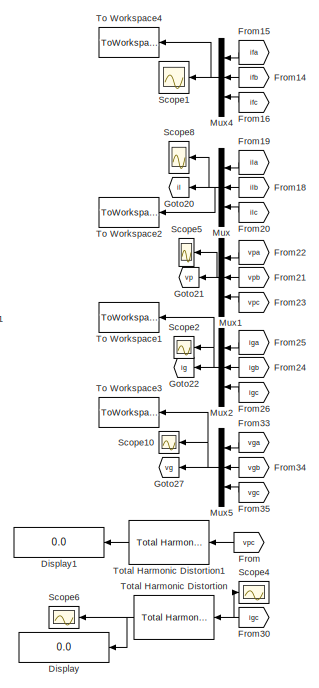
[diagram: root canvas - part 1/2, right side, full height]
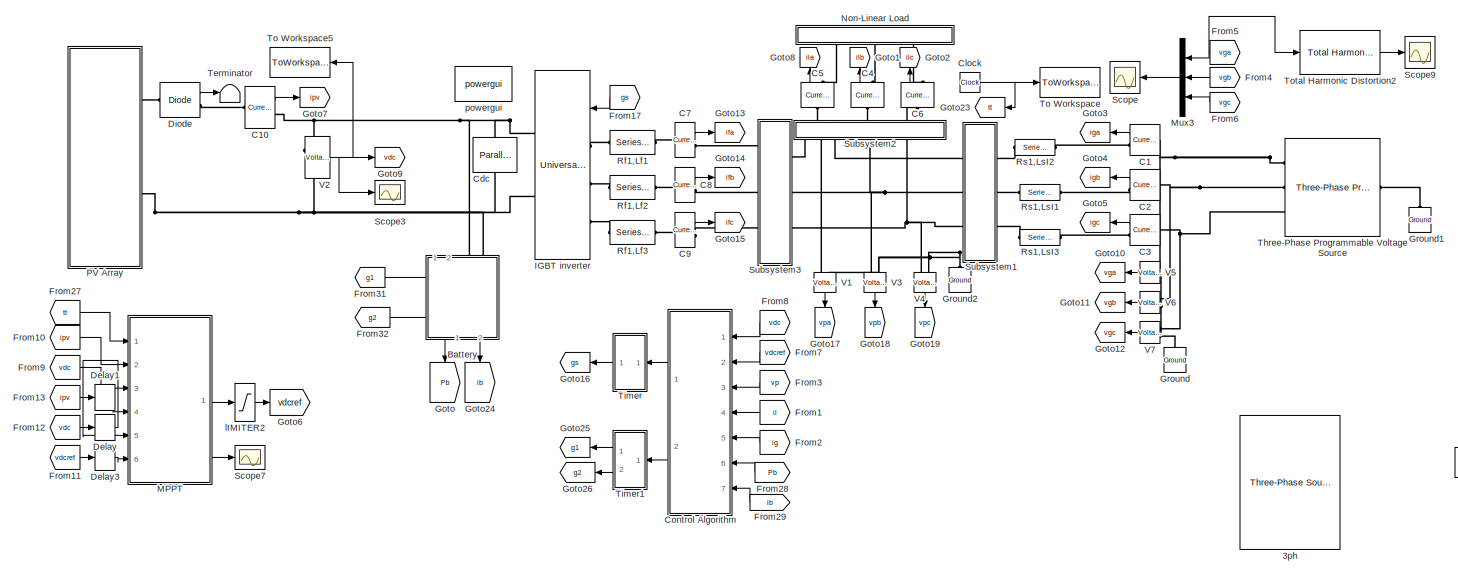
[diagram: root canvas - part 2/2, most of the canvas]
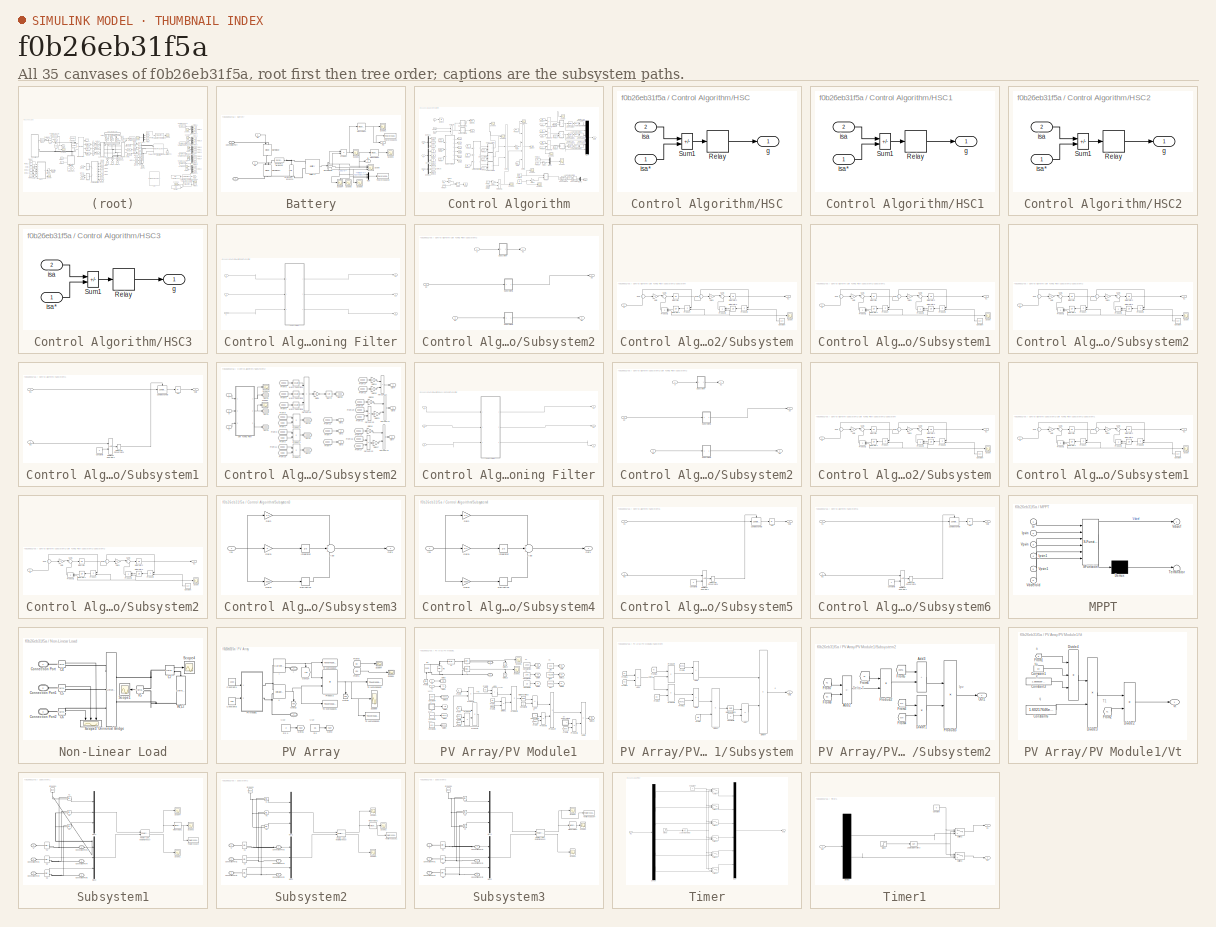
[diagram: thumbnail index - all 35 canvases of the model, root first then tree order]
MODEL slx_f0b26eb31f5a
KIND model
CONFIG AbsTol = auto
CONFIG EnableMultiTasking = off
CONFIG FixedStep = auto
CONFIG MaxStep = auto
CONFIG MinStep = auto
CONFIG RelTol = 1e-3
CONFIG SampleTimeConstraint = Unconstrained
CONFIG SolverName = VariableStepAuto
CONFIG StartTime = 0.0
CONFIG StopTime = 3
BLOCK [Reference] 3ph  REF=spsThreePhaseSourceLib/Three-Phase Source
  Ports = [0, 0, 0, 0, 0, 0, 3]
  SourceBlock = spsThreePhaseSourceLib/Three-Phase Source
  SourceProductBaseCode = PS
  SourceType = Three-Phase Source
BLOCK [SubSystem] Battery
  NameLocation = left
  PortSchema = {"entries":[{"content":{"sides":[{"content":{"connectorIds":["LConn1","LConn2"]},"type":"ConnectorPlacement.EquallySpacedRectSide","uuid":"3f024d4f-4944-46f1-a681-19b9b6f5c2e3"},{"content":{"connectorIds":["Out1","Out2"],"side":"RIGHT"},"type":"ConnectorPlacement.EquallySpacedRectSide","uuid":"ba9189b8-b241-4d0f-92c2-ffae32477602"},{"content":{"connectorIds":["In1","In2"],"side":"TOP"},"type":"Con...<+270ch>
  Ports = [2, 2, 0, 0, 0, 2]
  RequestExecContextInheritance = off
BLOCK [PMIOPort] Battery/-
  Port = 2
  Side = Left
BLOCK [Reference] Battery/Battery1  REF=spsBatteryLib/Battery
  NameLocation = top
  Ports = [0, 1, 0, 0, 0, 2]
  SourceBlock = spsBatteryLib/Battery
  SourceProductBaseCode = PS
  SourceType = Battery
BLOCK [BusSelector] Battery/Bus Selector
  OutputSignals = Voltage (V),Current (A),SOC (%)
  Ports = [1, 3]
BLOCK [PMIOPort] Battery/Connection Port
  Side = Left
BLOCK [Inport] Battery/G1
  Port = 2
BLOCK [Inport] Battery/G2
BLOCK [Reference] Battery/IGBT//Diode  REF=spsIGBTDiodeLib/IGBT//Diode
  NameLocation = right
  Ports = [1, 0, 0, 0, 0, 1, 1]
  SourceBlock = spsIGBTDiodeLib/IGBT//Diode
  SourceProductBaseCode = PS
  SourceType = IGBT/Diode
BLOCK [Reference] Battery/IGBT//Diode1  REF=spsIGBTDiodeLib/IGBT//Diode
  NameLocation = right
  Ports = [1, 0, 0, 0, 0, 1, 1]
  SourceBlock = spsIGBTDiodeLib/IGBT//Diode
  SourceProductBaseCode = PS
  SourceType = IGBT/Diode
BLOCK [Reference] Battery/Mean Value1  REF=powerlib_extras/Measurements/Mean Value
  Ports = [1, 1]
  SourceBlock = powerlib_extras/Measurements/Mean Value
  SourceProductBaseCode = PS
  SourceType = Mean value
BLOCK [Reference] Battery/Mean Value2  REF=powerlib_extras/Measurements/Mean Value
  Ports = [1, 1]
  SourceBlock = powerlib_extras/Measurements/Mean Value
  SourceProductBaseCode = PS
  SourceType = Mean value
BLOCK [Mux] Battery/Mux
  DisplayOption = bar
  Inputs = 3
  Ports = [3, 1]
BLOCK [Outport] Battery/Pb
BLOCK [Product] Battery/Product
  Ports = [2, 1]
BLOCK [Scope] Battery/Scope
  Floating = off
  NumInputPorts = 3
  Ports = [3]
  ScopeSpecificationString = Simulink.scopes.TimeScopeBlockCfg('CurrentConfiguration', extmgr.ConfigurationSet(extmgr.Configuration('Core','General UI',true,'FigureColor',[0 0 0]),extmgr.Configuration('Core','Source UI',true),extmgr.Configuration('Sources','WiredSimulink',true,'DataLoggingVariableName','ScopeData1'),extmgr.Configuration('Visuals','Time Domain',true,'TimeAxisLabels','All','PlotType','Line','SerializedDisplays'...<+2599ch>
BLOCK [Scope] Battery/Scope1
  Floating = off
  NumInputPorts = 1
  Ports = [1]
  ScopeSpecificationString = Simulink.scopes.TimeScopeBlockCfg('CurrentConfiguration', extmgr.ConfigurationSet(extmgr.Configuration('Core','General UI',true),extmgr.Configuration('Core','Source UI',true),extmgr.Configuration('Sources','WiredSimulink',true,'DataLoggingVariableName','ScopeData2'),extmgr.Configuration('Visuals','Time Domain',true,'SerializedDisplays',{struct('MinYLimReal','-4894.23806','MaxYLimReal','44047.11147...<+1517ch>
BLOCK [Scope] Battery/Scope2
  Floating = off
  NumInputPorts = 1
  Ports = [1]
  ScopeSpecificationString = Simulink.scopes.TimeScopeBlockCfg('CurrentConfiguration', extmgr.ConfigurationSet(extmgr.Configuration('Core','General UI',true),extmgr.Configuration('Core','Source UI',true),extmgr.Configuration('Sources','WiredSimulink',true,'DataLoggingVariableName','ScopeData1'),extmgr.Configuration('Visuals','Time Domain',true,'SerializedDisplays',{struct('MinYLimReal','-3510.43197','MaxYLimReal','5610.93306'...<+1517ch>
BLOCK [Scope] Battery/Scope3
  Floating = off
  NumInputPorts = 1
  Ports = [1]
  ScopeSpecificationString = Simulink.scopes.TimeScopeBlockCfg('CurrentConfiguration', extmgr.ConfigurationSet(extmgr.Configuration('Core','General UI',true),extmgr.Configuration('Core','Source UI',true),extmgr.Configuration('Sources','WiredSimulink',true,'DataLoggingVariableName','ScopeData2'),extmgr.Configuration('Visuals','Time Domain',true,'SerializedDisplays',{struct('MinYLimReal','-14.80686','MaxYLimReal','-9.73164','YL...<+1501ch>
BLOCK [Scope] Battery/Scope4
  Floating = off
  NumInputPorts = 1
  Ports = [1]
  ScopeSpecificationString = Simulink.scopes.TimeScopeBlockCfg('CurrentConfiguration', extmgr.ConfigurationSet(extmgr.Configuration('Core','General UI',true),extmgr.Configuration('Core','Source UI',true),extmgr.Configuration('Sources','WiredSimulink',true,'DataLoggingVariableName','ScopeData1'),extmgr.Configuration('Visuals','Time Domain',true,'SerializedDisplays',{struct('MinYLimReal','-36.24193','MaxYLimReal','351.65283','Y...<+1508ch>
BLOCK [Scope] Battery/Scope5
  Floating = off
  NumInputPorts = 1
  Ports = [1]
  ScopeSpecificationString = Simulink.scopes.TimeScopeBlockCfg('CurrentConfiguration', extmgr.ConfigurationSet(extmgr.Configuration('Core','General UI',true),extmgr.Configuration('Core','Source UI',true),extmgr.Configuration('Sources','WiredSimulink',true,'DataLoggingVariableName','ScopeData2'),extmgr.Configuration('Visuals','Time Domain',true,'PlotType','Line','SerializedDisplays',{struct('MinYLimReal','-62.74735','MaxYLimRe...<+1512ch>
BLOCK [Scope] Battery/Scope6
  Floating = off
  NumInputPorts = 1
  Ports = [1]
  ScopeSpecificationString = Simulink.scopes.TimeScopeBlockCfg('CurrentConfiguration', extmgr.ConfigurationSet(extmgr.Configuration('Core','General UI',true),extmgr.Configuration('Core','Source UI',true),extmgr.Configuration('Sources','WiredSimulink',true,'DataLoggingVariableName','ScopeData3'),extmgr.Configuration('Visuals','Time Domain',true,'SerializedDisplays',{struct('MinYLimReal','8.99633','MaxYLimReal','9.02453','YLabe...<+1500ch>
BLOCK [Reference] Battery/Series RLC Branch2  REF=spsSeriesRLCBranchLib/Series RLC Branch
  Ports = [0, 0, 0, 0, 0, 1, 1]
  SourceBlock = spsSeriesRLCBranchLib/Series RLC Branch
  SourceProductBaseCode = PS
  SourceType = Series RLC Branch
BLOCK [Reference] Battery/Series RLC Branch3  REF=spsSeriesRLCBranchLib/Series RLC Branch
  NameLocation = left
  Ports = [0, 0, 0, 0, 0, 1, 1]
  SourceBlock = spsSeriesRLCBranchLib/Series RLC Branch
  SourceProductBaseCode = PS
  SourceType = Series RLC Branch
BLOCK [ToWorkspace] Battery/To Workspace1
  MaxDataPoints = 614863
  Ports = [1]
  SampleTime = -1
  VariableName = Batp
BLOCK [ToWorkspace] Battery/To Workspace2
  MaxDataPoints = 614863
  Ports = [1]
  SampleTime = -1
  VariableName = Bat
BLOCK [Outport] Battery/ib
  Port = 2
BLOCK [Reference] C1  REF=spsCurrentMeasurementLib/Current Measurement
  Ports = [0, 1, 0, 0, 0, 1, 1]
  SourceBlock = spsCurrentMeasurementLib/Current Measurement
  SourceProductBaseCode = PS
  SourceType = Current Measurement
BLOCK [Reference] C10  REF=spsCurrentMeasurementLib/Current Measurement
  Ports = [0, 1, 0, 0, 0, 1, 1]
  SourceBlock = spsCurrentMeasurementLib/Current Measurement
  SourceProductBaseCode = PS
  SourceType = Current Measurement
BLOCK [Reference] C2  REF=spsCurrentMeasurementLib/Current Measurement
  Ports = [0, 1, 0, 0, 0, 1, 1]
  SourceBlock = spsCurrentMeasurementLib/Current Measurement
  SourceProductBaseCode = PS
  SourceType = Current Measurement
BLOCK [Reference] C3  REF=spsCurrentMeasurementLib/Current Measurement
  Ports = [0, 1, 0, 0, 0, 1, 1]
  SourceBlock = spsCurrentMeasurementLib/Current Measurement
  SourceProductBaseCode = PS
  SourceType = Current Measurement
BLOCK [Reference] C4  REF=spsCurrentMeasurementLib/Current Measurement
  NameLocation = left
  Ports = [0, 1, 0, 0, 0, 1, 1]
  SourceBlock = spsCurrentMeasurementLib/Current Measurement
  SourceProductBaseCode = PS
  SourceType = Current Measurement
BLOCK [Reference] C5  REF=spsCurrentMeasurementLib/Current Measurement
  NameLocation = left
  Ports = [0, 1, 0, 0, 0, 1, 1]
  SourceBlock = spsCurrentMeasurementLib/Current Measurement
  SourceProductBaseCode = PS
  SourceType = Current Measurement
BLOCK [Reference] C6  REF=spsCurrentMeasurementLib/Current Measurement
  NameLocation = left
  Ports = [0, 1, 0, 0, 0, 1, 1]
  SourceBlock = spsCurrentMeasurementLib/Current Measurement
  SourceProductBaseCode = PS
  SourceType = Current Measurement
BLOCK [Reference] C7  REF=spsCurrentMeasurementLib/Current Measurement
  Ports = [0, 1, 0, 0, 0, 1, 1]
  SourceBlock = spsCurrentMeasurementLib/Current Measurement
  SourceProductBaseCode = PS
  SourceType = Current Measurement
BLOCK [Reference] C8  REF=spsCurrentMeasurementLib/Current Measurement
  Ports = [0, 1, 0, 0, 0, 1, 1]
  SourceBlock = spsCurrentMeasurementLib/Current Measurement
  SourceProductBaseCode = PS
  SourceType = Current Measurement
BLOCK [Reference] C9  REF=spsCurrentMeasurementLib/Current Measurement
  Ports = [0, 1, 0, 0, 0, 1, 1]
  SourceBlock = spsCurrentMeasurementLib/Current Measurement
  SourceProductBaseCode = PS
  SourceType = Current Measurement
BLOCK [Reference] Cdc  REF=spsParallelRLCBranchLib/Parallel RLC Branch
  AttributesFormatString = \n
  NameLocation = left
  Ports = [0, 0, 0, 0, 0, 1, 1]
  SourceBlock = spsParallelRLCBranchLib/Parallel RLC Branch
  SourceProductBaseCode = PS
  SourceType = Parallel RLC Branch
BLOCK [Clock] Clock
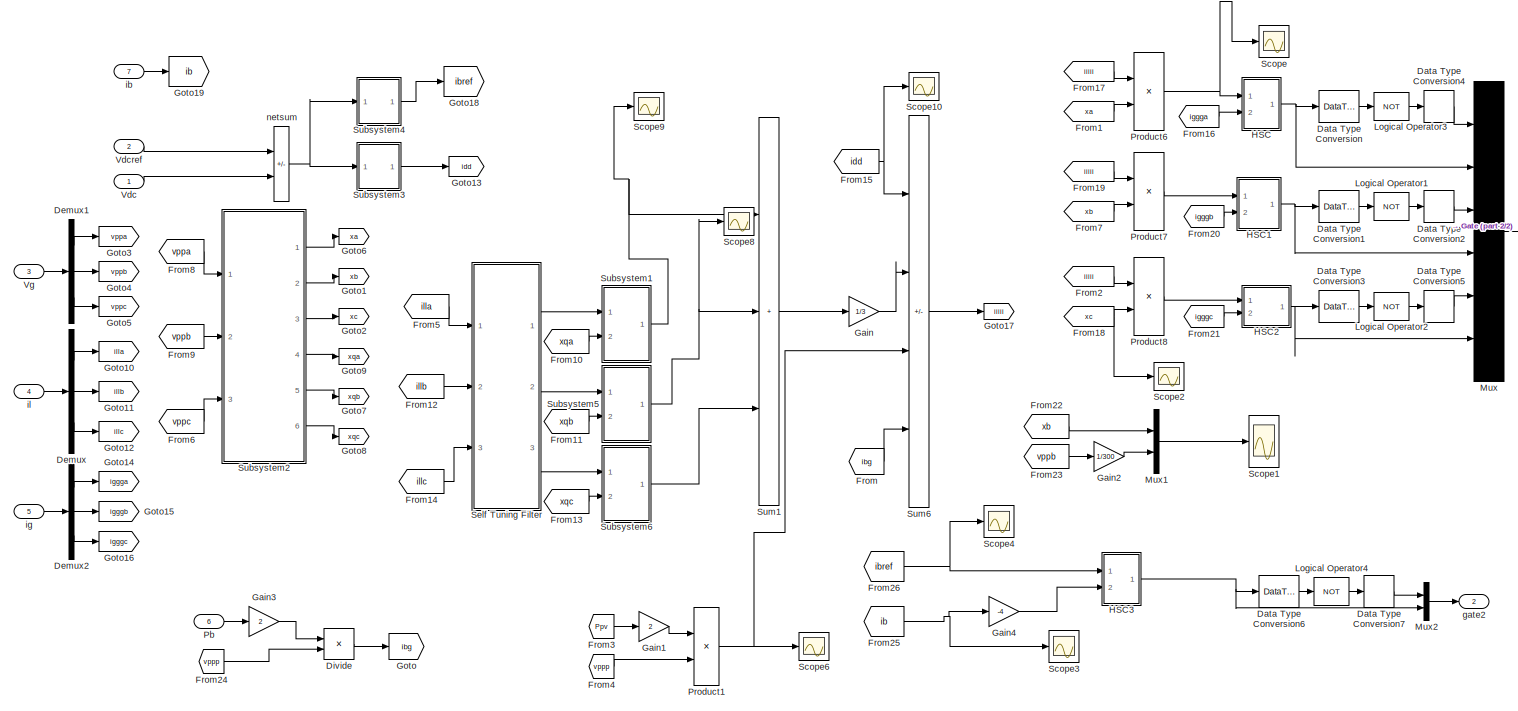
[diagram: Control Algorithm - part 1/2, most of the canvas]
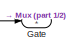
[diagram: Control Algorithm - part 2/2, middle right region]
BLOCK [SubSystem] Control Algorithm
  Ports = [7, 2]
  RequestExecContextInheritance = off
BLOCK [DataTypeConversion] Control Algorithm/Data Type Conversion
  OutDataTypeStr = boolean
BLOCK [DataTypeConversion] Control Algorithm/Data Type Conversion1
  OutDataTypeStr = boolean
BLOCK [DataTypeConversion] Control Algorithm/Data Type Conversion2
  OutDataTypeStr = double
BLOCK [DataTypeConversion] Control Algorithm/Data Type Conversion3
  OutDataTypeStr = boolean
BLOCK [DataTypeConversion] Control Algorithm/Data Type Conversion4
  OutDataTypeStr = double
BLOCK [DataTypeConversion] Control Algorithm/Data Type Conversion5
  OutDataTypeStr = double
BLOCK [DataTypeConversion] Control Algorithm/Data Type Conversion6
  OutDataTypeStr = boolean
BLOCK [DataTypeConversion] Control Algorithm/Data Type Conversion7
  OutDataTypeStr = double
BLOCK [Demux] Control Algorithm/Demux
  Outputs = 3
  Ports = [1, 3]
BLOCK [Demux] Control Algorithm/Demux1
  Outputs = 3
  Ports = [1, 3]
BLOCK [Demux] Control Algorithm/Demux2
  Outputs = 3
  Ports = [1, 3]
BLOCK [Product] Control Algorithm/Divide
  Inputs = */
  Ports = [2, 1]
BLOCK [From] Control Algorithm/From
  GotoTag = ibg
BLOCK [From] Control Algorithm/From1
  GotoTag = xa
  IconDisplay = Signal name
  TagVisibility = global
BLOCK [From] Control Algorithm/From10
  GotoTag = xqa
  IconDisplay = Signal name
  TagVisibility = global
BLOCK [From] Control Algorithm/From11
  GotoTag = xqb
  IconDisplay = Signal name
  TagVisibility = global
BLOCK [From] Control Algorithm/From12
  GotoTag = illb
  IconDisplay = Signal name
  TagVisibility = global
BLOCK [From] Control Algorithm/From13
  GotoTag = xqc
  IconDisplay = Signal name
  TagVisibility = global
BLOCK [From] Control Algorithm/From14
  GotoTag = illc
  IconDisplay = Signal name
  TagVisibility = global
BLOCK [From] Control Algorithm/From15
  GotoTag = idd
  IconDisplay = Signal name
  TagVisibility = global
BLOCK [From] Control Algorithm/From16
  GotoTag = iggga
  IconDisplay = Signal name
  TagVisibility = global
BLOCK [From] Control Algorithm/From17
  GotoTag = iiiii
  IconDisplay = Signal name
  TagVisibility = global
BLOCK [From] Control Algorithm/From18
  GotoTag = xc
  IconDisplay = Signal name
  TagVisibility = global
BLOCK [From] Control Algorithm/From19
  GotoTag = iiiii
  IconDisplay = Signal name
  TagVisibility = global
BLOCK [From] Control Algorithm/From2
  GotoTag = iiiii
  IconDisplay = Signal name
  TagVisibility = global
BLOCK [From] Control Algorithm/From20
  GotoTag = igggb
  IconDisplay = Signal name
  TagVisibility = global
BLOCK [From] Control Algorithm/From21
  GotoTag = igggc
  IconDisplay = Signal name
  TagVisibility = global
BLOCK [From] Control Algorithm/From22
  GotoTag = xb
  IconDisplay = Signal name
  TagVisibility = global
BLOCK [From] Control Algorithm/From23
  GotoTag = vppb
  IconDisplay = Signal name
  TagVisibility = global
BLOCK [From] Control Algorithm/From24
  GotoTag = vppp
  IconDisplay = Signal name
  TagVisibility = global
BLOCK [From] Control Algorithm/From25
  GotoTag = ib
BLOCK [From] Control Algorithm/From26
  GotoTag = ibref
BLOCK [From] Control Algorithm/From3
  GotoTag = Ppv
  IconDisplay = Signal name
  TagVisibility = global
BLOCK [From] Control Algorithm/From4
  GotoTag = vppp
  IconDisplay = Signal name
  TagVisibility = global
BLOCK [From] Control Algorithm/From5
  GotoTag = illa
  IconDisplay = Signal name
  TagVisibility = global
BLOCK [From] Control Algorithm/From6
  GotoTag = vppc
  IconDisplay = Signal name
  TagVisibility = global
BLOCK [From] Control Algorithm/From7
  GotoTag = xb
  IconDisplay = Signal name
  TagVisibility = global
BLOCK [From] Control Algorithm/From8
  GotoTag = vppa
  IconDisplay = Signal name
  TagVisibility = global
BLOCK [From] Control Algorithm/From9
  GotoTag = vppb
  IconDisplay = Signal name
  TagVisibility = global
BLOCK [Gain] Control Algorithm/Gain
  Gain = 1/3
BLOCK [Gain] Control Algorithm/Gain1
  Gain = 2
BLOCK [Gain] Control Algorithm/Gain2
  Gain = 1/300
BLOCK [Gain] Control Algorithm/Gain3
  Gain = 2
BLOCK [Gain] Control Algorithm/Gain4
  Gain = -4
BLOCK [Outport] Control Algorithm/Gate
BLOCK [Goto] Control Algorithm/Goto
  GotoTag = ibg
BLOCK [Goto] Control Algorithm/Goto1
  GotoTag = xb
  IconDisplay = Signal name
  TagVisibility = global
BLOCK [Goto] Control Algorithm/Goto10
  GotoTag = illa
  IconDisplay = Signal name
  TagVisibility = global
BLOCK [Goto] Control Algorithm/Goto11
  GotoTag = illb
  IconDisplay = Signal name
  TagVisibility = global
BLOCK [Goto] Control Algorithm/Goto12
  GotoTag = illc
  IconDisplay = Signal name
  TagVisibility = global
BLOCK [Goto] Control Algorithm/Goto13
  GotoTag = idd
  IconDisplay = Signal name
  TagVisibility = global
BLOCK [Goto] Control Algorithm/Goto14
  GotoTag = iggga
  IconDisplay = Signal name
  TagVisibility = global
BLOCK [Goto] Control Algorithm/Goto15
  GotoTag = igggb
  IconDisplay = Signal name
  TagVisibility = global
BLOCK [Goto] Control Algorithm/Goto16
  GotoTag = igggc
  IconDisplay = Signal name
  TagVisibility = global
BLOCK [Goto] Control Algorithm/Goto17
  GotoTag = iiiii
  IconDisplay = Signal name
  TagVisibility = global
BLOCK [Goto] Control Algorithm/Goto18
  GotoTag = ibref
BLOCK [Goto] Control Algorithm/Goto19
  GotoTag = ib
BLOCK [Goto] Control Algorithm/Goto2
  GotoTag = xc
  IconDisplay = Signal name
  TagVisibility = global
BLOCK [Goto] Control Algorithm/Goto3
  GotoTag = vppa
  IconDisplay = Signal name
  TagVisibility = global
BLOCK [Goto] Control Algorithm/Goto4
  GotoTag = vppb
  IconDisplay = Signal name
  TagVisibility = global
BLOCK [Goto] Control Algorithm/Goto5
  GotoTag = vppc
  IconDisplay = Signal name
  TagVisibility = global
BLOCK [Goto] Control Algorithm/Goto6
  GotoTag = xa
  IconDisplay = Signal name
  TagVisibility = global
BLOCK [Goto] Control Algorithm/Goto7
  GotoTag = xqb
  IconDisplay = Signal name
  TagVisibility = global
BLOCK [Goto] Control Algorithm/Goto8
  GotoTag = xqc
  IconDisplay = Signal name
  TagVisibility = global
BLOCK [Goto] Control Algorithm/Goto9
  GotoTag = xqa
  IconDisplay = Signal name
  TagVisibility = global
BLOCK [SubSystem] Control Algorithm/HSC
  Ports = [2, 1]
  RequestExecContextInheritance = off
BLOCK [Relay] Control Algorithm/HSC/Relay
  OffSwitchValue = -h/2
  OnSwitchValue = h/2
BLOCK [Sum] Control Algorithm/HSC/Sum1
  IconShape = rectangular
  InputSameDT = on
  Inputs = -+
  OutDataTypeStr = Inherit: Same as first input
  Ports = [2, 1]
  SaturateOnIntegerOverflow = on
BLOCK [Outport] Control Algorithm/HSC/g
  InitialOutput = 0
BLOCK [Inport] Control Algorithm/HSC/isa
  Port = 2
BLOCK [Inport] Control Algorithm/HSC/isa*
BLOCK [SubSystem] Control Algorithm/HSC1
  Ports = [2, 1]
  RequestExecContextInheritance = off
BLOCK [Relay] Control Algorithm/HSC1/Relay
  OffSwitchValue = -h/2
  OnSwitchValue = h/2
BLOCK [Sum] Control Algorithm/HSC1/Sum1
  IconShape = rectangular
  InputSameDT = on
  Inputs = -+
  OutDataTypeStr = Inherit: Same as first input
  Ports = [2, 1]
  SaturateOnIntegerOverflow = on
BLOCK [Outport] Control Algorithm/HSC1/g
  InitialOutput = 0
BLOCK [Inport] Control Algorithm/HSC1/isa
  Port = 2
BLOCK [Inport] Control Algorithm/HSC1/isa*
BLOCK [SubSystem] Control Algorithm/HSC2
  Ports = [2, 1]
  RequestExecContextInheritance = off
BLOCK [Relay] Control Algorithm/HSC2/Relay
  OffSwitchValue = -h/2
  OnSwitchValue = h/2
BLOCK [Sum] Control Algorithm/HSC2/Sum1
  IconShape = rectangular
  InputSameDT = on
  Inputs = -+
  OutDataTypeStr = Inherit: Same as first input
  Ports = [2, 1]
  SaturateOnIntegerOverflow = on
BLOCK [Outport] Control Algorithm/HSC2/g
  InitialOutput = 0
BLOCK [Inport] Control Algorithm/HSC2/isa
  Port = 2
BLOCK [Inport] Control Algorithm/HSC2/isa*
BLOCK [SubSystem] Control Algorithm/HSC3
  Ports = [2, 1]
  RequestExecContextInheritance = off
BLOCK [Relay] Control Algorithm/HSC3/Relay
  OffSwitchValue = -h/2
  OnSwitchValue = h/2
BLOCK [Sum] Control Algorithm/HSC3/Sum1
  IconShape = rectangular
  InputSameDT = on
  Inputs = -+
  OutDataTypeStr = Inherit: Same as first input
  Ports = [2, 1]
  SaturateOnIntegerOverflow = on
BLOCK [Outport] Control Algorithm/HSC3/g
  InitialOutput = 0
BLOCK [Inport] Control Algorithm/HSC3/isa
  Port = 2
BLOCK [Inport] Control Algorithm/HSC3/isa*
BLOCK [Logic] Control Algorithm/Logical Operator1
  AllPortsSameDT = off
  Operator = NOT
  OutDataTypeStr = boolean
  Ports = [1, 1]
BLOCK [Logic] Control Algorithm/Logical Operator2
  AllPortsSameDT = off
  Operator = NOT
  OutDataTypeStr = boolean
  Ports = [1, 1]
BLOCK [Logic] Control Algorithm/Logical Operator3
  AllPortsSameDT = off
  Operator = NOT
  OutDataTypeStr = boolean
  Ports = [1, 1]
BLOCK [Logic] Control Algorithm/Logical Operator4
  AllPortsSameDT = off
  Operator = NOT
  OutDataTypeStr = boolean
  Ports = [1, 1]
BLOCK [Mux] Control Algorithm/Mux
  Inputs = 6
  Ports = [6, 1]
BLOCK [Mux] Control Algorithm/Mux1
  DisplayOption = bar
  Inputs = 2
  Ports = [2, 1]
BLOCK [Mux] Control Algorithm/Mux2
  DisplayOption = bar
  Inputs = 2
  Ports = [2, 1]
BLOCK [Inport] Control Algorithm/Pb
  Port = 6
BLOCK [Product] Control Algorithm/Product1
  Inputs = */
  Ports = [2, 1]
  RndMeth = Zero
BLOCK [Product] Control Algorithm/Product6
  Ports = [2, 1]
  RndMeth = Zero
BLOCK [Product] Control Algorithm/Product7
  Ports = [2, 1]
  RndMeth = Zero
BLOCK [Product] Control Algorithm/Product8
  Ports = [2, 1]
  RndMeth = Zero
BLOCK [Scope] Control Algorithm/Scope
  Floating = off
  NumInputPorts = 1
  Ports = [1]
  ScopeSpecificationString = Simulink.scopes.TimeScopeBlockCfg('CurrentConfiguration', extmgr.ConfigurationSet(extmgr.Configuration('Core','General UI',true),extmgr.Configuration('Core','Source UI',true),extmgr.Configuration('Sources','WiredSimulink',true,'DataLoggingVariableName','ScopeData1'),extmgr.Configuration('Visuals','Time Domain',true,'SerializedDisplays',{struct('MinYLimReal','-2887.11492','MaxYLimReal','2895.62146'...<+1487ch>
BLOCK [Scope] Control Algorithm/Scope1
  Floating = off
  NumInputPorts = 1
  Ports = [1]
  ScopeSpecificationString = Simulink.scopes.TimeScopeBlockCfg('CurrentConfiguration', extmgr.ConfigurationSet(extmgr.Configuration('Core','General UI',true),extmgr.Configuration('Core','Source UI',true),extmgr.Configuration('Sources','WiredSimulink',true,'DataLogging',true,'DataLoggingVariableName','sourcect','DataLoggingSaveFormat','StructureWithTime','DataLoggingDecimation','1','DataLoggingDecimateData',true),extmgr.Config...<+1796ch>
BLOCK [Scope] Control Algorithm/Scope10
  Floating = off
  NumInputPorts = 1
  Ports = [1]
  ScopeSpecificationString = Simulink.scopes.TimeScopeBlockCfg('CurrentConfiguration', extmgr.ConfigurationSet(extmgr.Configuration('Core','General UI',true),extmgr.Configuration('Core','Source UI',true),extmgr.Configuration('Sources','WiredSimulink',true,'DataLogging',true,'DataLoggingVariableName','ScopeData12','DataLoggingSaveFormat','StructureWithTime','DataLoggingDecimation','1','DataLoggingDecimateData',true),extmgr.Con...<+1818ch>
BLOCK [Scope] Control Algorithm/Scope2
  Floating = off
  NumInputPorts = 1
  Ports = [1]
  ScopeSpecificationString = Simulink.scopes.TimeScopeBlockCfg('CurrentConfiguration', extmgr.ConfigurationSet(extmgr.Configuration('Core','General UI',true),extmgr.Configuration('Core','Source UI',true),extmgr.Configuration('Sources','WiredSimulink',true,'DataLogging',true,'DataLoggingVariableName','sourcect1','DataLoggingSaveFormat','StructureWithTime','DataLoggingDecimation','1','DataLoggingDecimateData',true),extmgr.Confi...<+1771ch>
BLOCK [Scope] Control Algorithm/Scope3
  Floating = off
  NumInputPorts = 1
  Ports = [1]
  ScopeSpecificationString = Simulink.scopes.TimeScopeBlockCfg('CurrentConfiguration', extmgr.ConfigurationSet(extmgr.Configuration('Core','General UI',true),extmgr.Configuration('Core','Source UI',true),extmgr.Configuration('Sources','WiredSimulink',true,'DataLoggingVariableName','ScopeData1'),extmgr.Configuration('Visuals','Time Domain',true,'SerializedDisplays',{struct('MinYLimReal','-75.26906','MaxYLimReal','22.26172','YL...<+1422ch>
BLOCK [Scope] Control Algorithm/Scope4
  Floating = off
  NumInputPorts = 1
  Ports = [1]
  ScopeSpecificationString = Simulink.scopes.TimeScopeBlockCfg('CurrentConfiguration', extmgr.ConfigurationSet(extmgr.Configuration('Core','General UI',true),extmgr.Configuration('Core','Source UI',true),extmgr.Configuration('Sources','WiredSimulink',true,'DataLoggingVariableName','ScopeData3'),extmgr.Configuration('Visuals','Time Domain',true,'SerializedDisplays',{struct('MinYLimReal','-27.10236','MaxYLimReal','58.02521','YL...<+1500ch>
BLOCK [Scope] Control Algorithm/Scope6
  Floating = off
  NumInputPorts = 1
  Ports = [1]
  ScopeSpecificationString = Simulink.scopes.TimeScopeBlockCfg('CurrentConfiguration', extmgr.ConfigurationSet(extmgr.Configuration('Core','General UI',true),extmgr.Configuration('Core','Source UI',true),extmgr.Configuration('Sources','WiredSimulink',true,'DataLogging',true,'DataLoggingVariableName','ScopeData8','DataLoggingSaveFormat','StructureWithTime','DataLoggingDecimation','1','DataLoggingDecimateData',true),extmgr.Conf...<+1817ch>
BLOCK [Scope] Control Algorithm/Scope8
  Floating = off
  NumInputPorts = 1
  Ports = [1]
  ScopeSpecificationString = Simulink.scopes.TimeScopeBlockCfg('CurrentConfiguration', extmgr.ConfigurationSet(extmgr.Configuration('Core','General UI',true),extmgr.Configuration('Core','Source UI',true),extmgr.Configuration('Sources','WiredSimulink',true,'DataLogging',true,'DataLoggingVariableName','ScopeData10','DataLoggingSaveFormat','StructureWithTime','DataLoggingDecimation','1','DataLoggingDecimateData',true),extmgr.Con...<+1789ch>
BLOCK [Scope] Control Algorithm/Scope9
  Floating = off
  NumInputPorts = 1
  Ports = [1]
  ScopeSpecificationString = Simulink.scopes.TimeScopeBlockCfg('CurrentConfiguration', extmgr.ConfigurationSet(extmgr.Configuration('Core','General UI',true),extmgr.Configuration('Core','Source UI',true),extmgr.Configuration('Sources','WiredSimulink',true,'DataLogging',true,'DataLoggingVariableName','ScopeData11','DataLoggingSaveFormat','StructureWithTime','DataLoggingDecimation','1','DataLoggingDecimateData',true),extmgr.Con...<+1789ch>
BLOCK [SubSystem] Control Algorithm/Self Tuning Filter
  Ports = [3, 3]
  RequestExecContextInheritance = off
BLOCK [SubSystem] Control Algorithm/Self Tuning Filter/Subsystem2
  Ports = [3, 3]
  RequestExecContextInheritance = off
BLOCK [SubSystem] Control Algorithm/Self Tuning Filter/Subsystem2/Subsystem
  Ports = [1, 1]
  RequestExecContextInheritance = off
BLOCK [Constant] Control Algorithm/Self Tuning Filter/Subsystem2/Subsystem/Constant
  NameLocation = top
  Value = 314
BLOCK [Gain] Control Algorithm/Self Tuning Filter/Subsystem2/Subsystem/Gain
  Gain = 10
BLOCK [Gain] Control Algorithm/Self Tuning Filter/Subsystem2/Subsystem/Gain1
  Gain = 10
BLOCK [Integrator] Control Algorithm/Self Tuning Filter/Subsystem2/Subsystem/Integrator
  Ports = [1, 1]
BLOCK [Integrator] Control Algorithm/Self Tuning Filter/Subsystem2/Subsystem/Integrator1
  NameLocation = top
  Ports = [1, 1]
BLOCK [Integrator] Control Algorithm/Self Tuning Filter/Subsystem2/Subsystem/Integrator2
  Ports = [1, 1]
BLOCK [Integrator] Control Algorithm/Self Tuning Filter/Subsystem2/Subsystem/Integrator3
  NameLocation = top
  Ports = [1, 1]
BLOCK [Product] Control Algorithm/Self Tuning Filter/Subsystem2/Subsystem/Product
  NameLocation = top
  Ports = [2, 1]
BLOCK [Product] Control Algorithm/Self Tuning Filter/Subsystem2/Subsystem/Product1
  NameLocation = top
  Ports = [2, 1]
BLOCK [Product] Control Algorithm/Self Tuning Filter/Subsystem2/Subsystem/Product2
  NameLocation = top
  Ports = [2, 1]
BLOCK [Product] Control Algorithm/Self Tuning Filter/Subsystem2/Subsystem/Product3
  NameLocation = top
  Ports = [2, 1]
BLOCK [Scope] Control Algorithm/Self Tuning Filter/Subsystem2/Subsystem/Scope
  Floating = off
  NumInputPorts = 1
  Ports = [1]
  ScopeSpecificationString = Simulink.scopes.TimeScopeBlockCfg('CurrentConfiguration', extmgr.ConfigurationSet(extmgr.Configuration('Core','General UI',true),extmgr.Configuration('Core','Source UI',true),extmgr.Configuration('Sources','WiredSimulink',true,'DataLoggingVariableName','ScopeData1'),extmgr.Configuration('Visuals','Time Domain',true,'SerializedDisplays',{struct('MinYLimReal','237.87302','MaxYLimReal','322.63552','Y...<+1454ch>  <repeated x6 — deduplicated; at blocks: Scope>
BLOCK [Sum] Control Algorithm/Self Tuning Filter/Subsystem2/Subsystem/Sum
  Inputs = -+
  Ports = [2, 1]
BLOCK [Sum] Control Algorithm/Self Tuning Filter/Subsystem2/Subsystem/Sum1
  Inputs = |+-
  Ports = [2, 1]
BLOCK [Sum] Control Algorithm/Self Tuning Filter/Subsystem2/Subsystem/Sum2
  Inputs = -+
  Ports = [2, 1]
BLOCK [Sum] Control Algorithm/Self Tuning Filter/Subsystem2/Subsystem/Sum3
  Inputs = |+-
  Ports = [2, 1]
BLOCK [Inport] Control Algorithm/Self Tuning Filter/Subsystem2/Subsystem/a
BLOCK [Outport] Control Algorithm/Self Tuning Filter/Subsystem2/Subsystem/a1
BLOCK [SubSystem] Control Algorithm/Self Tuning Filter/Subsystem2/Subsystem1
  Ports = [1, 1]
  RequestExecContextInheritance = off
BLOCK [Constant] Control Algorithm/Self Tuning Filter/Subsystem2/Subsystem1/Constant
  NameLocation = top
  Value = 314
BLOCK [Gain] Control Algorithm/Self Tuning Filter/Subsystem2/Subsystem1/Gain
  Gain = 10
BLOCK [Gain] Control Algorithm/Self Tuning Filter/Subsystem2/Subsystem1/Gain1
  Gain = 10
BLOCK [Integrator] Control Algorithm/Self Tuning Filter/Subsystem2/Subsystem1/Integrator
  Ports = [1, 1]
BLOCK [Integrator] Control Algorithm/Self Tuning Filter/Subsystem2/Subsystem1/Integrator1
  NameLocation = top
  Ports = [1, 1]
BLOCK [Integrator] Control Algorithm/Self Tuning Filter/Subsystem2/Subsystem1/Integrator2
  Ports = [1, 1]
BLOCK [Integrator] Control Algorithm/Self Tuning Filter/Subsystem2/Subsystem1/Integrator3
  NameLocation = top
  Ports = [1, 1]
BLOCK [Product] Control Algorithm/Self Tuning Filter/Subsystem2/Subsystem1/Product
  NameLocation = top
  Ports = [2, 1]
BLOCK [Product] Control Algorithm/Self Tuning Filter/Subsystem2/Subsystem1/Product1
  NameLocation = top
  Ports = [2, 1]
BLOCK [Product] Control Algorithm/Self Tuning Filter/Subsystem2/Subsystem1/Product2
  NameLocation = top
  Ports = [2, 1]
BLOCK [Product] Control Algorithm/Self Tuning Filter/Subsystem2/Subsystem1/Product3
  NameLocation = top
  Ports = [2, 1]
BLOCK [Scope] Control Algorithm/Self Tuning Filter/Subsystem2/Subsystem1/Scope
  Floating = off
  NumInputPorts = 1
  Ports = [1]
BLOCK [Sum] Control Algorithm/Self Tuning Filter/Subsystem2/Subsystem1/Sum
  Inputs = -+
  Ports = [2, 1]
BLOCK [Sum] Control Algorithm/Self Tuning Filter/Subsystem2/Subsystem1/Sum1
  Inputs = |+-
  Ports = [2, 1]
BLOCK [Sum] Control Algorithm/Self Tuning Filter/Subsystem2/Subsystem1/Sum2
  Inputs = -+
  Ports = [2, 1]
BLOCK [Sum] Control Algorithm/Self Tuning Filter/Subsystem2/Subsystem1/Sum3
  Inputs = |+-
  Ports = [2, 1]
BLOCK [Inport] Control Algorithm/Self Tuning Filter/Subsystem2/Subsystem1/a
BLOCK [Outport] Control Algorithm/Self Tuning Filter/Subsystem2/Subsystem1/a1
BLOCK [SubSystem] Control Algorithm/Self Tuning Filter/Subsystem2/Subsystem2
  Ports = [1, 1]
  RequestExecContextInheritance = off
BLOCK [Constant] Control Algorithm/Self Tuning Filter/Subsystem2/Subsystem2/Constant
  NameLocation = top
  Value = 314
BLOCK [Gain] Control Algorithm/Self Tuning Filter/Subsystem2/Subsystem2/Gain
  Gain = 10
BLOCK [Gain] Control Algorithm/Self Tuning Filter/Subsystem2/Subsystem2/Gain1
  Gain = 10
BLOCK [Integrator] Control Algorithm/Self Tuning Filter/Subsystem2/Subsystem2/Integrator
  Ports = [1, 1]
BLOCK [Integrator] Control Algorithm/Self Tuning Filter/Subsystem2/Subsystem2/Integrator1
  NameLocation = top
  Ports = [1, 1]
BLOCK [Integrator] Control Algorithm/Self Tuning Filter/Subsystem2/Subsystem2/Integrator2
  Ports = [1, 1]
BLOCK [Integrator] Control Algorithm/Self Tuning Filter/Subsystem2/Subsystem2/Integrator3
  NameLocation = top
  Ports = [1, 1]
BLOCK [Product] Control Algorithm/Self Tuning Filter/Subsystem2/Subsystem2/Product
  NameLocation = top
  Ports = [2, 1]
BLOCK [Product] Control Algorithm/Self Tuning Filter/Subsystem2/Subsystem2/Product1
  NameLocation = top
  Ports = [2, 1]
BLOCK [Product] Control Algorithm/Self Tuning Filter/Subsystem2/Subsystem2/Product2
  NameLocation = top
  Ports = [2, 1]
BLOCK [Product] Control Algorithm/Self Tuning Filter/Subsystem2/Subsystem2/Product3
  NameLocation = top
  Ports = [2, 1]
BLOCK [Scope] Control Algorithm/Self Tuning Filter/Subsystem2/Subsystem2/Scope
  Floating = off
  NumInputPorts = 1
  Ports = [1]
BLOCK [Sum] Control Algorithm/Self Tuning Filter/Subsystem2/Subsystem2/Sum
  Inputs = -+
  Ports = [2, 1]
BLOCK [Sum] Control Algorithm/Self Tuning Filter/Subsystem2/Subsystem2/Sum1
  Inputs = |+-
  Ports = [2, 1]
BLOCK [Sum] Control Algorithm/Self Tuning Filter/Subsystem2/Subsystem2/Sum2
  Inputs = -+
  Ports = [2, 1]
BLOCK [Sum] Control Algorithm/Self Tuning Filter/Subsystem2/Subsystem2/Sum3
  Inputs = |+-
  Ports = [2, 1]
BLOCK [Inport] Control Algorithm/Self Tuning Filter/Subsystem2/Subsystem2/a
BLOCK [Outport] Control Algorithm/Self Tuning Filter/Subsystem2/Subsystem2/a1
BLOCK [Inport] Control Algorithm/Self Tuning Filter/Subsystem2/a
BLOCK [Outport] Control Algorithm/Self Tuning Filter/Subsystem2/a1
BLOCK [Inport] Control Algorithm/Self Tuning Filter/Subsystem2/a2
  Port = 2
BLOCK [Outport] Control Algorithm/Self Tuning Filter/Subsystem2/a3
  Port = 2
BLOCK [Inport] Control Algorithm/Self Tuning Filter/Subsystem2/a4
  Port = 3
BLOCK [Outport] Control Algorithm/Self Tuning Filter/Subsystem2/a5
  Port = 3
BLOCK [Inport] Control Algorithm/Self Tuning Filter/a
BLOCK [Outport] Control Algorithm/Self Tuning Filter/a1
BLOCK [Inport] Control Algorithm/Self Tuning Filter/b
  Port = 2
BLOCK [Outport] Control Algorithm/Self Tuning Filter/b1
  Port = 2
BLOCK [Inport] Control Algorithm/Self Tuning Filter/c
  Port = 3
BLOCK [Outport] Control Algorithm/Self Tuning Filter/c1
  Port = 3
BLOCK [SubSystem] Control Algorithm/Subsystem1
  Ports = [2, 1]
  RequestExecContextInheritance = off
BLOCK [Abs] Control Algorithm/Subsystem1/Abs
  SaturateOnIntegerOverflow = off
BLOCK [Constant] Control Algorithm/Subsystem1/Constant5
  Value = 0
  VectorParams1D = off
BLOCK [DataTypeConversion] Control Algorithm/Subsystem1/Data Type Conversion1
  OutDataTypeStr = double
BLOCK [Inport] Control Algorithm/Subsystem1/In1
BLOCK [Inport] Control Algorithm/Subsystem1/In2
  Port = 2
BLOCK [Outport] Control Algorithm/Subsystem1/Out1
BLOCK [RelationalOperator] Control Algorithm/Subsystem1/Relational Operator2
  Ports = [2, 1]
BLOCK [Reference] Control Algorithm/Subsystem1/Sample and Hold  REF=dspsigops/Sample
and Hold
  Ports = [1, 1, 0, 1]
  SourceBlock = dspsigops/Sample\nand Hold
  SourceProductBaseCode = DS
  SourceType = Sample and Hold
BLOCK [SubSystem] Control Algorithm/Subsystem2
  Ports = [3, 6]
  RequestExecContextInheritance = off
BLOCK [From] Control Algorithm/Subsystem2/From1
  GotoTag = vppp
  IconDisplay = Signal name
  TagVisibility = global
BLOCK [From] Control Algorithm/Subsystem2/From10
  GotoTag = vppp
  IconDisplay = Signal name
  TagVisibility = global
BLOCK [From] Control Algorithm/Subsystem2/From11
  GotoTag = vpppc
  IconDisplay = Signal name
  TagVisibility = global
BLOCK [From] Control Algorithm/Subsystem2/From12
  GotoTag = xpppa
  IconDisplay = Signal name
  TagVisibility = global
BLOCK [From] Control Algorithm/Subsystem2/From13
  GotoTag = xpppc
  IconDisplay = Signal name
  TagVisibility = global
BLOCK [From] Control Algorithm/Subsystem2/From14
  GotoTag = xpppb
  IconDisplay = Signal name
  TagVisibility = global
BLOCK [From] Control Algorithm/Subsystem2/From15
  GotoTag = xpppb
  IconDisplay = Signal name
  TagVisibility = global
BLOCK [From] Control Algorithm/Subsystem2/From16
  GotoTag = xpppa
  IconDisplay = Signal name
  TagVisibility = global
BLOCK [From] Control Algorithm/Subsystem2/From17
  GotoTag = xpppc
  IconDisplay = Signal name
  TagVisibility = global
BLOCK [From] Control Algorithm/Subsystem2/From19
  GotoTag = xpppb
  IconDisplay = Signal name
  TagVisibility = global
BLOCK [From] Control Algorithm/Subsystem2/From2
  GotoTag = vppp
  IconDisplay = Signal name
  TagVisibility = global
BLOCK [From] Control Algorithm/Subsystem2/From20
  GotoTag = xpppa
  IconDisplay = Signal name
  TagVisibility = global
BLOCK [From] Control Algorithm/Subsystem2/From21
  GotoTag = xpppc
  IconDisplay = Signal name
  TagVisibility = global
BLOCK [From] Control Algorithm/Subsystem2/From3
  GotoTag = vpppb
  IconDisplay = Signal name
  TagVisibility = global
BLOCK [From] Control Algorithm/Subsystem2/From4
  GotoTag = xpppc
  IconDisplay = Signal name
  TagVisibility = global
BLOCK [From] Control Algorithm/Subsystem2/From5
  GotoTag = vpppc
  IconDisplay = Signal name
  TagVisibility = global
BLOCK [From] Control Algorithm/Subsystem2/From6
  GotoTag = vpppb
  IconDisplay = Signal name
  TagVisibility = global
BLOCK [From] Control Algorithm/Subsystem2/From7
  GotoTag = xpppb
  IconDisplay = Signal name
  TagVisibility = global
BLOCK [From] Control Algorithm/Subsystem2/From8
  GotoTag = vpppa
  IconDisplay = Signal name
  TagVisibility = global
BLOCK [From] Control Algorithm/Subsystem2/From9
  GotoTag = vpppa
  IconDisplay = Signal name
  TagVisibility = global
BLOCK [Gain] Control Algorithm/Subsystem2/Gain1
  Gain = 2/3
BLOCK [Gain] Control Algorithm/Subsystem2/Gain14
  Gain = -1/1.732
BLOCK [Gain] Control Algorithm/Subsystem2/Gain15
  Gain = 1/1.732
BLOCK [Gain] Control Algorithm/Subsystem2/Gain16
  Gain = -1.732/2
BLOCK [Gain] Control Algorithm/Subsystem2/Gain17
  Gain = 1/(2*1.732)
BLOCK [Gain] Control Algorithm/Subsystem2/Gain20
  Gain = 1.732/2
BLOCK [Gain] Control Algorithm/Subsystem2/Gain21
  Gain = 1/(2*1.732)
BLOCK [Goto] Control Algorithm/Subsystem2/Goto1
  GotoTag = vppp
  IconDisplay = Signal name
  TagVisibility = global
BLOCK [Goto] Control Algorithm/Subsystem2/Goto2
  GotoTag = vpppa
  IconDisplay = Signal name
  TagVisibility = global
BLOCK [Goto] Control Algorithm/Subsystem2/Goto3
  GotoTag = vpppc
  IconDisplay = Signal name
  TagVisibility = global
BLOCK [Goto] Control Algorithm/Subsystem2/Goto4
  GotoTag = vpppb
  IconDisplay = Signal name
  TagVisibility = global
BLOCK [Goto] Control Algorithm/Subsystem2/Goto5
  GotoTag = xpppa
  IconDisplay = Signal name
  TagVisibility = global
BLOCK [Goto] Control Algorithm/Subsystem2/Goto6
  GotoTag = xpppb
  IconDisplay = Signal name
  TagVisibility = global
BLOCK [Goto] Control Algorithm/Subsystem2/Goto7
  GotoTag = xpppc
  IconDisplay = Signal name
  TagVisibility = global
BLOCK [Inport] Control Algorithm/Subsystem2/I
BLOCK [Math] Control Algorithm/Subsystem2/Math Function4
  Operator = square
  Ports = [1, 1]
  SignedPower = on
BLOCK [Math] Control Algorithm/Subsystem2/Math Function5
  Operator = square
  Ports = [1, 1]
  SignedPower = on
BLOCK [Math] Control Algorithm/Subsystem2/Math Function6
  Operator = square
  Ports = [1, 1]
  SignedPower = on
BLOCK [Outport] Control Algorithm/Subsystem2/Out1
BLOCK [Outport] Control Algorithm/Subsystem2/Out2
  Port = 2
BLOCK [Outport] Control Algorithm/Subsystem2/Out3
  Port = 3
BLOCK [Outport] Control Algorithm/Subsystem2/Out4
  Port = 4
BLOCK [Outport] Control Algorithm/Subsystem2/Out7
  Port = 6
BLOCK [Outport] Control Algorithm/Subsystem2/Out9
  Port = 5
BLOCK [Product] Control Algorithm/Subsystem2/Product3
  Inputs = */
  Ports = [2, 1]
  RndMeth = Zero
BLOCK [Product] Control Algorithm/Subsystem2/Product4
  Inputs = */
  Ports = [2, 1]
  RndMeth = Zero
BLOCK [Product] Control Algorithm/Subsystem2/Product5
  Inputs = */
  Ports = [2, 1]
  RndMeth = Zero
BLOCK [Scope] Control Algorithm/Subsystem2/Scope1
  Floating = off
  NumInputPorts = 1
  Ports = [1]
  ScopeSpecificationString = Simulink.scopes.TimeScopeBlockCfg('CurrentConfiguration', extmgr.ConfigurationSet(extmgr.Configuration('Core','General UI',true),extmgr.Configuration('Core','Source UI',true),extmgr.Configuration('Sources','WiredSimulink',true,'DataLogging',true,'DataLoggingVariableName','ScopeData2','DataLoggingSaveFormat','StructureWithTime','DataLoggingDecimation','1','DataLoggingDecimateData',true),extmgr.Conf...<+1808ch>
BLOCK [Scope] Control Algorithm/Subsystem2/Scope10
  Floating = off
  NumInputPorts = 1
  Ports = [1]
  ScopeSpecificationString = Simulink.scopes.TimeScopeBlockCfg('CurrentConfiguration', extmgr.ConfigurationSet(extmgr.Configuration('Core','General UI',true),extmgr.Configuration('Core','Source UI',true),extmgr.Configuration('Sources','WiredSimulink',true,'DataLogging',true,'DataLoggingVariableName','ScopeData1','DataLoggingSaveFormat','StructureWithTime','DataLoggingDecimation','1','DataLoggingDecimateData',true),extmgr.Conf...<+1851ch>
BLOCK [SubSystem] Control Algorithm/Subsystem2/Self Tuning Filter
  Ports = [3, 3]
  RequestExecContextInheritance = off
BLOCK [SubSystem] Control Algorithm/Subsystem2/Self Tuning Filter/Subsystem2
  Ports = [3, 3]
  RequestExecContextInheritance = off
BLOCK [SubSystem] Control Algorithm/Subsystem2/Self Tuning Filter/Subsystem2/Subsystem
  Ports = [1, 1]
  RequestExecContextInheritance = off
BLOCK [Constant] Control Algorithm/Subsystem2/Self Tuning Filter/Subsystem2/Subsystem/Constant
  NameLocation = top
  Value = 314
BLOCK [Gain] Control Algorithm/Subsystem2/Self Tuning Filter/Subsystem2/Subsystem/Gain
  Gain = 10
BLOCK [Gain] Control Algorithm/Subsystem2/Self Tuning Filter/Subsystem2/Subsystem/Gain1
  Gain = 10
BLOCK [Integrator] Control Algorithm/Subsystem2/Self Tuning Filter/Subsystem2/Subsystem/Integrator
  Ports = [1, 1]
BLOCK [Integrator] Control Algorithm/Subsystem2/Self Tuning Filter/Subsystem2/Subsystem/Integrator1
  NameLocation = top
  Ports = [1, 1]
BLOCK [Integrator] Control Algorithm/Subsystem2/Self Tuning Filter/Subsystem2/Subsystem/Integrator2
  Ports = [1, 1]
BLOCK [Integrator] Control Algorithm/Subsystem2/Self Tuning Filter/Subsystem2/Subsystem/Integrator3
  NameLocation = top
  Ports = [1, 1]
BLOCK [Product] Control Algorithm/Subsystem2/Self Tuning Filter/Subsystem2/Subsystem/Product
  NameLocation = top
  Ports = [2, 1]
BLOCK [Product] Control Algorithm/Subsystem2/Self Tuning Filter/Subsystem2/Subsystem/Product1
  NameLocation = top
  Ports = [2, 1]
BLOCK [Product] Control Algorithm/Subsystem2/Self Tuning Filter/Subsystem2/Subsystem/Product2
  NameLocation = top
  Ports = [2, 1]
BLOCK [Product] Control Algorithm/Subsystem2/Self Tuning Filter/Subsystem2/Subsystem/Product3
  NameLocation = top
  Ports = [2, 1]
BLOCK [Scope] Control Algorithm/Subsystem2/Self Tuning Filter/Subsystem2/Subsystem/Scope
  Floating = off
  NumInputPorts = 1
  Ports = [1]
BLOCK [Sum] Control Algorithm/Subsystem2/Self Tuning Filter/Subsystem2/Subsystem/Sum
  Inputs = -+
  Ports = [2, 1]
BLOCK [Sum] Control Algorithm/Subsystem2/Self Tuning Filter/Subsystem2/Subsystem/Sum1
  Inputs = |+-
  Ports = [2, 1]
BLOCK [Sum] Control Algorithm/Subsystem2/Self Tuning Filter/Subsystem2/Subsystem/Sum2
  Inputs = -+
  Ports = [2, 1]
BLOCK [Sum] Control Algorithm/Subsystem2/Self Tuning Filter/Subsystem2/Subsystem/Sum3
  Inputs = |+-
  Ports = [2, 1]
BLOCK [Inport] Control Algorithm/Subsystem2/Self Tuning Filter/Subsystem2/Subsystem/a
BLOCK [Outport] Control Algorithm/Subsystem2/Self Tuning Filter/Subsystem2/Subsystem/a1
BLOCK [SubSystem] Control Algorithm/Subsystem2/Self Tuning Filter/Subsystem2/Subsystem1
  Ports = [1, 1]
  RequestExecContextInheritance = off
BLOCK [Constant] Control Algorithm/Subsystem2/Self Tuning Filter/Subsystem2/Subsystem1/Constant
  NameLocation = top
  Value = 314
BLOCK [Gain] Control Algorithm/Subsystem2/Self Tuning Filter/Subsystem2/Subsystem1/Gain
  Gain = 10
BLOCK [Gain] Control Algorithm/Subsystem2/Self Tuning Filter/Subsystem2/Subsystem1/Gain1
  Gain = 10
BLOCK [Integrator] Control Algorithm/Subsystem2/Self Tuning Filter/Subsystem2/Subsystem1/Integrator
  Ports = [1, 1]
BLOCK [Integrator] Control Algorithm/Subsystem2/Self Tuning Filter/Subsystem2/Subsystem1/Integrator1
  NameLocation = top
  Ports = [1, 1]
BLOCK [Integrator] Control Algorithm/Subsystem2/Self Tuning Filter/Subsystem2/Subsystem1/Integrator2
  Ports = [1, 1]
BLOCK [Integrator] Control Algorithm/Subsystem2/Self Tuning Filter/Subsystem2/Subsystem1/Integrator3
  NameLocation = top
  Ports = [1, 1]
BLOCK [Product] Control Algorithm/Subsystem2/Self Tuning Filter/Subsystem2/Subsystem1/Product
  NameLocation = top
  Ports = [2, 1]
BLOCK [Product] Control Algorithm/Subsystem2/Self Tuning Filter/Subsystem2/Subsystem1/Product1
  NameLocation = top
  Ports = [2, 1]
BLOCK [Product] Control Algorithm/Subsystem2/Self Tuning Filter/Subsystem2/Subsystem1/Product2
  NameLocation = top
  Ports = [2, 1]
BLOCK [Product] Control Algorithm/Subsystem2/Self Tuning Filter/Subsystem2/Subsystem1/Product3
  NameLocation = top
  Ports = [2, 1]
BLOCK [Scope] Control Algorithm/Subsystem2/Self Tuning Filter/Subsystem2/Subsystem1/Scope
  Floating = off
  NumInputPorts = 1
  Ports = [1]
BLOCK [Sum] Control Algorithm/Subsystem2/Self Tuning Filter/Subsystem2/Subsystem1/Sum
  Inputs = -+
  Ports = [2, 1]
BLOCK [Sum] Control Algorithm/Subsystem2/Self Tuning Filter/Subsystem2/Subsystem1/Sum1
  Inputs = |+-
  Ports = [2, 1]
BLOCK [Sum] Control Algorithm/Subsystem2/Self Tuning Filter/Subsystem2/Subsystem1/Sum2
  Inputs = -+
  Ports = [2, 1]
BLOCK [Sum] Control Algorithm/Subsystem2/Self Tuning Filter/Subsystem2/Subsystem1/Sum3
  Inputs = |+-
  Ports = [2, 1]
BLOCK [Inport] Control Algorithm/Subsystem2/Self Tuning Filter/Subsystem2/Subsystem1/a
BLOCK [Outport] Control Algorithm/Subsystem2/Self Tuning Filter/Subsystem2/Subsystem1/a1
BLOCK [SubSystem] Control Algorithm/Subsystem2/Self Tuning Filter/Subsystem2/Subsystem2
  Ports = [1, 1]
  RequestExecContextInheritance = off
BLOCK [Constant] Control Algorithm/Subsystem2/Self Tuning Filter/Subsystem2/Subsystem2/Constant
  NameLocation = top
  Value = 314
BLOCK [Gain] Control Algorithm/Subsystem2/Self Tuning Filter/Subsystem2/Subsystem2/Gain
  Gain = 10
BLOCK [Gain] Control Algorithm/Subsystem2/Self Tuning Filter/Subsystem2/Subsystem2/Gain1
  Gain = 10
BLOCK [Integrator] Control Algorithm/Subsystem2/Self Tuning Filter/Subsystem2/Subsystem2/Integrator
  Ports = [1, 1]
BLOCK [Integrator] Control Algorithm/Subsystem2/Self Tuning Filter/Subsystem2/Subsystem2/Integrator1
  NameLocation = top
  Ports = [1, 1]
BLOCK [Integrator] Control Algorithm/Subsystem2/Self Tuning Filter/Subsystem2/Subsystem2/Integrator2
  Ports = [1, 1]
BLOCK [Integrator] Control Algorithm/Subsystem2/Self Tuning Filter/Subsystem2/Subsystem2/Integrator3
  NameLocation = top
  Ports = [1, 1]
BLOCK [Product] Control Algorithm/Subsystem2/Self Tuning Filter/Subsystem2/Subsystem2/Product
  NameLocation = top
  Ports = [2, 1]
BLOCK [Product] Control Algorithm/Subsystem2/Self Tuning Filter/Subsystem2/Subsystem2/Product1
  NameLocation = top
  Ports = [2, 1]
BLOCK [Product] Control Algorithm/Subsystem2/Self Tuning Filter/Subsystem2/Subsystem2/Product2
  NameLocation = top
  Ports = [2, 1]
BLOCK [Product] Control Algorithm/Subsystem2/Self Tuning Filter/Subsystem2/Subsystem2/Product3
  NameLocation = top
  Ports = [2, 1]
BLOCK [Scope] Control Algorithm/Subsystem2/Self Tuning Filter/Subsystem2/Subsystem2/Scope
  Floating = off
  NumInputPorts = 1
  Ports = [1]
BLOCK [Sum] Control Algorithm/Subsystem2/Self Tuning Filter/Subsystem2/Subsystem2/Sum
  Inputs = -+
  Ports = [2, 1]
BLOCK [Sum] Control Algorithm/Subsystem2/Self Tuning Filter/Subsystem2/Subsystem2/Sum1
  Inputs = |+-
  Ports = [2, 1]
BLOCK [Sum] Control Algorithm/Subsystem2/Self Tuning Filter/Subsystem2/Subsystem2/Sum2
  Inputs = -+
  Ports = [2, 1]
BLOCK [Sum] Control Algorithm/Subsystem2/Self Tuning Filter/Subsystem2/Subsystem2/Sum3
  Inputs = |+-
  Ports = [2, 1]
BLOCK [Inport] Control Algorithm/Subsystem2/Self Tuning Filter/Subsystem2/Subsystem2/a
BLOCK [Outport] Control Algorithm/Subsystem2/Self Tuning Filter/Subsystem2/Subsystem2/a1
BLOCK [Inport] Control Algorithm/Subsystem2/Self Tuning Filter/Subsystem2/a
BLOCK [Outport] Control Algorithm/Subsystem2/Self Tuning Filter/Subsystem2/a1
BLOCK [Inport] Control Algorithm/Subsystem2/Self Tuning Filter/Subsystem2/a2
  Port = 2
BLOCK [Outport] Control Algorithm/Subsystem2/Self Tuning Filter/Subsystem2/a3
  Port = 2
BLOCK [Inport] Control Algorithm/Subsystem2/Self Tuning Filter/Subsystem2/a4
  Port = 3
BLOCK [Outport] Control Algorithm/Subsystem2/Self Tuning Filter/Subsystem2/a5
  Port = 3
BLOCK [Inport] Control Algorithm/Subsystem2/Self Tuning Filter/a
BLOCK [Outport] Control Algorithm/Subsystem2/Self Tuning Filter/a1
BLOCK [Inport] Control Algorithm/Subsystem2/Self Tuning Filter/b
  Port = 2
BLOCK [Outport] Control Algorithm/Subsystem2/Self Tuning Filter/b1
  Port = 2
BLOCK [Inport] Control Algorithm/Subsystem2/Self Tuning Filter/c
  Port = 3
BLOCK [Outport] Control Algorithm/Subsystem2/Self Tuning Filter/c1
  Port = 3
BLOCK [Sqrt] Control Algorithm/Subsystem2/Sqrt1
BLOCK [Inport] Control Algorithm/Subsystem2/b
  Port = 2
BLOCK [Inport] Control Algorithm/Subsystem2/c
  Port = 3
BLOCK [Sum] Control Algorithm/Subsystem2/netsum10
  IconShape = rectangular
  InputSameDT = on
  Inputs = +++
  OutDataTypeStr = Inherit: Same as first input
  Ports = [3, 1]
  SaturateOnIntegerOverflow = on
BLOCK [Sum] Control Algorithm/Subsystem2/netsum11
  IconShape = rectangular
  InputSameDT = on
  OutDataTypeStr = Inherit: Same as first input
  Ports = [2, 1]
  SaturateOnIntegerOverflow = on
BLOCK [Sum] Control Algorithm/Subsystem2/netsum12
  IconShape = rectangular
  InputSameDT = on
  OutDataTypeStr = Inherit: Same as first input
  Ports = [2, 1]
  SaturateOnIntegerOverflow = on
BLOCK [Sum] Control Algorithm/Subsystem2/netsum13
  IconShape = rectangular
  InputSameDT = on
  Inputs = +-
  OutDataTypeStr = Inherit: Same as first input
  Ports = [2, 1]
  SaturateOnIntegerOverflow = on
BLOCK [Sum] Control Algorithm/Subsystem2/netsum14
  IconShape = rectangular
  InputSameDT = on
  OutDataTypeStr = Inherit: Same as first input
  Ports = [2, 1]
  SaturateOnIntegerOverflow = on
BLOCK [Sum] Control Algorithm/Subsystem2/netsum15
  IconShape = rectangular
  InputSameDT = on
  Inputs = +-
  OutDataTypeStr = Inherit: Same as first input
  Ports = [2, 1]
  SaturateOnIntegerOverflow = on
BLOCK [SubSystem] Control Algorithm/Subsystem3
  Ports = [1, 1]
  RequestExecContextInheritance = off
BLOCK [Sum] Control Algorithm/Subsystem3/Add
  Inputs = +++
  Ports = [3, 1]
BLOCK [Derivative] Control Algorithm/Subsystem3/Derivative
BLOCK [Gain] Control Algorithm/Subsystem3/Gain
  Gain = 0.3
BLOCK [Gain] Control Algorithm/Subsystem3/Gain1
BLOCK [Gain] Control Algorithm/Subsystem3/Gain2
  Gain = .00001
BLOCK [Inport] Control Algorithm/Subsystem3/In1
BLOCK [Integrator] Control Algorithm/Subsystem3/Integrator
  Ports = [1, 1]
  ZeroCross = off
BLOCK [Outport] Control Algorithm/Subsystem3/Out1
BLOCK [SubSystem] Control Algorithm/Subsystem4
  Ports = [1, 1]
  RequestExecContextInheritance = off
BLOCK [Sum] Control Algorithm/Subsystem4/Add
  Inputs = +++
  Ports = [3, 1]
BLOCK [Derivative] Control Algorithm/Subsystem4/Derivative
BLOCK [Gain] Control Algorithm/Subsystem4/Gain
  Gain = 0.3
BLOCK [Gain] Control Algorithm/Subsystem4/Gain1
  Gain = 0.4
BLOCK [Gain] Control Algorithm/Subsystem4/Gain2
  Gain = .00001
BLOCK [Inport] Control Algorithm/Subsystem4/In1
BLOCK [Integrator] Control Algorithm/Subsystem4/Integrator
  Ports = [1, 1]
  ZeroCross = off
BLOCK [Outport] Control Algorithm/Subsystem4/Out1
BLOCK [SubSystem] Control Algorithm/Subsystem5
  Ports = [2, 1]
  RequestExecContextInheritance = off
BLOCK [Abs] Control Algorithm/Subsystem5/Abs
  SaturateOnIntegerOverflow = off
BLOCK [Constant] Control Algorithm/Subsystem5/Constant5
  Value = 0
  VectorParams1D = off
BLOCK [DataTypeConversion] Control Algorithm/Subsystem5/Data Type Conversion1
  OutDataTypeStr = double
BLOCK [Inport] Control Algorithm/Subsystem5/In2
  Port = 2
BLOCK [Outport] Control Algorithm/Subsystem5/Out1
BLOCK [RelationalOperator] Control Algorithm/Subsystem5/Relational Operator2
  Ports = [2, 1]
BLOCK [Reference] Control Algorithm/Subsystem5/Sample and Hold  REF=dspsigops/Sample
and Hold
  Ports = [1, 1, 0, 1]
  SourceBlock = dspsigops/Sample\nand Hold
  SourceProductBaseCode = DS
  SourceType = Sample and Hold
BLOCK [Inport] Control Algorithm/Subsystem5/b1
BLOCK [SubSystem] Control Algorithm/Subsystem6
  Ports = [2, 1]
  RequestExecContextInheritance = off
BLOCK [Abs] Control Algorithm/Subsystem6/Abs
  SaturateOnIntegerOverflow = off
BLOCK [Constant] Control Algorithm/Subsystem6/Constant5
  Value = 0
  VectorParams1D = off
BLOCK [DataTypeConversion] Control Algorithm/Subsystem6/Data Type Conversion1
  OutDataTypeStr = double
BLOCK [Inport] Control Algorithm/Subsystem6/In2
  Port = 2
BLOCK [Outport] Control Algorithm/Subsystem6/Out1
BLOCK [RelationalOperator] Control Algorithm/Subsystem6/Relational Operator2
  Ports = [2, 1]
BLOCK [Reference] Control Algorithm/Subsystem6/Sample and Hold  REF=dspsigops/Sample
and Hold
  Ports = [1, 1, 0, 1]
  SourceBlock = dspsigops/Sample\nand Hold
  SourceProductBaseCode = DS
  SourceType = Sample and Hold
BLOCK [Inport] Control Algorithm/Subsystem6/b1
BLOCK [Sum] Control Algorithm/Sum1
  IconShape = rectangular
  InputSameDT = on
  Inputs = +++
  OutDataTypeStr = Inherit: Same as first input
  Ports = [3, 1]
  SaturateOnIntegerOverflow = on
BLOCK [Sum] Control Algorithm/Sum6
  IconShape = rectangular
  InputSameDT = on
  Inputs = ++--
  OutDataTypeStr = Inherit: Same as first input
  Ports = [4, 1]
  SaturateOnIntegerOverflow = on
BLOCK [Inport] Control Algorithm/Vdc
BLOCK [Inport] Control Algorithm/Vdcref
  Port = 2
BLOCK [Inport] Control Algorithm/Vg
  Port = 3
BLOCK [Outport] Control Algorithm/gate2
  Port = 2
BLOCK [Inport] Control Algorithm/ib
  Port = 7
BLOCK [Inport] Control Algorithm/ig
  Port = 5
BLOCK [Inport] Control Algorithm/il
  Port = 4
BLOCK [Sum] Control Algorithm/netsum
  IconShape = rectangular
  InputSameDT = on
  Inputs = +-
  OutDataTypeStr = Inherit: Same as first input
  Ports = [2, 1]
  SaturateOnIntegerOverflow = on
BLOCK [Delay] Delay
  DelayLength = 1
  InitialCondition = 0
  InputPortMap = u0
  InputProcessing = Columns as channels (frame based)
  Ports = [1, 1]
  UserDataPersistent = on
BLOCK [Delay] Delay1
  DelayLength = 1
  InitialCondition = 0
  InputPortMap = u0
  InputProcessing = Columns as channels (frame based)
  Ports = [1, 1]
  UserDataPersistent = on
BLOCK [Delay] Delay3
  DelayLength = 1
  InitialCondition = 810
  InputPortMap = u0
  InputProcessing = Columns as channels (frame based)
  Ports = [1, 1]
  UserDataPersistent = on
BLOCK [Reference] Diode  REF=spsDiodeLib/Diode
  Ports = [0, 1, 0, 0, 0, 1, 1]
  SourceBlock = spsDiodeLib/Diode
  SourceProductBaseCode = PS
  SourceType = Diode
BLOCK [Display] Display
  Decimation = 1
  NameLocation = top
  Ports = [1]
BLOCK [Display] Display1
  Decimation = 1
  NameLocation = top
  Ports = [1]
BLOCK [From] From
  GotoTag = vpc
  NameLocation = top
  TagVisibility = global
BLOCK [From] From1
  GotoTag = il
  IconDisplay = Signal name
  TagVisibility = global
BLOCK [From] From10
  GotoTag = ipv
  IconDisplay = Signal name
  TagVisibility = global
BLOCK [From] From11
  GotoTag = vdcref
  IconDisplay = Signal name
  TagVisibility = global
BLOCK [From] From12
  GotoTag = vdc
  IconDisplay = Signal name
  TagVisibility = global
BLOCK [From] From13
  GotoTag = ipv
  IconDisplay = Signal name
  TagVisibility = global
BLOCK [From] From14
  GotoTag = ifb
  IconDisplay = Signal name
  TagVisibility = global
BLOCK [From] From15
  GotoTag = ifa
  IconDisplay = Signal name
  TagVisibility = global
BLOCK [From] From16
  GotoTag = ifc
  IconDisplay = Signal name
  TagVisibility = global
BLOCK [From] From17
  GotoTag = gs
  IconDisplay = Signal name
  TagVisibility = global
BLOCK [From] From18
  GotoTag = ilb
  IconDisplay = Signal name
  TagVisibility = global
BLOCK [From] From19
  GotoTag = ila
  IconDisplay = Signal name
  TagVisibility = global
BLOCK [From] From2
  GotoTag = ig
  IconDisplay = Signal name
  TagVisibility = global
BLOCK [From] From20
  GotoTag = ilc
  IconDisplay = Signal name
  TagVisibility = global
BLOCK [From] From21
  GotoTag = vpb
  IconDisplay = Signal name
  TagVisibility = global
BLOCK [From] From22
  GotoTag = vpa
  IconDisplay = Signal name
  TagVisibility = global
BLOCK [From] From23
  GotoTag = vpc
  IconDisplay = Signal name
  TagVisibility = global
BLOCK [From] From24
  GotoTag = igb
  IconDisplay = Signal name
  TagVisibility = global
BLOCK [From] From25
  GotoTag = iga
  IconDisplay = Signal name
  TagVisibility = global
BLOCK [From] From26
  GotoTag = igc
  IconDisplay = Signal name
  TagVisibility = global
BLOCK [From] From27
  GotoTag = tt
  IconDisplay = Signal name
  TagVisibility = global
BLOCK [From] From28
  GotoTag = Pb
BLOCK [From] From29
  GotoTag = ib
BLOCK [From] From3
  GotoTag = vp
  IconDisplay = Signal name
  TagVisibility = global
BLOCK [From] From30
  GotoTag = igc
  TagVisibility = global
BLOCK [From] From31
  GotoTag = g1
  NameLocation = top
BLOCK [From] From32
  GotoTag = g2
  NameLocation = top
BLOCK [From] From33
  GotoTag = vga
  TagVisibility = global
BLOCK [From] From34
  GotoTag = vgb
  TagVisibility = global
BLOCK [From] From35
  GotoTag = vgc
  TagVisibility = global
BLOCK [From] From4
  GotoTag = vgb
  IconDisplay = Signal name
  TagVisibility = global
BLOCK [From] From5
  GotoTag = vga
  IconDisplay = Signal name
  TagVisibility = global
BLOCK [From] From6
  GotoTag = vgc
  IconDisplay = Signal name
  TagVisibility = global
BLOCK [From] From7
  GotoTag = vdcref
  IconDisplay = Signal name
  TagVisibility = global
BLOCK [From] From8
  GotoTag = vdc
  IconDisplay = Signal name
  TagVisibility = global
BLOCK [From] From9
  GotoTag = vdc
  IconDisplay = Signal name
  TagVisibility = global
BLOCK [Goto] Goto
  GotoTag = Pb
  NameLocation = left
BLOCK [Goto] Goto1
  GotoTag = ilb
  IconDisplay = Signal name
  NameLocation = right
  TagVisibility = global
BLOCK [Goto] Goto10
  GotoTag = vga
  IconDisplay = Signal name
  TagVisibility = global
BLOCK [Goto] Goto11
  GotoTag = vgb
  IconDisplay = Signal name
  TagVisibility = global
BLOCK [Goto] Goto12
  GotoTag = vgc
  IconDisplay = Signal name
  TagVisibility = global
BLOCK [Goto] Goto13
  GotoTag = ifa
  IconDisplay = Signal name
  TagVisibility = global
BLOCK [Goto] Goto14
  GotoTag = ifb
  IconDisplay = Signal name
  TagVisibility = global
BLOCK [Goto] Goto15
  GotoTag = ifc
  IconDisplay = Signal name
  TagVisibility = global
BLOCK [Goto] Goto16
  GotoTag = gs
  IconDisplay = Signal name
  TagVisibility = global
BLOCK [Goto] Goto17
  GotoTag = vpa
  IconDisplay = Signal name
  NameLocation = right
  TagVisibility = global
BLOCK [Goto] Goto18
  GotoTag = vpb
  IconDisplay = Signal name
  NameLocation = right
  TagVisibility = global
BLOCK [Goto] Goto19
  GotoTag = vpc
  IconDisplay = Signal name
  NameLocation = right
  TagVisibility = global
BLOCK [Goto] Goto2
  GotoTag = ilc
  IconDisplay = Signal name
  NameLocation = left
  TagVisibility = global
BLOCK [Goto] Goto20
  GotoTag = il
  IconDisplay = Signal name
  TagVisibility = global
BLOCK [Goto] Goto21
  GotoTag = vp
  IconDisplay = Signal name
  TagVisibility = global
BLOCK [Goto] Goto22
  GotoTag = ig
  IconDisplay = Signal name
  TagVisibility = global
BLOCK [Goto] Goto23
  GotoTag = tt
  IconDisplay = Signal name
  TagVisibility = global
BLOCK [Goto] Goto24
  GotoTag = ib
  NameLocation = left
BLOCK [Goto] Goto25
  GotoTag = g1
  NameLocation = top
BLOCK [Goto] Goto26
  GotoTag = g2
  NameLocation = top
BLOCK [Goto] Goto27
  GotoTag = vg
  IconDisplay = Signal name
  TagVisibility = global
BLOCK [Goto] Goto3
  GotoTag = iga
  IconDisplay = Signal name
  TagVisibility = global
BLOCK [Goto] Goto4
  GotoTag = igb
  IconDisplay = Signal name
  TagVisibility = global
BLOCK [Goto] Goto5
  GotoTag = igc
  IconDisplay = Signal name
  TagVisibility = global
BLOCK [Goto] Goto6
  GotoTag = vdcref
  IconDisplay = Signal name
  NameLocation = top
  TagVisibility = global
BLOCK [Goto] Goto7
  GotoTag = ipv
  IconDisplay = Signal name
  TagVisibility = global
BLOCK [Goto] Goto8
  GotoTag = ila
  IconDisplay = Signal name
  NameLocation = left
  TagVisibility = global
BLOCK [Goto] Goto9
  GotoTag = vdc
  IconDisplay = Signal name
  TagVisibility = global
BLOCK [Reference] Ground  REF=spsGroundLib/Ground
  NameLocation = right
  Ports = [0, 0, 0, 0, 0, 1]
  SourceBlock = spsGroundLib/Ground
  SourceProductBaseCode = PS
  SourceType = Ground
BLOCK [Reference] Ground1  REF=spsGroundLib/Ground
  NameLocation = right
  Ports = [0, 0, 0, 0, 0, 1]
  SourceBlock = spsGroundLib/Ground
  SourceProductBaseCode = PS
  SourceType = Ground
BLOCK [Reference] Ground2  REF=spsGroundLib/Ground
  NameLocation = right
  Ports = [0, 0, 0, 0, 0, 1]
  SourceBlock = spsGroundLib/Ground
  SourceProductBaseCode = PS
  SourceType = Ground
BLOCK [Reference] IGBT inverter  REF=spsUniversalBridgeLib/Universal Bridge
  Ports = [1, 0, 0, 0, 0, 3, 2]
  SourceBlock = spsUniversalBridgeLib/Universal Bridge
  SourceProductBaseCode = PS
  SourceType = Universal Bridge
BLOCK [SubSystem] MPPT
  ErrorFcn = Stateflow.Translate.translate
  PermitHierarchicalResolution = ExplicitOnly
  Ports = [6, 1]
  RequestExecContextInheritance = off
  SFBlockType = MATLAB Function
  TreatAsAtomicUnit = on
BLOCK [Demux] MPPT/ Demux 
  Outputs = 1
  Ports = [1, 1]
BLOCK [S-Function] MPPT/ SFunction 
  EnableBusSupport = on
  FunctionName = sf_sfun
  PortCounts = [6 2]
  Ports = [6, 2]
  SFcnIsStateOwnerBlock = off
  SFunctionDeploymentMode = off
  Tag = Stateflow S-Function 1
BLOCK [Terminator] MPPT/ Terminator 
BLOCK [Inport] MPPT/Ipvin
  Port = 2
BLOCK [Inport] MPPT/Ipvin1
  Port = 4
BLOCK [Outport] MPPT/Vdcref
BLOCK [Inport] MPPT/Vdcrefold
  Port = 6
BLOCK [Inport] MPPT/Vpvin
  Port = 3
BLOCK [Inport] MPPT/Vpvin1
  Port = 5
BLOCK [Inport] MPPT/tv
BLOCK [Mux] Mux
  DisplayOption = bar
  Inputs = 3
  Ports = [3, 1]
BLOCK [Mux] Mux1
  DisplayOption = bar
  Inputs = 3
  Ports = [3, 1]
BLOCK [Mux] Mux2
  DisplayOption = bar
  Inputs = 3
  Ports = [3, 1]
BLOCK [Mux] Mux3
  DisplayOption = bar
  Inputs = 3
  Ports = [3, 1]
BLOCK [Mux] Mux4
  DisplayOption = bar
  Inputs = 3
  Ports = [3, 1]
BLOCK [Mux] Mux5
  DisplayOption = bar
  Inputs = 3
  Ports = [3, 1]
BLOCK [SubSystem] Non-Linear Load
  NameLocation = right
  Ports = [0, 0, 0, 0, 0, 3]
  RequestExecContextInheritance = off
BLOCK [Reference] Non-Linear Load/C4  REF=spsCurrentMeasurementLib/Current Measurement
  Ports = [0, 1, 0, 0, 0, 1, 1]
  SourceBlock = spsCurrentMeasurementLib/Current Measurement
  SourceProductBaseCode = PS
  SourceType = Current Measurement
BLOCK [Reference] Non-Linear Load/C5  REF=spsCurrentMeasurementLib/Current Measurement
  Ports = [0, 1, 0, 0, 0, 1, 1]
  SourceBlock = spsCurrentMeasurementLib/Current Measurement
  SourceProductBaseCode = PS
  SourceType = Current Measurement
BLOCK [Reference] Non-Linear Load/C6  REF=spsCurrentMeasurementLib/Current Measurement
  Ports = [0, 1, 0, 0, 0, 1, 1]
  SourceBlock = spsCurrentMeasurementLib/Current Measurement
  SourceProductBaseCode = PS
  SourceType = Current Measurement
BLOCK [Reference] Non-Linear Load/C7  REF=spsCurrentMeasurementLib/Current Measurement
  Ports = [0, 1, 0, 0, 0, 1, 1]
  SourceBlock = spsCurrentMeasurementLib/Current Measurement
  SourceProductBaseCode = PS
  SourceType = Current Measurement
BLOCK [PMIOPort] Non-Linear Load/Connection Port
  Side = Left
  Tag = PMCPort
BLOCK [PMIOPort] Non-Linear Load/Connection Port1
  Port = 2
  Side = Left
  Tag = PMCPort
BLOCK [PMIOPort] Non-Linear Load/Connection Port2
  Port = 3
  Side = Left
  Tag = PMCPort
BLOCK [Reference] Non-Linear Load/Rl,Ll  REF=spsSeriesRLCBranchLib/Series RLC Branch
  NameLocation = left
  Ports = [0, 0, 0, 0, 0, 1, 1]
  SourceBlock = spsSeriesRLCBranchLib/Series RLC Branch
  SourceProductBaseCode = PS
  SourceType = Series RLC Branch
BLOCK [Scope] Non-Linear Load/Scope1
  Floating = off
  NumInputPorts = 1
  Ports = [1]
  ScopeSpecificationString = Simulink.scopes.TimeScopeBlockCfg('CurrentConfiguration', extmgr.ConfigurationSet(extmgr.Configuration('Core','General UI',true),extmgr.Configuration('Core','Source UI',true),extmgr.Configuration('Sources','WiredSimulink',true,'DataLogging',true,'DataLoggingVariableName','sourcect21','DataLoggingSaveFormat','StructureWithTime','DataLoggingDecimation','1','DataLoggingDecimateData',true),extmgr.Conf...<+1757ch>
BLOCK [Scope] Non-Linear Load/Scope3
  Floating = off
  NameLocation = left
  NumInputPorts = 3
  Ports = [3]
  ScopeSpecificationString = Simulink.scopes.TimeScopeBlockCfg('CurrentConfiguration', extmgr.ConfigurationSet(extmgr.Configuration('Core','General UI',true),extmgr.Configuration('Core','Source UI',true),extmgr.Configuration('Sources','WiredSimulink',true,'DataLogging',true,'DataLoggingVariableName','sourcect27','DataLoggingSaveFormat','StructureWithTime','DataLoggingDecimation','1','DataLoggingDecimateData',true),extmgr.Conf...<+3096ch>
BLOCK [Scope] Non-Linear Load/Scope4
  Floating = off
  NumInputPorts = 1
  Ports = [1]
  ScopeSpecificationString = Simulink.scopes.TimeScopeBlockCfg('CurrentConfiguration', extmgr.ConfigurationSet(extmgr.Configuration('Core','General UI',true),extmgr.Configuration('Core','Source UI',true),extmgr.Configuration('Sources','WiredSimulink',true,'DataLogging',true,'DataLoggingVariableName','sourcect3','DataLoggingSaveFormat','StructureWithTime','DataLoggingDecimation','1','DataLoggingDecimateData',true),extmgr.Confi...<+1775ch>
BLOCK [Reference] Non-Linear Load/Universal Bridge  REF=spsUniversalBridgeLib/Universal Bridge
  Ports = [0, 0, 0, 0, 0, 3, 2]
  SourceBlock = spsUniversalBridgeLib/Universal Bridge
  SourceProductBaseCode = PS
  SourceType = Universal Bridge
BLOCK [Reference] Non-Linear Load/V5  REF=spsVoltageMeasurementLib/Voltage Measurement
  Ports = [0, 1, 0, 0, 0, 2]
  SourceBlock = spsVoltageMeasurementLib/Voltage Measurement
  SourceProductBaseCode = PS
  SourceType = Voltage Measurement
BLOCK [SubSystem] PV Array
  Ports = [0, 0, 0, 0, 0, 2]
  RequestExecContextInheritance = off
BLOCK [PMIOPort] PV Array/+
  NameLocation = top
  Side = Left
BLOCK [PMIOPort] PV Array/-
  NameLocation = top
  Port = 2
  Side = Left
BLOCK [Constant] PV Array/Constant4
  NameLocation = top
  Value = 1000
BLOCK [Constant] PV Array/Constant8
  NameLocation = top
  Value = 298
BLOCK [From] PV Array/From1
  GotoTag = Vpv
  IconDisplay = Signal name
  TagVisibility = global
BLOCK [From] PV Array/From8
  GotoTag = Ipv
  IconDisplay = Signal name
  TagVisibility = global
BLOCK [Goto] PV Array/Goto
  GotoTag = Nser
  IconDisplay = Signal name
  TagVisibility = global
BLOCK [Goto] PV Array/Goto1
  GotoTag = Npar
  IconDisplay = Signal name
  TagVisibility = global
BLOCK [Goto] PV Array/Goto14
  GotoTag = Ipv
  IconDisplay = Signal name
  NameLocation = left
  TagVisibility = global
BLOCK [Goto] PV Array/Goto2
  GotoTag = Vpv
  IconDisplay = Signal name
  NameLocation = left
  TagVisibility = global
BLOCK [Goto] PV Array/Goto3
  GotoTag = Ppv
  IconDisplay = Signal name
  NameLocation = left
  TagVisibility = global
BLOCK [Reference] PV Array/I  REF=spsCurrentMeasurementLib/Current Measurement
  Ports = [0, 1, 0, 0, 0, 1, 1]
  SourceBlock = spsCurrentMeasurementLib/Current Measurement
  SourceProductBaseCode = PS
  SourceType = Current Measurement
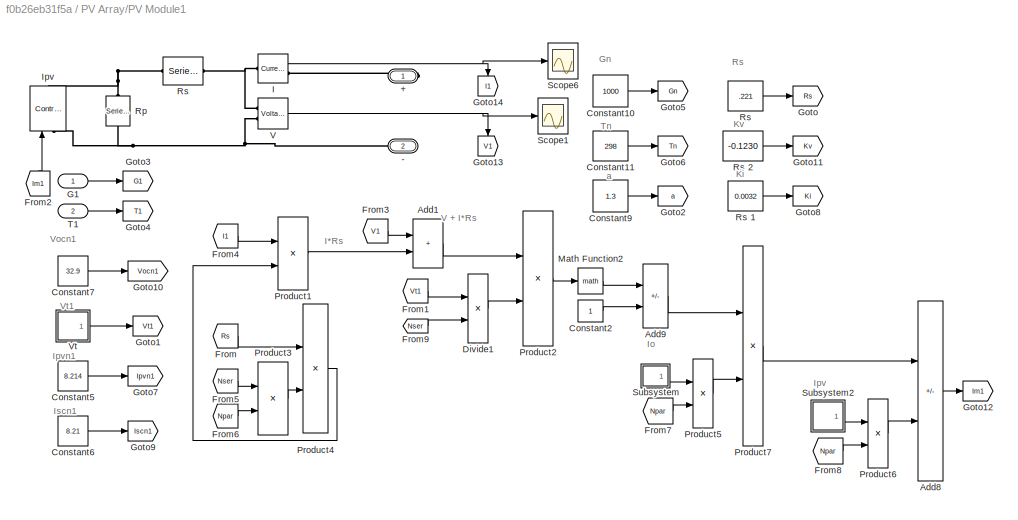
BLOCK [SubSystem] PV Array/PV Module1
  Ports = [2, 0, 0, 0, 0, 0, 2]
  RequestExecContextInheritance = off
BLOCK [PMIOPort] PV Array/PV Module1/+
  NameLocation = top
  Side = Right
BLOCK [PMIOPort] PV Array/PV Module1/-
  NameLocation = top
  Port = 2
  Side = Right
BLOCK [Sum] PV Array/PV Module1/Add1
  IconShape = rectangular
  Ports = [2, 1]
BLOCK [Sum] PV Array/PV Module1/Add8
  IconShape = rectangular
  Inputs = -+
  Ports = [2, 1]
BLOCK [Sum] PV Array/PV Module1/Add9
  IconShape = rectangular
  Inputs = +-
  Ports = [2, 1]
BLOCK [Constant] PV Array/PV Module1/Constant10
  NameLocation = top
  Value = 1000
BLOCK [Constant] PV Array/PV Module1/Constant11
  NameLocation = top
  Value = 298
BLOCK [Constant] PV Array/PV Module1/Constant2
  NameLocation = top
BLOCK [Constant] PV Array/PV Module1/Constant5
  NameLocation = top
  Value = 8.214
BLOCK [Constant] PV Array/PV Module1/Constant6
  NameLocation = top
  Value = 8.21
BLOCK [Constant] PV Array/PV Module1/Constant7
  NameLocation = top
  Value = 32.9
BLOCK [Constant] PV Array/PV Module1/Constant9
  NameLocation = top
  Value = 1.3
BLOCK [Product] PV Array/PV Module1/Divide1
  Inputs = */
  Ports = [2, 1]
BLOCK [From] PV Array/PV Module1/From
  GotoTag = Rs
  IconDisplay = Signal name
  TagVisibility = global
BLOCK [From] PV Array/PV Module1/From1
  GotoTag = Vt1
  IconDisplay = Signal name
  TagVisibility = global
BLOCK [From] PV Array/PV Module1/From2
  GotoTag = Im1
  IconDisplay = Signal name
  NameLocation = right
  TagVisibility = global
BLOCK [From] PV Array/PV Module1/From3
  GotoTag = V1
  IconDisplay = Signal name
  TagVisibility = global
BLOCK [From] PV Array/PV Module1/From4
  GotoTag = I1
  IconDisplay = Signal name
  TagVisibility = global
BLOCK [From] PV Array/PV Module1/From5
  GotoTag = Nser
  IconDisplay = Signal name
  TagVisibility = global
BLOCK [From] PV Array/PV Module1/From6
  GotoTag = Npar
  IconDisplay = Signal name
  TagVisibility = global
BLOCK [From] PV Array/PV Module1/From7
  GotoTag = Npar
  IconDisplay = Signal name
  TagVisibility = global
BLOCK [From] PV Array/PV Module1/From8
  GotoTag = Npar
  IconDisplay = Signal name
  TagVisibility = global
BLOCK [From] PV Array/PV Module1/From9
  GotoTag = Nser
  IconDisplay = Signal name
  TagVisibility = global
BLOCK [Inport] PV Array/PV Module1/G1
BLOCK [Goto] PV Array/PV Module1/Goto
  GotoTag = Rs
  IconDisplay = Signal name
  TagVisibility = global
BLOCK [Goto] PV Array/PV Module1/Goto1
  GotoTag = Vt1
  IconDisplay = Signal name
  TagVisibility = global
BLOCK [Goto] PV Array/PV Module1/Goto10
  GotoTag = Vocn1
  IconDisplay = Signal name
  TagVisibility = global
BLOCK [Goto] PV Array/PV Module1/Goto11
  GotoTag = Kv
  IconDisplay = Signal name
  TagVisibility = global
BLOCK [Goto] PV Array/PV Module1/Goto12
  GotoTag = Im1
  IconDisplay = Signal name
  TagVisibility = global
BLOCK [Goto] PV Array/PV Module1/Goto13
  GotoTag = V1
  IconDisplay = Signal name
  NameLocation = left
  TagVisibility = global
BLOCK [Goto] PV Array/PV Module1/Goto14
  GotoTag = I1
  IconDisplay = Signal name
  NameLocation = left
  TagVisibility = global
BLOCK [Goto] PV Array/PV Module1/Goto2
  GotoTag = a
  IconDisplay = Signal name
  TagVisibility = global
BLOCK [Goto] PV Array/PV Module1/Goto3
  GotoTag = G1
  IconDisplay = Signal name
  TagVisibility = global
BLOCK [Goto] PV Array/PV Module1/Goto4
  GotoTag = T1
  IconDisplay = Signal name
  TagVisibility = global
BLOCK [Goto] PV Array/PV Module1/Goto5
  GotoTag = Gn
  IconDisplay = Signal name
  TagVisibility = global
BLOCK [Goto] PV Array/PV Module1/Goto6
  GotoTag = Tn
  IconDisplay = Signal name
  TagVisibility = global
BLOCK [Goto] PV Array/PV Module1/Goto7
  GotoTag = Ipvn1
  IconDisplay = Signal name
  TagVisibility = global
BLOCK [Goto] PV Array/PV Module1/Goto8
  GotoTag = Ki
  IconDisplay = Signal name
  TagVisibility = global
BLOCK [Goto] PV Array/PV Module1/Goto9
  GotoTag = Iscn1
  IconDisplay = Signal name
  TagVisibility = global
BLOCK [Reference] PV Array/PV Module1/I  REF=spsCurrentMeasurementLib/Current Measurement
  Ports = [0, 1, 0, 0, 0, 1, 1]
  SourceBlock = spsCurrentMeasurementLib/Current Measurement
  SourceProductBaseCode = PS
  SourceType = Current Measurement
BLOCK [Reference] PV Array/PV Module1/Ipv  REF=spsControlledCurrentSourceLib/Controlled Current Source
  NameLocation = right
  Ports = [1, 0, 0, 0, 0, 1, 1]
  SourceBlock = spsControlledCurrentSourceLib/Controlled Current Source
  SourceProductBaseCode = PS
  SourceType = Controlled Current Source
BLOCK [Math] PV Array/PV Module1/Math Function2
  Ports = [1, 1]
  SignedPower = on
BLOCK [Product] PV Array/PV Module1/Product1
  Ports = [2, 1]
  RndMeth = Zero
BLOCK [Product] PV Array/PV Module1/Product2
  Ports = [2, 1]
  RndMeth = Zero
BLOCK [Product] PV Array/PV Module1/Product3
  Inputs = */
  Ports = [2, 1]
  RndMeth = Zero
BLOCK [Product] PV Array/PV Module1/Product4
  Ports = [2, 1]
  RndMeth = Zero
BLOCK [Product] PV Array/PV Module1/Product5
  Ports = [2, 1]
  RndMeth = Zero
BLOCK [Product] PV Array/PV Module1/Product6
  Ports = [2, 1]
  RndMeth = Zero
BLOCK [Product] PV Array/PV Module1/Product7
  Ports = [2, 1]
  RndMeth = Zero
BLOCK [Reference] PV Array/PV Module1/Rp  REF=spsSeriesRLCBranchLib/Series RLC Branch
  NameLocation = right
  Ports = [0, 0, 0, 0, 0, 1, 1]
  SourceBlock = spsSeriesRLCBranchLib/Series RLC Branch
  SourceProductBaseCode = PS
  SourceType = Series RLC Branch
BLOCK [Reference] PV Array/PV Module1/Rs  REF=spsSeriesRLCBranchLib/Series RLC Branch
  Ports = [0, 0, 0, 0, 0, 1, 1]
  SourceBlock = spsSeriesRLCBranchLib/Series RLC Branch
  SourceProductBaseCode = PS
  SourceType = Series RLC Branch
BLOCK [Constant] PV Array/PV Module1/Rs 
  NameLocation = top
  Value = .221
BLOCK [Constant] PV Array/PV Module1/Rs 1
  NameLocation = top
  Value = 0.0032
BLOCK [Constant] PV Array/PV Module1/Rs 2
  NameLocation = top
  Value = -0.1230
BLOCK [Scope] PV Array/PV Module1/Scope1
  Floating = off
  NumInputPorts = 1
  Ports = [1]
  ScopeSpecificationString = C++SS(StrPVP('Location','[5, 49, 1921, 1039]'),StrPVP('Open','off'),MxPVP('AxesTitles',54,'struct(''axes1'',''%<SignalLabel>'')'),MxPVP('ScopeGraphics',57,'struct(''FigureColor'',''[0.5 0.5 0.5]'',''AxesColor'',''[0 0 0]'',''AxesTickColor'',''[1 1 1]'',''LineColors'',''[1 1 0;1 0 1;0 1 1;1 0 0;0 1 0;0 0 1]'',''LineStyles'',''-|-|-|-|-|-'',''LineWidths'',''[0.5 0.5 0.5 0.5 0.5 0.5]'',''MarkerStyles...<+370ch>
BLOCK [Scope] PV Array/PV Module1/Scope6
  Floating = off
  NumInputPorts = 1
  Ports = [1]
  ScopeSpecificationString = C++SS(StrPVP('Location','[5, 49, 1921, 1039]'),StrPVP('Open','off'),MxPVP('AxesTitles',54,'struct(''axes1'',''%<SignalLabel>'')'),MxPVP('ScopeGraphics',57,'struct(''FigureColor'',''[0.5 0.5 0.5]'',''AxesColor'',''[0 0 0]'',''AxesTickColor'',''[1 1 1]'',''LineColors'',''[1 1 0;1 0 1;0 1 1;1 0 0;0 1 0;0 0 1]'',''LineStyles'',''-|-|-|-|-|-'',''LineWidths'',''[0.5 0.5 0.5 0.5 0.5 0.5]'',''MarkerStyles...<+370ch>
BLOCK [SubSystem] PV Array/PV Module1/Subsystem
  Ports = [0, 1]
  RequestExecContextInheritance = off
BLOCK [Sum] PV Array/PV Module1/Subsystem/Add4
  IconShape = rectangular
  Inputs = +-
  Ports = [2, 1]
BLOCK [Sum] PV Array/PV Module1/Subsystem/Add5
  IconShape = rectangular
  Ports = [2, 1]
BLOCK [Sum] PV Array/PV Module1/Subsystem/Add6
  IconShape = rectangular
  Ports = [2, 1]
BLOCK [Sum] PV Array/PV Module1/Subsystem/Add7
  IconShape = rectangular
  Inputs = +-
  Ports = [2, 1]
BLOCK [Constant] PV Array/PV Module1/Subsystem/Constant8
  NameLocation = top
BLOCK [Product] PV Array/PV Module1/Subsystem/Divide2
  Inputs = **
  Ports = [2, 1]
BLOCK [Product] PV Array/PV Module1/Subsystem/Divide4
  Inputs = */
  Ports = [2, 1]
BLOCK [From] PV Array/PV Module1/Subsystem/From1
  GotoTag = Vt1
  IconDisplay = Signal name
  TagVisibility = global
BLOCK [From] PV Array/PV Module1/Subsystem/From10
  GotoTag = Ki
  IconDisplay = Signal name
  TagVisibility = global
BLOCK [From] PV Array/PV Module1/Subsystem/From11
  GotoTag = T1
  IconDisplay = Signal name
  TagVisibility = global
BLOCK [From] PV Array/PV Module1/Subsystem/From12
  GotoTag = Tn
  IconDisplay = Signal name
  TagVisibility = global
BLOCK [From] PV Array/PV Module1/Subsystem/From13
  GotoTag = Vocn1
  IconDisplay = Signal name
  TagVisibility = global
BLOCK [From] PV Array/PV Module1/Subsystem/From14
  GotoTag = Kv
  IconDisplay = Signal name
  TagVisibility = global
BLOCK [From] PV Array/PV Module1/Subsystem/From9
  GotoTag = Iscn1
  IconDisplay = Signal name
  TagVisibility = global
BLOCK [Math] PV Array/PV Module1/Subsystem/Math Function1
  Ports = [1, 1]
  SignedPower = on
BLOCK [Outport] PV Array/PV Module1/Subsystem/Out1
BLOCK [Product] PV Array/PV Module1/Subsystem/Product4
  Ports = [2, 1]
  RndMeth = Zero
BLOCK [Product] PV Array/PV Module1/Subsystem/Product5
  Ports = [2, 1]
  RndMeth = Zero
BLOCK [SubSystem] PV Array/PV Module1/Subsystem2
  Ports = [0, 1]
  RequestExecContextInheritance = off
BLOCK [Sum] PV Array/PV Module1/Subsystem2/Add2
  IconShape = rectangular
  Inputs = +-
  Ports = [2, 1]
BLOCK [Sum] PV Array/PV Module1/Subsystem2/Add3
  IconShape = rectangular
  Ports = [2, 1]
BLOCK [Product] PV Array/PV Module1/Subsystem2/Divide1
  Inputs = */
  Ports = [2, 1]
BLOCK [From] PV Array/PV Module1/Subsystem2/From3
  GotoTag = G1
  IconDisplay = Signal name
  TagVisibility = global
BLOCK [From] PV Array/PV Module1/Subsystem2/From4
  GotoTag = Gn
  IconDisplay = Signal name
  TagVisibility = global
BLOCK [From] PV Array/PV Module1/Subsystem2/From5
  GotoTag = Ipvn1
  IconDisplay = Signal name
  TagVisibility = global
BLOCK [From] PV Array/PV Module1/Subsystem2/From6
  GotoTag = Ki
  IconDisplay = Signal name
  TagVisibility = global
BLOCK [From] PV Array/PV Module1/Subsystem2/From7
  GotoTag = T1
  IconDisplay = Signal name
  TagVisibility = global
BLOCK [From] PV Array/PV Module1/Subsystem2/From8
  GotoTag = Tn
  IconDisplay = Signal name
  TagVisibility = global
BLOCK [Outport] PV Array/PV Module1/Subsystem2/Out1
BLOCK [Product] PV Array/PV Module1/Subsystem2/Product2
  Ports = [2, 1]
  RndMeth = Zero
BLOCK [Product] PV Array/PV Module1/Subsystem2/Product3
  Ports = [2, 1]
  RndMeth = Zero
BLOCK [Inport] PV Array/PV Module1/T1
  Port = 2
BLOCK [Reference] PV Array/PV Module1/V   REF=spsVoltageMeasurementLib/Voltage Measurement
  NameLocation = top
  Ports = [0, 1, 0, 0, 0, 2]
  SourceBlock = spsVoltageMeasurementLib/Voltage Measurement
  SourceProductBaseCode = PS
  SourceType = Voltage Measurement
BLOCK [SubSystem] PV Array/PV Module1/Vt
  Ports = [0, 1]
  RequestExecContextInheritance = off
BLOCK [Constant] PV Array/PV Module1/Vt/Constant1
  NameLocation = top
  Value = 54
BLOCK [Constant] PV Array/PV Module1/Vt/Constant3
  NameLocation = top
  Value = 1.3806503e-23
BLOCK [Constant] PV Array/PV Module1/Vt/Constant6
  NameLocation = top
  Value = 1.60217646e-19
BLOCK [Product] PV Array/PV Module1/Vt/Divide2
  Inputs = */
  Ports = [2, 1]
BLOCK [Product] PV Array/PV Module1/Vt/Divide3
  Inputs = /*
  Ports = [2, 1]
BLOCK [Product] PV Array/PV Module1/Vt/Divide4
  Inputs = ***
  Ports = [3, 1]
BLOCK [From] PV Array/PV Module1/Vt/From1
  GotoTag = a
  IconDisplay = Signal name
  TagVisibility = global
BLOCK [From] PV Array/PV Module1/Vt/From2
  GotoTag = T1
  IconDisplay = Signal name
  TagVisibility = global
BLOCK [Outport] PV Array/PV Module1/Vt/Vt
BLOCK [Product] PV Array/Product2
  Ports = [2, 1]
  RndMeth = Zero
BLOCK [Constant] PV Array/Rs 
  NameLocation = top
  Value = 25
BLOCK [Constant] PV Array/Rs 1
  NameLocation = top
  Value = 2
BLOCK [Scope] PV Array/Scope1
  Floating = off
  NameLocation = top
  NumInputPorts = 1
  Ports = [1]
  ScopeSpecificationString = Simulink.scopes.TimeScopeBlockCfg('CurrentConfiguration', extmgr.ConfigurationSet(extmgr.Configuration('Core','General UI',true),extmgr.Configuration('Core','Source UI',true),extmgr.Configuration('Sources','WiredSimulink',true,'DataLogging',true,'DataLoggingVariableName','ScopeData6','DataLoggingSaveFormat','StructureWithTime','DataLoggingDecimation','1','DataLoggingDecimateData',true),extmgr.Conf...<+1794ch>
BLOCK [Scope] PV Array/Scope4
  Floating = off
  NameLocation = top
  NumInputPorts = 1
  Ports = [1]
  ScopeSpecificationString = Simulink.scopes.TimeScopeBlockCfg('CurrentConfiguration', extmgr.ConfigurationSet(extmgr.Configuration('Core','General UI',true),extmgr.Configuration('Core','Source UI',true),extmgr.Configuration('Sources','WiredSimulink',true,'DataLogging',true,'DataLoggingVariableName','ScopeData3','DataLoggingSaveFormat','StructureWithTime','DataLoggingDecimation','1','DataLoggingDecimateData',true),extmgr.Conf...<+1752ch>
BLOCK [Scope] PV Array/Scope9
  Floating = off
  NameLocation = top
  NumInputPorts = 1
  Ports = [1]
  ScopeSpecificationString = Simulink.scopes.TimeScopeBlockCfg('CurrentConfiguration', extmgr.ConfigurationSet(extmgr.Configuration('Core','General UI',true),extmgr.Configuration('Core','Source UI',true),extmgr.Configuration('Sources','WiredSimulink',true,'DataLogging',true,'DataLoggingVariableName','sourcect33','DataLoggingSaveFormat','StructureWithTime','DataLoggingDecimation','1','DataLoggingDecimateData',true),extmgr.Conf...<+1839ch>
BLOCK [ToWorkspace] PV Array/To Workspace
  MaxDataPoints = inf
  Ports = [1]
  SampleTime = -1
  SaveFormat = Timeseries
  VariableName = i
BLOCK [ToWorkspace] PV Array/To Workspace1
  MaxDataPoints = inf
  Ports = [1]
  SampleTime = -1
  SaveFormat = Timeseries
  VariableName = v
BLOCK [ToWorkspace] PV Array/To Workspace2
  MaxDataPoints = inf
  Ports = [1]
  SampleTime = -1
  VariableName = p
BLOCK [ToWorkspace] PV Array/To Workspace3
  MaxDataPoints = 614863
  Ports = [1]
  SampleTime = -1
  VariableName = Ppv
BLOCK [Reference] PV Array/V   REF=spsVoltageMeasurementLib/Voltage Measurement
  NameLocation = top
  Ports = [0, 1, 0, 0, 0, 2]
  SourceBlock = spsVoltageMeasurementLib/Voltage Measurement
  SourceProductBaseCode = PS
  SourceType = Voltage Measurement
BLOCK [Reference] Rf1,Lf1  REF=spsSeriesRLCBranchLib/Series RLC Branch
  NameLocation = top
  Ports = [0, 0, 0, 0, 0, 1, 1]
  SourceBlock = spsSeriesRLCBranchLib/Series RLC Branch
  SourceProductBaseCode = PS
  SourceType = Series RLC Branch
BLOCK [Reference] Rf1,Lf2  REF=spsSeriesRLCBranchLib/Series RLC Branch
  NameLocation = top
  Ports = [0, 0, 0, 0, 0, 1, 1]
  SourceBlock = spsSeriesRLCBranchLib/Series RLC Branch
  SourceProductBaseCode = PS
  SourceType = Series RLC Branch
BLOCK [Reference] Rf1,Lf3  REF=spsSeriesRLCBranchLib/Series RLC Branch
  NameLocation = top
  Ports = [0, 0, 0, 0, 0, 1, 1]
  SourceBlock = spsSeriesRLCBranchLib/Series RLC Branch
  SourceProductBaseCode = PS
  SourceType = Series RLC Branch
BLOCK [Reference] Rs1,LsI1  REF=spsSeriesRLCBranchLib/Series RLC Branch
  Ports = [0, 0, 0, 0, 0, 1, 1]
  SourceBlock = spsSeriesRLCBranchLib/Series RLC Branch
  SourceProductBaseCode = PS
  SourceType = Series RLC Branch
BLOCK [Reference] Rs1,LsI2  REF=spsSeriesRLCBranchLib/Series RLC Branch
  Ports = [0, 0, 0, 0, 0, 1, 1]
  SourceBlock = spsSeriesRLCBranchLib/Series RLC Branch
  SourceProductBaseCode = PS
  SourceType = Series RLC Branch
BLOCK [Reference] Rs1,LsI3  REF=spsSeriesRLCBranchLib/Series RLC Branch
  Ports = [0, 0, 0, 0, 0, 1, 1]
  SourceBlock = spsSeriesRLCBranchLib/Series RLC Branch
  SourceProductBaseCode = PS
  SourceType = Series RLC Branch
BLOCK [Scope] Scope
  Floating = off
  NumInputPorts = 1
  Ports = [1]
  ScopeSpecificationString = Simulink.scopes.TimeScopeBlockCfg('CurrentConfiguration', extmgr.ConfigurationSet(extmgr.Configuration('Core','General UI',true),extmgr.Configuration('Core','Source UI',true),extmgr.Configuration('Sources','WiredSimulink',true,'DataLoggingVariableName','ScopeData1'),extmgr.Configuration('Visuals','Time Domain',true,'SerializedDisplays',{struct('MinYLimReal','-522.159','MaxYLimReal','522.159','YLab...<+1471ch>
BLOCK [Scope] Scope1
  Floating = off
  NumInputPorts = 1
  Ports = [1]
  ScopeSpecificationString = Simulink.scopes.TimeScopeBlockCfg('CurrentConfiguration', extmgr.ConfigurationSet(extmgr.Configuration('Core','General UI',true),extmgr.Configuration('Core','Source UI',true),extmgr.Configuration('Sources','WiredSimulink',true,'DataLoggingVariableName','ScopeData2'),extmgr.Configuration('Visuals','Time Domain',true,'SerializedDisplays',{struct('MinYLimReal','-49.20066','MaxYLimReal','59.08251','YL...<+1475ch>
BLOCK [Scope] Scope10
  Floating = off
  NumInputPorts = 1
  Ports = [1]
  ScopeSpecificationString = Simulink.scopes.TimeScopeBlockCfg('CurrentConfiguration', extmgr.ConfigurationSet(extmgr.Configuration('Core','General UI',true),extmgr.Configuration('Core','Source UI',true),extmgr.Configuration('Sources','WiredSimulink',true,'DataLoggingVariableName','ScopeData3'),extmgr.Configuration('Visuals','Time Domain',true,'SerializedDisplays',{struct('MinYLimReal','-412.56656','MaxYLimReal','412.56656','...<+1525ch>
BLOCK [Scope] Scope2
  Floating = off
  NumInputPorts = 1
  Ports = [1]
  ScopeSpecificationString = Simulink.scopes.TimeScopeBlockCfg('CurrentConfiguration', extmgr.ConfigurationSet(extmgr.Configuration('Core','General UI',true),extmgr.Configuration('Core','Source UI',true),extmgr.Configuration('Sources','WiredSimulink',true,'DataLoggingVariableName','ScopeData4'),extmgr.Configuration('Visuals','Time Domain',true,'SerializedDisplays',{struct('MinYLimReal','-55.00447','MaxYLimReal','45.16813','YL...<+1519ch>
BLOCK [Scope] Scope3
  Floating = off
  NumInputPorts = 1
  Ports = [1]
  ScopeSpecificationString = Simulink.scopes.TimeScopeBlockCfg('CurrentConfiguration', extmgr.ConfigurationSet(extmgr.Configuration('Core','General UI',true),extmgr.Configuration('Core','Source UI',true),extmgr.Configuration('Sources','WiredSimulink',true,'DataLogging',true,'DataLoggingVariableName','ScopeData5','DataLoggingSaveFormat','StructureWithTime','DataLoggingDecimation','1','DataLoggingDecimateData',true),extmgr.Conf...<+1806ch>
BLOCK [Scope] Scope4
  Floating = off
  NameLocation = top
  NumInputPorts = 1
  Ports = [1]
  ScopeSpecificationString = Simulink.scopes.TimeScopeBlockCfg('CurrentConfiguration', extmgr.ConfigurationSet(extmgr.Configuration('Core','General UI',true),extmgr.Configuration('Core','Source UI',true),extmgr.Configuration('Sources','WiredSimulink',true,'DataLoggingVariableName','ScopeData6'),extmgr.Configuration('Visuals','Time Domain',true,'SerializedDisplays',{struct('MinYLimReal','-86.19726','MaxYLimReal','81.89721','YL...<+1495ch>
BLOCK [Scope] Scope5
  Floating = off
  NumInputPorts = 1
  Ports = [1]
  ScopeSpecificationString = Simulink.scopes.TimeScopeBlockCfg('CurrentConfiguration', extmgr.ConfigurationSet(extmgr.Configuration('Core','General UI',true),extmgr.Configuration('Core','Source UI',true),extmgr.Configuration('Sources','WiredSimulink',true,'DataLoggingVariableName','ScopeData7'),extmgr.Configuration('Visuals','Time Domain',true,'SerializedDisplays',{struct('MinYLimReal','-420.31845','MaxYLimReal','420.31529','...<+1538ch>
BLOCK [Scope] Scope6
  Floating = off
  NumInputPorts = 1
  Ports = [1]
  ScopeSpecificationString = Simulink.scopes.TimeScopeBlockCfg('CurrentConfiguration', extmgr.ConfigurationSet(extmgr.Configuration('Core','General UI',true),extmgr.Configuration('Core','Source UI',true),extmgr.Configuration('Sources','WiredSimulink',true,'DataLoggingVariableName','ScopeData8'),extmgr.Configuration('Visuals','Time Domain',true,'SerializedDisplays',{struct('MinYLimReal','1.11413','MaxYLimReal','2.4229','YLabel...<+1473ch>
BLOCK [Scope] Scope7
  Floating = off
  NumInputPorts = 1
  Ports = [1]
  ScopeSpecificationString = Simulink.scopes.TimeScopeBlockCfg('CurrentConfiguration', extmgr.ConfigurationSet(extmgr.Configuration('Core','General UI',true),extmgr.Configuration('Core','Source UI',true),extmgr.Configuration('Sources','WiredSimulink',true,'DataLogging',true,'DataLoggingVariableName','ScopeData9','DataLoggingSaveFormat','StructureWithTime','DataLoggingDecimation','1','DataLoggingDecimateData',true),extmgr.Conf...<+1796ch>
BLOCK [Scope] Scope8
  Floating = off
  NameLocation = top
  NumInputPorts = 1
  Ports = [1]
  ScopeSpecificationString = Simulink.scopes.TimeScopeBlockCfg('CurrentConfiguration', extmgr.ConfigurationSet(extmgr.Configuration('Core','General UI',true),extmgr.Configuration('Core','Source UI',true),extmgr.Configuration('Sources','WiredSimulink',true,'DataLoggingVariableName','ScopeData10'),extmgr.Configuration('Visuals','Time Domain',true,'SerializedDisplays',{struct('MinYLimReal','-3.59931','MaxYLimReal','3.60272','YLa...<+1443ch>
BLOCK [Scope] Scope9
  Floating = off
  NumInputPorts = 1
  Ports = [1]
  ScopeSpecificationString = Simulink.scopes.TimeScopeBlockCfg('CurrentConfiguration', extmgr.ConfigurationSet(extmgr.Configuration('Core','General UI',true),extmgr.Configuration('Core','Source UI',true),extmgr.Configuration('Sources','WiredSimulink',true,'DataLoggingVariableName','ScopeData11'),extmgr.Configuration('Visuals','Time Domain',true,'SerializedDisplays',{struct('MinYLimReal','-0.00031','MaxYLimReal','0.00279','YLa...<+1411ch>
BLOCK [SubSystem] Subsystem1
  Ports = [0, 0, 0, 0, 0, 3, 3]
  RequestExecContextInheritance = off
BLOCK [Reference] Subsystem1/C1  REF=spsCurrentMeasurementLib/Current Measurement
  Ports = [0, 1, 0, 0, 0, 1, 1]
  SourceBlock = spsCurrentMeasurementLib/Current Measurement
  SourceProductBaseCode = PS
  SourceType = Current Measurement
BLOCK [Reference] Subsystem1/C2  REF=spsCurrentMeasurementLib/Current Measurement
  Ports = [0, 1, 0, 0, 0, 1, 1]
  SourceBlock = spsCurrentMeasurementLib/Current Measurement
  SourceProductBaseCode = PS
  SourceType = Current Measurement
BLOCK [Reference] Subsystem1/C3  REF=spsCurrentMeasurementLib/Current Measurement
  Ports = [0, 1, 0, 0, 0, 1, 1]
  SourceBlock = spsCurrentMeasurementLib/Current Measurement
  SourceProductBaseCode = PS
  SourceType = Current Measurement
BLOCK [PMIOPort] Subsystem1/Connection Port1
  Port = 2
  Side = Left
  Tag = PMCPort
BLOCK [PMIOPort] Subsystem1/Connection Port2
  Port = 3
  Side = Left
  Tag = PMCPort
BLOCK [PMIOPort] Subsystem1/Connection Port3
  Port = 4
  Side = Right
  Tag = PMCPort
BLOCK [PMIOPort] Subsystem1/Connection Port4
  Port = 5
  Side = Right
  Tag = PMCPort
BLOCK [PMIOPort] Subsystem1/Connection Port5
  Port = 6
  Side = Right
  Tag = PMCPort
BLOCK [Reference] Subsystem1/Ground1  REF=spsGroundLib/Ground
  NameLocation = right
  Ports = [0, 0, 0, 0, 0, 1]
  SourceBlock = spsGroundLib/Ground
  SourceProductBaseCode = PS
  SourceType = Ground
BLOCK [Reference] Subsystem1/Mean Value1  REF=powerlib_extras/Measurements/Mean Value
  Ports = [1, 1]
  SourceBlock = powerlib_extras/Measurements/Mean Value
  SourceProductBaseCode = PS
  SourceType = Mean value
BLOCK [Mux] Subsystem1/Mux1
  DisplayOption = bar
  Inputs = 3
  NameLocation = top
  Ports = [3, 1]
BLOCK [Mux] Subsystem1/Mux2
  DisplayOption = bar
  Inputs = 3
  NameLocation = top
  Ports = [3, 1]
BLOCK [Reference] Subsystem1/Power (3ph, Instantaneous)  REF=spsPower3phInstantaneousLib/Power
(3ph, Instantaneous)
  Ports = [2, 2]
  SourceBlock = spsPower3phInstantaneousLib/Power\n(3ph, Instantaneous)
  SourceProductBaseCode = PS
  SourceType = Power (3ph, Instantaneous)
BLOCK [Scope] Subsystem1/Scope1
  Floating = off
  NumInputPorts = 1
  Ports = [1]
  ScopeSpecificationString = C++SS(StrPVP('Location','[6, 49, 1914, 1039]'),StrPVP('Open','off'),MxPVP('AxesTitles',54,'struct(''axes1'',''%<SignalLabel>'')'),MxPVP('ScopeGraphics',57,'struct(''FigureColor'',''[0.5 0.5 0.5]'',''AxesColor'',''[0 0 0]'',''AxesTickColor'',''[1 1 1]'',''LineColors'',''[1 1 0;1 0 1;0 1 1;1 0 0;0 1 0;0 0 1]'',''LineStyles'',''-|-|-|-|-|-'',''LineWidths'',''[0.5 0.5 0.5 0.5 0.5 0.5]'',''MarkerStyles...<+369ch>
BLOCK [Scope] Subsystem1/Scope3
  Floating = off
  NumInputPorts = 1
  Ports = [1]
  ScopeSpecificationString = Simulink.scopes.TimeScopeBlockCfg('CurrentConfiguration', extmgr.ConfigurationSet(extmgr.Configuration('Core','General UI',true),extmgr.Configuration('Core','Source UI',true),extmgr.Configuration('Sources','WiredSimulink',true,'DataLogging',true,'DataLoggingVariableName','sourcect29','DataLoggingSaveFormat','StructureWithTime','DataLoggingDecimation','1','DataLoggingDecimateData',true),extmgr.Conf...<+1809ch>
BLOCK [Scope] Subsystem1/Scope4
  Floating = off
  NumInputPorts = 1
  Ports = [1]
  ScopeSpecificationString = Simulink.scopes.TimeScopeBlockCfg('CurrentConfiguration', extmgr.ConfigurationSet(extmgr.Configuration('Core','General UI',true),extmgr.Configuration('Core','Source UI',true),extmgr.Configuration('Sources','WiredSimulink',true,'DataLogging',true,'DataLoggingVariableName','sourcect7','DataLoggingSaveFormat','StructureWithTime','DataLoggingDecimation','1','DataLoggingDecimateData',true),extmgr.Confi...<+1825ch>
BLOCK [ToWorkspace] Subsystem1/To Workspace
  MaxDataPoints = 614863
  Ports = [1]
  SampleTime = -1
  VariableName = PG
BLOCK [Reference] Subsystem1/V1  REF=spsVoltageMeasurementLib/Voltage Measurement
  Ports = [0, 1, 0, 0, 0, 2]
  SourceBlock = spsVoltageMeasurementLib/Voltage Measurement
  SourceProductBaseCode = PS
  SourceType = Voltage Measurement
BLOCK [Reference] Subsystem1/V2  REF=spsVoltageMeasurementLib/Voltage Measurement
  Ports = [0, 1, 0, 0, 0, 2]
  SourceBlock = spsVoltageMeasurementLib/Voltage Measurement
  SourceProductBaseCode = PS
  SourceType = Voltage Measurement
BLOCK [Reference] Subsystem1/V5  REF=spsVoltageMeasurementLib/Voltage Measurement
  Ports = [0, 1, 0, 0, 0, 2]
  SourceBlock = spsVoltageMeasurementLib/Voltage Measurement
  SourceProductBaseCode = PS
  SourceType = Voltage Measurement
BLOCK [PMIOPort] Subsystem1/a
  NameLocation = top
  Side = Left
  Tag = PMCPort
BLOCK [SubSystem] Subsystem2
  NameLocation = right
  Ports = [0, 0, 0, 0, 0, 3, 3]
  RequestExecContextInheritance = off
BLOCK [Reference] Subsystem2/C1  REF=spsCurrentMeasurementLib/Current Measurement
  Ports = [0, 1, 0, 0, 0, 1, 1]
  SourceBlock = spsCurrentMeasurementLib/Current Measurement
  SourceProductBaseCode = PS
  SourceType = Current Measurement
BLOCK [Reference] Subsystem2/C2  REF=spsCurrentMeasurementLib/Current Measurement
  Ports = [0, 1, 0, 0, 0, 1, 1]
  SourceBlock = spsCurrentMeasurementLib/Current Measurement
  SourceProductBaseCode = PS
  SourceType = Current Measurement
BLOCK [Reference] Subsystem2/C3  REF=spsCurrentMeasurementLib/Current Measurement
  Ports = [0, 1, 0, 0, 0, 1, 1]
  SourceBlock = spsCurrentMeasurementLib/Current Measurement
  SourceProductBaseCode = PS
  SourceType = Current Measurement
BLOCK [PMIOPort] Subsystem2/Connection Port1
  Port = 2
  Side = Left
  Tag = PMCPort
BLOCK [PMIOPort] Subsystem2/Connection Port2
  Port = 3
  Side = Left
  Tag = PMCPort
BLOCK [PMIOPort] Subsystem2/Connection Port3
  Port = 4
  Side = Right
  Tag = PMCPort
BLOCK [PMIOPort] Subsystem2/Connection Port4
  Port = 5
  Side = Right
  Tag = PMCPort
BLOCK [PMIOPort] Subsystem2/Connection Port5
  Port = 6
  Side = Right
  Tag = PMCPort
BLOCK [Reference] Subsystem2/Ground1  REF=spsGroundLib/Ground
  NameLocation = right
  Ports = [0, 0, 0, 0, 0, 1]
  SourceBlock = spsGroundLib/Ground
  SourceProductBaseCode = PS
  SourceType = Ground
BLOCK [Reference] Subsystem2/Mean Value1  REF=powerlib_extras/Measurements/Mean Value
  Ports = [1, 1]
  SourceBlock = powerlib_extras/Measurements/Mean Value
  SourceProductBaseCode = PS
  SourceType = Mean value
BLOCK [Mux] Subsystem2/Mux1
  DisplayOption = bar
  Inputs = 3
  NameLocation = top
  Ports = [3, 1]
BLOCK [Mux] Subsystem2/Mux2
  DisplayOption = bar
  Inputs = 3
  NameLocation = top
  Ports = [3, 1]
BLOCK [Reference] Subsystem2/Power (3ph, Instantaneous)  REF=spsPower3phInstantaneousLib/Power
(3ph, Instantaneous)
  Ports = [2, 2]
  SourceBlock = spsPower3phInstantaneousLib/Power\n(3ph, Instantaneous)
  SourceProductBaseCode = PS
  SourceType = Power (3ph, Instantaneous)
BLOCK [Scope] Subsystem2/Scope1
  Floating = off
  NumInputPorts = 1
  Ports = [1]
  ScopeSpecificationString = Simulink.scopes.TimeScopeBlockCfg('CurrentConfiguration', extmgr.ConfigurationSet(extmgr.Configuration('Core','General UI',true),extmgr.Configuration('Core','Source UI',true),extmgr.Configuration('Sources','WiredSimulink',true,'DataLogging',true,'DataLoggingVariableName','sourcect35','DataLoggingSaveFormat','StructureWithTime','DataLoggingDecimation','1','DataLoggingDecimateData',true),extmgr.Conf...<+1831ch>
BLOCK [Scope] Subsystem2/Scope2
  Floating = off
  NumInputPorts = 1
  Ports = [1]
  ScopeSpecificationString = Simulink.scopes.TimeScopeBlockCfg('CurrentConfiguration', extmgr.ConfigurationSet(extmgr.Configuration('Core','General UI',true),extmgr.Configuration('Core','Source UI',true),extmgr.Configuration('Sources','WiredSimulink',true,'DataLogging',true,'DataLoggingVariableName','sourcect39','DataLoggingSaveFormat','StructureWithTime','DataLoggingDecimation','1','DataLoggingDecimateData',true),extmgr.Conf...<+1772ch>
BLOCK [Scope] Subsystem2/Scope4
  Floating = off
  NumInputPorts = 1
  Ports = [1]
  ScopeSpecificationString = Simulink.scopes.TimeScopeBlockCfg('CurrentConfiguration', extmgr.ConfigurationSet(extmgr.Configuration('Core','General UI',true),extmgr.Configuration('Core','Source UI',true),extmgr.Configuration('Sources','WiredSimulink',true,'DataLogging',true,'DataLoggingVariableName','sourcect25','DataLoggingSaveFormat','StructureWithTime','DataLoggingDecimation','1','DataLoggingDecimateData',true),extmgr.Conf...<+1830ch>
BLOCK [ToWorkspace] Subsystem2/To Workspace1
  MaxDataPoints = 614863
  Ports = [1]
  SampleTime = -1
  VariableName = lp
BLOCK [Reference] Subsystem2/V1  REF=spsVoltageMeasurementLib/Voltage Measurement
  Ports = [0, 1, 0, 0, 0, 2]
  SourceBlock = spsVoltageMeasurementLib/Voltage Measurement
  SourceProductBaseCode = PS
  SourceType = Voltage Measurement
BLOCK [Reference] Subsystem2/V2  REF=spsVoltageMeasurementLib/Voltage Measurement
  Ports = [0, 1, 0, 0, 0, 2]
  SourceBlock = spsVoltageMeasurementLib/Voltage Measurement
  SourceProductBaseCode = PS
  SourceType = Voltage Measurement
BLOCK [Reference] Subsystem2/V5  REF=spsVoltageMeasurementLib/Voltage Measurement
  Ports = [0, 1, 0, 0, 0, 2]
  SourceBlock = spsVoltageMeasurementLib/Voltage Measurement
  SourceProductBaseCode = PS
  SourceType = Voltage Measurement
BLOCK [PMIOPort] Subsystem2/a
  NameLocation = top
  Side = Left
  Tag = PMCPort
BLOCK [SubSystem] Subsystem3
  Ports = [0, 0, 0, 0, 0, 3, 3]
  RequestExecContextInheritance = off
BLOCK [Reference] Subsystem3/C1  REF=spsCurrentMeasurementLib/Current Measurement
  Ports = [0, 1, 0, 0, 0, 1, 1]
  SourceBlock = spsCurrentMeasurementLib/Current Measurement
  SourceProductBaseCode = PS
  SourceType = Current Measurement
BLOCK [Reference] Subsystem3/C2  REF=spsCurrentMeasurementLib/Current Measurement
  Ports = [0, 1, 0, 0, 0, 1, 1]
  SourceBlock = spsCurrentMeasurementLib/Current Measurement
  SourceProductBaseCode = PS
  SourceType = Current Measurement
BLOCK [Reference] Subsystem3/C3  REF=spsCurrentMeasurementLib/Current Measurement
  Ports = [0, 1, 0, 0, 0, 1, 1]
  SourceBlock = spsCurrentMeasurementLib/Current Measurement
  SourceProductBaseCode = PS
  SourceType = Current Measurement
BLOCK [PMIOPort] Subsystem3/Connection Port1
  Port = 2
  Side = Left
  Tag = PMCPort
BLOCK [PMIOPort] Subsystem3/Connection Port2
  Port = 3
  Side = Left
  Tag = PMCPort
BLOCK [PMIOPort] Subsystem3/Connection Port3
  Port = 4
  Side = Right
  Tag = PMCPort
BLOCK [PMIOPort] Subsystem3/Connection Port4
  Port = 5
  Side = Right
  Tag = PMCPort
BLOCK [PMIOPort] Subsystem3/Connection Port5
  Port = 6
  Side = Right
  Tag = PMCPort
BLOCK [Reference] Subsystem3/Ground1  REF=spsGroundLib/Ground
  NameLocation = right
  Ports = [0, 0, 0, 0, 0, 1]
  SourceBlock = spsGroundLib/Ground
  SourceProductBaseCode = PS
  SourceType = Ground
BLOCK [Reference] Subsystem3/Mean Value1  REF=powerlib_extras/Measurements/Mean Value
  Ports = [1, 1]
  SourceBlock = powerlib_extras/Measurements/Mean Value
  SourceProductBaseCode = PS
  SourceType = Mean value
BLOCK [Mux] Subsystem3/Mux1
  DisplayOption = bar
  Inputs = 3
  NameLocation = top
  Ports = [3, 1]
BLOCK [Mux] Subsystem3/Mux2
  DisplayOption = bar
  Inputs = 3
  NameLocation = top
  Ports = [3, 1]
BLOCK [Reference] Subsystem3/Power (3ph, Instantaneous)  REF=spsPower3phInstantaneousLib/Power
(3ph, Instantaneous)
  Ports = [2, 2]
  SourceBlock = spsPower3phInstantaneousLib/Power\n(3ph, Instantaneous)
  SourceProductBaseCode = PS
  SourceType = Power (3ph, Instantaneous)
BLOCK [Scope] Subsystem3/Scope1
  Floating = off
  NumInputPorts = 1
  Ports = [1]
  ScopeSpecificationString = Simulink.scopes.TimeScopeBlockCfg('CurrentConfiguration', extmgr.ConfigurationSet(extmgr.Configuration('Core','General UI',true),extmgr.Configuration('Core','Source UI',true),extmgr.Configuration('Sources','WiredSimulink',true,'DataLogging',true,'DataLoggingVariableName','sourcect44','DataLoggingSaveFormat','StructureWithTime','DataLoggingDecimation','1','DataLoggingDecimateData',true),extmgr.Conf...<+1858ch>
BLOCK [Scope] Subsystem3/Scope2
  Floating = off
  NumInputPorts = 1
  Ports = [1]
  ScopeSpecificationString = Simulink.scopes.TimeScopeBlockCfg('CurrentConfiguration', extmgr.ConfigurationSet(extmgr.Configuration('Core','General UI',true),extmgr.Configuration('Core','Source UI',true),extmgr.Configuration('Sources','WiredSimulink',true,'DataLogging',true,'DataLoggingVariableName','sourcect45','DataLoggingSaveFormat','StructureWithTime','DataLoggingDecimation','1','DataLoggingDecimateData',true),extmgr.Conf...<+1813ch>
BLOCK [Scope] Subsystem3/Scope4
  Floating = off
  NumInputPorts = 1
  Ports = [1]
  ScopeSpecificationString = C++SS(StrPVP('Location','[6, 49, 1914, 1039]'),StrPVP('Open','off'),MxPVP('AxesTitles',54,'struct(''axes1'',''%<SignalLabel>'')'),MxPVP('ScopeGraphics',57,'struct(''FigureColor'',''[0.5 0.5 0.5]'',''AxesColor'',''[0 0 0]'',''AxesTickColor'',''[1 1 1]'',''LineColors'',''[1 1 0;1 0 1;0 1 1;1 0 0;0 1 0;0 0 1]'',''LineStyles'',''-|-|-|-|-|-'',''LineWidths'',''[0.5 0.5 0.5 0.5 0.5 0.5]'',''MarkerStyles...<+370ch>
BLOCK [ToWorkspace] Subsystem3/To Workspace4
  MaxDataPoints = 614863
  Ports = [1]
  SampleTime = -1
  VariableName = pinv
BLOCK [Reference] Subsystem3/V1  REF=spsVoltageMeasurementLib/Voltage Measurement
  Ports = [0, 1, 0, 0, 0, 2]
  SourceBlock = spsVoltageMeasurementLib/Voltage Measurement
  SourceProductBaseCode = PS
  SourceType = Voltage Measurement
BLOCK [Reference] Subsystem3/V2  REF=spsVoltageMeasurementLib/Voltage Measurement
  Ports = [0, 1, 0, 0, 0, 2]
  SourceBlock = spsVoltageMeasurementLib/Voltage Measurement
  SourceProductBaseCode = PS
  SourceType = Voltage Measurement
BLOCK [Reference] Subsystem3/V5  REF=spsVoltageMeasurementLib/Voltage Measurement
  Ports = [0, 1, 0, 0, 0, 2]
  SourceBlock = spsVoltageMeasurementLib/Voltage Measurement
  SourceProductBaseCode = PS
  SourceType = Voltage Measurement
BLOCK [PMIOPort] Subsystem3/a
  NameLocation = top
  Side = Left
  Tag = PMCPort
BLOCK [Terminator] Terminator
BLOCK [Reference] Three-Phase Programmable Voltage Source  REF=spsThreePhaseProgrammableVoltageSourceLib/Three-Phase
Programmable
Voltage Source
  NameLocation = top
  Ports = [0, 0, 0, 0, 0, 1, 3]
  SourceBlock = spsThreePhaseProgrammableVoltageSourceLib/Three-Phase\nProgrammable\nVoltage Source
  SourceProductBaseCode = PS
  SourceType = Three-Phase Programmable Voltage Source
BLOCK [SubSystem] Timer
  Ports = [1, 1]
  RequestExecContextInheritance = off
BLOCK [Constant] Timer/Constant
  Value = 0
BLOCK [Demux] Timer/Demux
  Outputs = 6
  Ports = [1, 6]
BLOCK [Inport] Timer/In1
BLOCK [Logic] Timer/Logical Operator3
  AllPortsSameDT = off
  Operator = NOT
  OutDataTypeStr = boolean
  Ports = [1, 1]
BLOCK [Mux] Timer/Mux
  Inputs = 6
  Ports = [6, 1]
BLOCK [Outport] Timer/Out1
BLOCK [Step] Timer/Step2
  SampleTime = 0
  Time = .6
BLOCK [Switch] Timer/Switch
  Criteria = u2 ~= 0
  InputSameDT = off
  SaturateOnIntegerOverflow = off
BLOCK [Switch] Timer/Switch1
  Criteria = u2 ~= 0
  InputSameDT = off
  SaturateOnIntegerOverflow = off
BLOCK [Switch] Timer/Switch2
  Criteria = u2 ~= 0
  InputSameDT = off
  SaturateOnIntegerOverflow = off
BLOCK [Switch] Timer/Switch3
  Criteria = u2 ~= 0
  InputSameDT = off
  SaturateOnIntegerOverflow = off
BLOCK [Switch] Timer/Switch4
  Criteria = u2 ~= 0
  InputSameDT = off
  SaturateOnIntegerOverflow = off
BLOCK [Switch] Timer/Switch5
  Criteria = u2 ~= 0
  InputSameDT = off
  SaturateOnIntegerOverflow = off
BLOCK [SubSystem] Timer1
  Ports = [1, 2]
  RequestExecContextInheritance = off
BLOCK [Constant] Timer1/Constant
  Value = 0
BLOCK [Demux] Timer1/Demux
  Outputs = 2
  Ports = [1, 2]
BLOCK [Inport] Timer1/In1
BLOCK [Logic] Timer1/Logical Operator3
  AllPortsSameDT = off
  Operator = NOT
  OutDataTypeStr = boolean
  Ports = [1, 1]
BLOCK [Step] Timer1/Step2
  SampleTime = 0
  Time = .6
BLOCK [Switch] Timer1/Switch2
  Criteria = u2 ~= 0
  InputSameDT = off
  SaturateOnIntegerOverflow = off
BLOCK [Switch] Timer1/Switch3
  Criteria = u2 ~= 0
  InputSameDT = off
  SaturateOnIntegerOverflow = off
BLOCK [Outport] Timer1/g1
BLOCK [Outport] Timer1/g2
  Port = 2
BLOCK [ToWorkspace] To Workspace
  MaxDataPoints = 614863
  Ports = [1]
  SampleTime = -1
  VariableName = T
BLOCK [ToWorkspace] To Workspace1
  MaxDataPoints = 614863
  NameLocation = top
  Ports = [1]
  SampleTime = -1
  VariableName = ig
BLOCK [ToWorkspace] To Workspace2
  MaxDataPoints = 614863
  NameLocation = top
  Ports = [1]
  SampleTime = -1
  VariableName = il
BLOCK [ToWorkspace] To Workspace3
  MaxDataPoints = 614863
  NameLocation = top
  Ports = [1]
  SampleTime = -1
  VariableName = vg
BLOCK [ToWorkspace] To Workspace4
  MaxDataPoints = 614863
  NameLocation = top
  Ports = [1]
  SampleTime = -1
  VariableName = iinv
BLOCK [ToWorkspace] To Workspace5
  MaxDataPoints = 614863
  NameLocation = top
  Ports = [1]
  SampleTime = -1
  VariableName = vdc
BLOCK [Reference] Total Harmonic Distortion  REF=eeTotalHarmonicDistorsion/Total Harmonic
Distortion
  NameLocation = top
  Ports = [1, 1]
  SourceBlock = eeTotalHarmonicDistorsion/Total Harmonic\nDistortion
  SourceProductBaseCode = PS
  SourceType = Total Harmonic Distortion
BLOCK [Reference] Total Harmonic Distortion1  REF=eeTotalHarmonicDistorsion/Total Harmonic
Distortion
  NameLocation = top
  Ports = [1, 1]
  SourceBlock = eeTotalHarmonicDistorsion/Total Harmonic\nDistortion
  SourceProductBaseCode = PS
  SourceType = Total Harmonic Distortion
BLOCK [Reference] Total Harmonic Distortion2  REF=eeTotalHarmonicDistorsion/Total Harmonic
Distortion
  Ports = [1, 1]
  SourceBlock = eeTotalHarmonicDistorsion/Total Harmonic\nDistortion
  SourceProductBaseCode = PS
  SourceType = Total Harmonic Distortion
BLOCK [Reference] V1  REF=spsVoltageMeasurementLib/Voltage Measurement
  NameLocation = left
  Ports = [0, 1, 0, 0, 0, 2]
  SourceBlock = spsVoltageMeasurementLib/Voltage Measurement
  SourceProductBaseCode = PS
  SourceType = Voltage Measurement
BLOCK [Reference] V2  REF=spsVoltageMeasurementLib/Voltage Measurement
  NameLocation = top
  Ports = [0, 1, 0, 0, 0, 2]
  SourceBlock = spsVoltageMeasurementLib/Voltage Measurement
  SourceProductBaseCode = PS
  SourceType = Voltage Measurement
BLOCK [Reference] V3  REF=spsVoltageMeasurementLib/Voltage Measurement
  NameLocation = left
  Ports = [0, 1, 0, 0, 0, 2]
  SourceBlock = spsVoltageMeasurementLib/Voltage Measurement
  SourceProductBaseCode = PS
  SourceType = Voltage Measurement
BLOCK [Reference] V4  REF=spsVoltageMeasurementLib/Voltage Measurement
  NameLocation = left
  Ports = [0, 1, 0, 0, 0, 2]
  SourceBlock = spsVoltageMeasurementLib/Voltage Measurement
  SourceProductBaseCode = PS
  SourceType = Voltage Measurement
BLOCK [Reference] V5  REF=spsVoltageMeasurementLib/Voltage Measurement
  NameLocation = top
  Ports = [0, 1, 0, 0, 0, 2]
  SourceBlock = spsVoltageMeasurementLib/Voltage Measurement
  SourceProductBaseCode = PS
  SourceType = Voltage Measurement
BLOCK [Reference] V6  REF=spsVoltageMeasurementLib/Voltage Measurement
  NameLocation = top
  Ports = [0, 1, 0, 0, 0, 2]
  SourceBlock = spsVoltageMeasurementLib/Voltage Measurement
  SourceProductBaseCode = PS
  SourceType = Voltage Measurement
BLOCK [Reference] V7  REF=spsVoltageMeasurementLib/Voltage Measurement
  NameLocation = top
  Ports = [0, 1, 0, 0, 0, 2]
  SourceBlock = spsVoltageMeasurementLib/Voltage Measurement
  SourceProductBaseCode = PS
  SourceType = Voltage Measurement
BLOCK [Saturate] lIMITER2
  LowerLimit = 630
  UpperLimit = 820
BLOCK [Reference] powergui  REF=spspowerguiLib/powergui
  Ports = []
  Priority = 1
  SourceBlock = spspowerguiLib/powergui
  SourceProductBaseCode = PS
  SourceType = PSB option menu block
ANNOTATION PV Array: Npar
ANNOTATION PV Array: Nser
ANNOTATION PV Array/PV Module1: Gn
ANNOTATION PV Array/PV Module1: I*Rs
ANNOTATION PV Array/PV Module1: Io
ANNOTATION PV Array/PV Module1: Ipv
ANNOTATION PV Array/PV Module1: Ipvn1
ANNOTATION PV Array/PV Module1: Iscn1
ANNOTATION PV Array/PV Module1: Ki
ANNOTATION PV Array/PV Module1: Kv
ANNOTATION PV Array/PV Module1: Rs
ANNOTATION PV Array/PV Module1: Tn
ANNOTATION PV Array/PV Module1: V + I*Rs
ANNOTATION PV Array/PV Module1: Vocn1
ANNOTATION PV Array/PV Module1: Vt1
ANNOTATION PV Array/PV Module1: a
ANNOTATION PV Array/PV Module1/Subsystem: Delta T
ANNOTATION PV Array/PV Module1/Subsystem: Io
ANNOTATION PV Array/PV Module1/Subsystem2: Delta T
ANNOTATION PV Array/PV Module1/Subsystem2: Ipv
ANNOTATION PV Array/PV Module1/Vt: K
ANNOTATION PV Array/PV Module1/Vt: Ns
ANNOTATION PV Array/PV Module1/Vt: T1
ANNOTATION PV Array/PV Module1/Vt: a
ANNOTATION PV Array/PV Module1/Vt: q
LINE Battery/Battery1:1 -> Battery/Bus Selector:1
NET Battery/Bus Selector:1 -> Battery/Mux:1, Battery/Product:1, Battery/Scope4:1, Battery/Scope:1
NET Battery/Bus Selector:2 -> Battery/Mean Value2:1, Battery/Mux:2, Battery/Product:2, Battery/Scope5:1, Battery/Scope:2, Battery/ib:1
NET Battery/Bus Selector:3 -> Battery/Mux:3, Battery/Scope6:1, Battery/Scope:3
LINE Battery/G1:1 -> Battery/IGBT//Diode:1
LINE Battery/G2:1 -> Battery/IGBT//Diode1:1
NET Battery/Mean Value1:1 -> Battery/Pb:1, Battery/Scope2:1, Battery/To Workspace1:1
LINE Battery/Mean Value2:1 -> Battery/Scope3:1
LINE Battery/Mux:1 -> Battery/To Workspace2:1
NET Battery/Product:1 -> Battery/Mean Value1:1, Battery/Scope1:1
LINE Battery:1 -> Goto:1
LINE Battery:2 -> Goto24:1
LINE C10:1 -> Goto7:1
LINE C1:1 -> Goto3:1
LINE C2:1 -> Goto4:1
LINE C3:1 -> Goto5:1
LINE C4:1 -> Goto1:1
LINE C5:1 -> Goto8:1
LINE C6:1 -> Goto2:1
LINE C7:1 -> Goto13:1
LINE C8:1 -> Goto14:1
LINE C9:1 -> Goto15:1
NET Clock:1 -> Goto23:1, To Workspace:1
LINE Control Algorithm/Data Type Conversion1:1 -> Control Algorithm/Logical Operator1:1
LINE Control Algorithm/Data Type Conversion2:1 -> Control Algorithm/Mux:3
LINE Control Algorithm/Data Type Conversion3:1 -> Control Algorithm/Logical Operator2:1
LINE Control Algorithm/Data Type Conversion4:1 -> Control Algorithm/Mux:1
LINE Control Algorithm/Data Type Conversion5:1 -> Control Algorithm/Mux:5
LINE Control Algorithm/Data Type Conversion6:1 -> Control Algorithm/Logical Operator4:1
LINE Control Algorithm/Data Type Conversion7:1 -> Control Algorithm/Mux2:1
LINE Control Algorithm/Data Type Conversion:1 -> Control Algorithm/Logical Operator3:1
LINE Control Algorithm/Demux1:1 -> Control Algorithm/Goto3:1
LINE Control Algorithm/Demux1:2 -> Control Algorithm/Goto4:1
LINE Control Algorithm/Demux1:3 -> Control Algorithm/Goto5:1
LINE Control Algorithm/Demux2:1 -> Control Algorithm/Goto14:1
LINE Control Algorithm/Demux2:2 -> Control Algorithm/Goto15:1
LINE Control Algorithm/Demux2:3 -> Control Algorithm/Goto16:1
LINE Control Algorithm/Demux:1 -> Control Algorithm/Goto10:1
LINE Control Algorithm/Demux:2 -> Control Algorithm/Goto11:1
LINE Control Algorithm/Demux:3 -> Control Algorithm/Goto12:1
LINE Control Algorithm/Divide:1 -> Control Algorithm/Goto:1
LINE Control Algorithm/From10:1 -> Control Algorithm/Subsystem1:2
LINE Control Algorithm/From11:1 -> Control Algorithm/Subsystem5:2
LINE Control Algorithm/From12:1 -> Control Algorithm/Self Tuning Filter:2
LINE Control Algorithm/From13:1 -> Control Algorithm/Subsystem6:2
LINE Control Algorithm/From14:1 -> Control Algorithm/Self Tuning Filter:3
NET Control Algorithm/From15:1 -> Control Algorithm/Scope10:1, Control Algorithm/Sum6:1
LINE Control Algorithm/From16:1 -> Control Algorithm/HSC:2
LINE Control Algorithm/From17:1 -> Control Algorithm/Product6:1
NET Control Algorithm/From18:1 -> Control Algorithm/Product8:2, Control Algorithm/Scope2:1
LINE Control Algorithm/From19:1 -> Control Algorithm/Product7:1
LINE Control Algorithm/From1:1 -> Control Algorithm/Product6:2
LINE Control Algorithm/From20:1 -> Control Algorithm/HSC1:2
LINE Control Algorithm/From21:1 -> Control Algorithm/HSC2:2
LINE Control Algorithm/From22:1 -> Control Algorithm/Mux1:1
LINE Control Algorithm/From23:1 -> Control Algorithm/Gain2:1
LINE Control Algorithm/From24:1 -> Control Algorithm/Divide:2
NET Control Algorithm/From25:1 -> Control Algorithm/Gain4:1, Control Algorithm/Scope3:1
NET Control Algorithm/From26:1 -> Control Algorithm/HSC3:1, Control Algorithm/Scope4:1
LINE Control Algorithm/From2:1 -> Control Algorithm/Product8:1
LINE Control Algorithm/From3:1 -> Control Algorithm/Gain1:1
LINE Control Algorithm/From4:1 -> Control Algorithm/Product1:2
LINE Control Algorithm/From5:1 -> Control Algorithm/Self Tuning Filter:1
LINE Control Algorithm/From6:1 -> Control Algorithm/Subsystem2:3
LINE Control Algorithm/From7:1 -> Control Algorithm/Product7:2
LINE Control Algorithm/From8:1 -> Control Algorithm/Subsystem2:1
LINE Control Algorithm/From9:1 -> Control Algorithm/Subsystem2:2
LINE Control Algorithm/From:1 -> Control Algorithm/Sum6:4
LINE Control Algorithm/Gain1:1 -> Control Algorithm/Product1:1
LINE Control Algorithm/Gain2:1 -> Control Algorithm/Mux1:2
LINE Control Algorithm/Gain3:1 -> Control Algorithm/Divide:1
LINE Control Algorithm/Gain4:1 -> Control Algorithm/HSC3:2
LINE Control Algorithm/Gain:1 -> Control Algorithm/Sum6:2
LINE Control Algorithm/HSC/Relay:1 -> Control Algorithm/HSC/g:1
LINE Control Algorithm/HSC/Sum1:1 -> Control Algorithm/HSC/Relay:1
LINE Control Algorithm/HSC/isa*:1 -> Control Algorithm/HSC/Sum1:2
LINE Control Algorithm/HSC/isa:1 -> Control Algorithm/HSC/Sum1:1
LINE Control Algorithm/HSC1/Relay:1 -> Control Algorithm/HSC1/g:1
LINE Control Algorithm/HSC1/Sum1:1 -> Control Algorithm/HSC1/Relay:1
LINE Control Algorithm/HSC1/isa*:1 -> Control Algorithm/HSC1/Sum1:2
LINE Control Algorithm/HSC1/isa:1 -> Control Algorithm/HSC1/Sum1:1
NET Control Algorithm/HSC1:1 -> Control Algorithm/Data Type Conversion1:1, Control Algorithm/Mux:4
LINE Control Algorithm/HSC2/Relay:1 -> Control Algorithm/HSC2/g:1
LINE Control Algorithm/HSC2/Sum1:1 -> Control Algorithm/HSC2/Relay:1
LINE Control Algorithm/HSC2/isa*:1 -> Control Algorithm/HSC2/Sum1:2
LINE Control Algorithm/HSC2/isa:1 -> Control Algorithm/HSC2/Sum1:1
NET Control Algorithm/HSC2:1 -> Control Algorithm/Data Type Conversion3:1, Control Algorithm/Mux:6
LINE Control Algorithm/HSC3/Relay:1 -> Control Algorithm/HSC3/g:1
LINE Control Algorithm/HSC3/Sum1:1 -> Control Algorithm/HSC3/Relay:1
LINE Control Algorithm/HSC3/isa*:1 -> Control Algorithm/HSC3/Sum1:2
LINE Control Algorithm/HSC3/isa:1 -> Control Algorithm/HSC3/Sum1:1
NET Control Algorithm/HSC3:1 -> Control Algorithm/Data Type Conversion6:1, Control Algorithm/Mux2:2
NET Control Algorithm/HSC:1 -> Control Algorithm/Data Type Conversion:1, Control Algorithm/Mux:2
LINE Control Algorithm/Logical Operator1:1 -> Control Algorithm/Data Type Conversion2:1
LINE Control Algorithm/Logical Operator2:1 -> Control Algorithm/Data Type Conversion5:1
LINE Control Algorithm/Logical Operator3:1 -> Control Algorithm/Data Type Conversion4:1
LINE Control Algorithm/Logical Operator4:1 -> Control Algorithm/Data Type Conversion7:1
LINE Control Algorithm/Mux1:1 -> Control Algorithm/Scope1:1
LINE Control Algorithm/Mux2:1 -> Control Algorithm/gate2:1
LINE Control Algorithm/Mux:1 -> Control Algorithm/Gate:1
LINE Control Algorithm/Pb:1 -> Control Algorithm/Gain3:1
NET Control Algorithm/Product1:1 -> Control Algorithm/Scope6:1, Control Algorithm/Sum6:3
NET Control Algorithm/Product6:1 -> Control Algorithm/HSC:1, Control Algorithm/Scope:1
LINE Control Algorithm/Product7:1 -> Control Algorithm/HSC1:1
LINE Control Algorithm/Product8:1 -> Control Algorithm/HSC2:1
NET Control Algorithm/Self Tuning Filter/Subsystem2/Subsystem/Constant:1 -> Control Algorithm/Self Tuning Filter/Subsystem2/Subsystem/Product1:2, Control Algorithm/Self Tuning Filter/Subsystem2/Subsystem/Product2:2, Control Algorithm/Self Tuning Filter/Subsystem2/Subsystem/Product3:2, Control Algorithm/Self Tuning Filter/Subsystem2/Subsystem/Product:2, Control Algorithm/Self Tuning Filter/Subsystem2/Subsystem/Scope:1
LINE Control Algorithm/Self Tuning Filter/Subsystem2/Subsystem/Gain1:1 -> Control Algorithm/Self Tuning Filter/Subsystem2/Subsystem/Sum3:1
LINE Control Algorithm/Self Tuning Filter/Subsystem2/Subsystem/Gain:1 -> Control Algorithm/Self Tuning Filter/Subsystem2/Subsystem/Sum1:1
LINE Control Algorithm/Self Tuning Filter/Subsystem2/Subsystem/Integrator1:1 -> Control Algorithm/Self Tuning Filter/Subsystem2/Subsystem/Product1:1
NET Control Algorithm/Self Tuning Filter/Subsystem2/Subsystem/Integrator2:1 -> Control Algorithm/Self Tuning Filter/Subsystem2/Subsystem/Product2:1, Control Algorithm/Self Tuning Filter/Subsystem2/Subsystem/Sum2:1, Control Algorithm/Self Tuning Filter/Subsystem2/Subsystem/a1:1
LINE Control Algorithm/Self Tuning Filter/Subsystem2/Subsystem/Integrator3:1 -> Control Algorithm/Self Tuning Filter/Subsystem2/Subsystem/Product3:1
NET Control Algorithm/Self Tuning Filter/Subsystem2/Subsystem/Integrator:1 -> Control Algorithm/Self Tuning Filter/Subsystem2/Subsystem/Product:1, Control Algorithm/Self Tuning Filter/Subsystem2/Subsystem/Sum2:2, Control Algorithm/Self Tuning Filter/Subsystem2/Subsystem/Sum:1
LINE Control Algorithm/Self Tuning Filter/Subsystem2/Subsystem/Product1:1 -> Control Algorithm/Self Tuning Filter/Subsystem2/Subsystem/Sum1:2
LINE Control Algorithm/Self Tuning Filter/Subsystem2/Subsystem/Product2:1 -> Control Algorithm/Self Tuning Filter/Subsystem2/Subsystem/Integrator3:1
LINE Control Algorithm/Self Tuning Filter/Subsystem2/Subsystem/Product3:1 -> Control Algorithm/Self Tuning Filter/Subsystem2/Subsystem/Sum3:2
LINE Control Algorithm/Self Tuning Filter/Subsystem2/Subsystem/Product:1 -> Control Algorithm/Self Tuning Filter/Subsystem2/Subsystem/Integrator1:1
LINE Control Algorithm/Self Tuning Filter/Subsystem2/Subsystem/Sum1:1 -> Control Algorithm/Self Tuning Filter/Subsystem2/Subsystem/Integrator:1
LINE Control Algorithm/Self Tuning Filter/Subsystem2/Subsystem/Sum2:1 -> Control Algorithm/Self Tuning Filter/Subsystem2/Subsystem/Gain1:1
LINE Control Algorithm/Self Tuning Filter/Subsystem2/Subsystem/Sum3:1 -> Control Algorithm/Self Tuning Filter/Subsystem2/Subsystem/Integrator2:1
LINE Control Algorithm/Self Tuning Filter/Subsystem2/Subsystem/Sum:1 -> Control Algorithm/Self Tuning Filter/Subsystem2/Subsystem/Gain:1
LINE Control Algorithm/Self Tuning Filter/Subsystem2/Subsystem/a:1 -> Control Algorithm/Self Tuning Filter/Subsystem2/Subsystem/Sum:2
NET Control Algorithm/Self Tuning Filter/Subsystem2/Subsystem1/Constant:1 -> Control Algorithm/Self Tuning Filter/Subsystem2/Subsystem1/Product1:2, Control Algorithm/Self Tuning Filter/Subsystem2/Subsystem1/Product2:2, Control Algorithm/Self Tuning Filter/Subsystem2/Subsystem1/Product3:2, Control Algorithm/Self Tuning Filter/Subsystem2/Subsystem1/Product:2, Control Algorithm/Self Tuning Filter/Subsystem2/Subsystem1/Scope:1
LINE Control Algorithm/Self Tuning Filter/Subsystem2/Subsystem1/Gain1:1 -> Control Algorithm/Self Tuning Filter/Subsystem2/Subsystem1/Sum3:1
LINE Control Algorithm/Self Tuning Filter/Subsystem2/Subsystem1/Gain:1 -> Control Algorithm/Self Tuning Filter/Subsystem2/Subsystem1/Sum1:1
LINE Control Algorithm/Self Tuning Filter/Subsystem2/Subsystem1/Integrator1:1 -> Control Algorithm/Self Tuning Filter/Subsystem2/Subsystem1/Product1:1
NET Control Algorithm/Self Tuning Filter/Subsystem2/Subsystem1/Integrator2:1 -> Control Algorithm/Self Tuning Filter/Subsystem2/Subsystem1/Product2:1, Control Algorithm/Self Tuning Filter/Subsystem2/Subsystem1/Sum2:1, Control Algorithm/Self Tuning Filter/Subsystem2/Subsystem1/a1:1
LINE Control Algorithm/Self Tuning Filter/Subsystem2/Subsystem1/Integrator3:1 -> Control Algorithm/Self Tuning Filter/Subsystem2/Subsystem1/Product3:1
NET Control Algorithm/Self Tuning Filter/Subsystem2/Subsystem1/Integrator:1 -> Control Algorithm/Self Tuning Filter/Subsystem2/Subsystem1/Product:1, Control Algorithm/Self Tuning Filter/Subsystem2/Subsystem1/Sum2:2, Control Algorithm/Self Tuning Filter/Subsystem2/Subsystem1/Sum:1
LINE Control Algorithm/Self Tuning Filter/Subsystem2/Subsystem1/Product1:1 -> Control Algorithm/Self Tuning Filter/Subsystem2/Subsystem1/Sum1:2
LINE Control Algorithm/Self Tuning Filter/Subsystem2/Subsystem1/Product2:1 -> Control Algorithm/Self Tuning Filter/Subsystem2/Subsystem1/Integrator3:1
LINE Control Algorithm/Self Tuning Filter/Subsystem2/Subsystem1/Product3:1 -> Control Algorithm/Self Tuning Filter/Subsystem2/Subsystem1/Sum3:2
LINE Control Algorithm/Self Tuning Filter/Subsystem2/Subsystem1/Product:1 -> Control Algorithm/Self Tuning Filter/Subsystem2/Subsystem1/Integrator1:1
LINE Control Algorithm/Self Tuning Filter/Subsystem2/Subsystem1/Sum1:1 -> Control Algorithm/Self Tuning Filter/Subsystem2/Subsystem1/Integrator:1
LINE Control Algorithm/Self Tuning Filter/Subsystem2/Subsystem1/Sum2:1 -> Control Algorithm/Self Tuning Filter/Subsystem2/Subsystem1/Gain1:1
LINE Control Algorithm/Self Tuning Filter/Subsystem2/Subsystem1/Sum3:1 -> Control Algorithm/Self Tuning Filter/Subsystem2/Subsystem1/Integrator2:1
LINE Control Algorithm/Self Tuning Filter/Subsystem2/Subsystem1/Sum:1 -> Control Algorithm/Self Tuning Filter/Subsystem2/Subsystem1/Gain:1
LINE Control Algorithm/Self Tuning Filter/Subsystem2/Subsystem1/a:1 -> Control Algorithm/Self Tuning Filter/Subsystem2/Subsystem1/Sum:2
LINE Control Algorithm/Self Tuning Filter/Subsystem2/Subsystem1:1 -> Control Algorithm/Self Tuning Filter/Subsystem2/a3:1
NET Control Algorithm/Self Tuning Filter/Subsystem2/Subsystem2/Constant:1 -> Control Algorithm/Self Tuning Filter/Subsystem2/Subsystem2/Product1:2, Control Algorithm/Self Tuning Filter/Subsystem2/Subsystem2/Product2:2, Control Algorithm/Self Tuning Filter/Subsystem2/Subsystem2/Product3:2, Control Algorithm/Self Tuning Filter/Subsystem2/Subsystem2/Product:2, Control Algorithm/Self Tuning Filter/Subsystem2/Subsystem2/Scope:1
LINE Control Algorithm/Self Tuning Filter/Subsystem2/Subsystem2/Gain1:1 -> Control Algorithm/Self Tuning Filter/Subsystem2/Subsystem2/Sum3:1
LINE Control Algorithm/Self Tuning Filter/Subsystem2/Subsystem2/Gain:1 -> Control Algorithm/Self Tuning Filter/Subsystem2/Subsystem2/Sum1:1
LINE Control Algorithm/Self Tuning Filter/Subsystem2/Subsystem2/Integrator1:1 -> Control Algorithm/Self Tuning Filter/Subsystem2/Subsystem2/Product1:1
NET Control Algorithm/Self Tuning Filter/Subsystem2/Subsystem2/Integrator2:1 -> Control Algorithm/Self Tuning Filter/Subsystem2/Subsystem2/Product2:1, Control Algorithm/Self Tuning Filter/Subsystem2/Subsystem2/Sum2:1, Control Algorithm/Self Tuning Filter/Subsystem2/Subsystem2/a1:1
LINE Control Algorithm/Self Tuning Filter/Subsystem2/Subsystem2/Integrator3:1 -> Control Algorithm/Self Tuning Filter/Subsystem2/Subsystem2/Product3:1
NET Control Algorithm/Self Tuning Filter/Subsystem2/Subsystem2/Integrator:1 -> Control Algorithm/Self Tuning Filter/Subsystem2/Subsystem2/Product:1, Control Algorithm/Self Tuning Filter/Subsystem2/Subsystem2/Sum2:2, Control Algorithm/Self Tuning Filter/Subsystem2/Subsystem2/Sum:1
LINE Control Algorithm/Self Tuning Filter/Subsystem2/Subsystem2/Product1:1 -> Control Algorithm/Self Tuning Filter/Subsystem2/Subsystem2/Sum1:2
LINE Control Algorithm/Self Tuning Filter/Subsystem2/Subsystem2/Product2:1 -> Control Algorithm/Self Tuning Filter/Subsystem2/Subsystem2/Integrator3:1
LINE Control Algorithm/Self Tuning Filter/Subsystem2/Subsystem2/Product3:1 -> Control Algorithm/Self Tuning Filter/Subsystem2/Subsystem2/Sum3:2
LINE Control Algorithm/Self Tuning Filter/Subsystem2/Subsystem2/Product:1 -> Control Algorithm/Self Tuning Filter/Subsystem2/Subsystem2/Integrator1:1
LINE Control Algorithm/Self Tuning Filter/Subsystem2/Subsystem2/Sum1:1 -> Control Algorithm/Self Tuning Filter/Subsystem2/Subsystem2/Integrator:1
LINE Control Algorithm/Self Tuning Filter/Subsystem2/Subsystem2/Sum2:1 -> Control Algorithm/Self Tuning Filter/Subsystem2/Subsystem2/Gain1:1
LINE Control Algorithm/Self Tuning Filter/Subsystem2/Subsystem2/Sum3:1 -> Control Algorithm/Self Tuning Filter/Subsystem2/Subsystem2/Integrator2:1
LINE Control Algorithm/Self Tuning Filter/Subsystem2/Subsystem2/Sum:1 -> Control Algorithm/Self Tuning Filter/Subsystem2/Subsystem2/Gain:1
LINE Control Algorithm/Self Tuning Filter/Subsystem2/Subsystem2/a:1 -> Control Algorithm/Self Tuning Filter/Subsystem2/Subsystem2/Sum:2
LINE Control Algorithm/Self Tuning Filter/Subsystem2/Subsystem2:1 -> Control Algorithm/Self Tuning Filter/Subsystem2/a5:1
LINE Control Algorithm/Self Tuning Filter/Subsystem2/Subsystem:1 -> Control Algorithm/Self Tuning Filter/Subsystem2/a1:1
LINE Control Algorithm/Self Tuning Filter/Subsystem2/a2:1 -> Control Algorithm/Self Tuning Filter/Subsystem2/Subsystem1:1
LINE Control Algorithm/Self Tuning Filter/Subsystem2/a4:1 -> Control Algorithm/Self Tuning Filter/Subsystem2/Subsystem2:1
LINE Control Algorithm/Self Tuning Filter/Subsystem2/a:1 -> Control Algorithm/Self Tuning Filter/Subsystem2/Subsystem:1
LINE Control Algorithm/Self Tuning Filter/Subsystem2:1 -> Control Algorithm/Self Tuning Filter/a1:1
LINE Control Algorithm/Self Tuning Filter/Subsystem2:2 -> Control Algorithm/Self Tuning Filter/b1:1
LINE Control Algorithm/Self Tuning Filter/Subsystem2:3 -> Control Algorithm/Self Tuning Filter/c1:1
LINE Control Algorithm/Self Tuning Filter/a:1 -> Control Algorithm/Self Tuning Filter/Subsystem2:1
LINE Control Algorithm/Self Tuning Filter/b:1 -> Control Algorithm/Self Tuning Filter/Subsystem2:2
LINE Control Algorithm/Self Tuning Filter/c:1 -> Control Algorithm/Self Tuning Filter/Subsystem2:3
LINE Control Algorithm/Self Tuning Filter:1 -> Control Algorithm/Subsystem1:1
LINE Control Algorithm/Self Tuning Filter:2 -> Control Algorithm/Subsystem5:1
LINE Control Algorithm/Self Tuning Filter:3 -> Control Algorithm/Subsystem6:1
LINE Control Algorithm/Subsystem1/Abs:1 -> Control Algorithm/Subsystem1/Out1:1
LINE Control Algorithm/Subsystem1/Constant5:1 -> Control Algorithm/Subsystem1/Relational Operator2:2
LINE Control Algorithm/Subsystem1/Data Type Conversion1:1 -> Control Algorithm/Subsystem1/Sample and Hold:trigger
LINE Control Algorithm/Subsystem1/In1:1 -> Control Algorithm/Subsystem1/Sample and Hold:1
LINE Control Algorithm/Subsystem1/In2:1 -> Control Algorithm/Subsystem1/Relational Operator2:1
LINE Control Algorithm/Subsystem1/Relational Operator2:1 -> Control Algorithm/Subsystem1/Data Type Conversion1:1
LINE Control Algorithm/Subsystem1/Sample and Hold:1 -> Control Algorithm/Subsystem1/Abs:1
NET Control Algorithm/Subsystem1:1 -> Control Algorithm/Scope9:1, Control Algorithm/Sum1:1
LINE Control Algorithm/Subsystem2/From10:1 -> Control Algorithm/Subsystem2/Product5:2
LINE Control Algorithm/Subsystem2/From11:1 -> Control Algorithm/Subsystem2/Product5:1
LINE Control Algorithm/Subsystem2/From12:1 -> Control Algorithm/Subsystem2/Out1:1
LINE Control Algorithm/Subsystem2/From13:1 -> Control Algorithm/Subsystem2/Gain15:1
LINE Control Algorithm/Subsystem2/From14:1 -> Control Algorithm/Subsystem2/Gain14:1
LINE Control Algorithm/Subsystem2/From15:1 -> Control Algorithm/Subsystem2/netsum13:1
LINE Control Algorithm/Subsystem2/From16:1 -> Control Algorithm/Subsystem2/Gain16:1
LINE Control Algorithm/Subsystem2/From17:1 -> Control Algorithm/Subsystem2/netsum13:2
LINE Control Algorithm/Subsystem2/From19:1 -> Control Algorithm/Subsystem2/netsum15:1
LINE Control Algorithm/Subsystem2/From1:1 -> Control Algorithm/Subsystem2/Product3:2
LINE Control Algorithm/Subsystem2/From20:1 -> Control Algorithm/Subsystem2/Gain20:1
LINE Control Algorithm/Subsystem2/From21:1 -> Control Algorithm/Subsystem2/netsum15:2
LINE Control Algorithm/Subsystem2/From2:1 -> Control Algorithm/Subsystem2/Product4:2
LINE Control Algorithm/Subsystem2/From3:1 -> Control Algorithm/Subsystem2/Product4:1
LINE Control Algorithm/Subsystem2/From4:1 -> Control Algorithm/Subsystem2/Out3:1
LINE Control Algorithm/Subsystem2/From5:1 -> Control Algorithm/Subsystem2/Math Function6:1
LINE Control Algorithm/Subsystem2/From6:1 -> Control Algorithm/Subsystem2/Math Function5:1
LINE Control Algorithm/Subsystem2/From7:1 -> Control Algorithm/Subsystem2/Out2:1
LINE Control Algorithm/Subsystem2/From8:1 -> Control Algorithm/Subsystem2/Math Function4:1
LINE Control Algorithm/Subsystem2/From9:1 -> Control Algorithm/Subsystem2/Product3:1
LINE Control Algorithm/Subsystem2/Gain14:1 -> Control Algorithm/Subsystem2/netsum11:1
LINE Control Algorithm/Subsystem2/Gain15:1 -> Control Algorithm/Subsystem2/netsum11:2
LINE Control Algorithm/Subsystem2/Gain16:1 -> Control Algorithm/Subsystem2/netsum12:1
LINE Control Algorithm/Subsystem2/Gain17:1 -> Control Algorithm/Subsystem2/netsum12:2
LINE Control Algorithm/Subsystem2/Gain1:1 -> Control Algorithm/Subsystem2/Sqrt1:1
LINE Control Algorithm/Subsystem2/Gain20:1 -> Control Algorithm/Subsystem2/netsum14:1
LINE Control Algorithm/Subsystem2/Gain21:1 -> Control Algorithm/Subsystem2/netsum14:2
LINE Control Algorithm/Subsystem2/I:1 -> Control Algorithm/Subsystem2/Self Tuning Filter:1
LINE Control Algorithm/Subsystem2/Math Function4:1 -> Control Algorithm/Subsystem2/netsum10:1
LINE Control Algorithm/Subsystem2/Math Function5:1 -> Control Algorithm/Subsystem2/netsum10:2
LINE Control Algorithm/Subsystem2/Math Function6:1 -> Control Algorithm/Subsystem2/netsum10:3
LINE Control Algorithm/Subsystem2/Product3:1 -> Control Algorithm/Subsystem2/Goto5:1
LINE Control Algorithm/Subsystem2/Product4:1 -> Control Algorithm/Subsystem2/Goto6:1
LINE Control Algorithm/Subsystem2/Product5:1 -> Control Algorithm/Subsystem2/Goto7:1
NET Control Algorithm/Subsystem2/Self Tuning Filter/Subsystem2/Subsystem/Constant:1 -> Control Algorithm/Subsystem2/Self Tuning Filter/Subsystem2/Subsystem/Product1:2, Control Algorithm/Subsystem2/Self Tuning Filter/Subsystem2/Subsystem/Product2:2, Control Algorithm/Subsystem2/Self Tuning Filter/Subsystem2/Subsystem/Product3:2, Control Algorithm/Subsystem2/Self Tuning Filter/Subsystem2/Subsystem/Product:2, Control Algorithm/Subsystem2/Self Tuning Filter/Subsystem2/Subsystem/Scope:1
LINE Control Algorithm/Subsystem2/Self Tuning Filter/Subsystem2/Subsystem/Gain1:1 -> Control Algorithm/Subsystem2/Self Tuning Filter/Subsystem2/Subsystem/Sum3:1
LINE Control Algorithm/Subsystem2/Self Tuning Filter/Subsystem2/Subsystem/Gain:1 -> Control Algorithm/Subsystem2/Self Tuning Filter/Subsystem2/Subsystem/Sum1:1
LINE Control Algorithm/Subsystem2/Self Tuning Filter/Subsystem2/Subsystem/Integrator1:1 -> Control Algorithm/Subsystem2/Self Tuning Filter/Subsystem2/Subsystem/Product1:1
NET Control Algorithm/Subsystem2/Self Tuning Filter/Subsystem2/Subsystem/Integrator2:1 -> Control Algorithm/Subsystem2/Self Tuning Filter/Subsystem2/Subsystem/Product2:1, Control Algorithm/Subsystem2/Self Tuning Filter/Subsystem2/Subsystem/Sum2:1, Control Algorithm/Subsystem2/Self Tuning Filter/Subsystem2/Subsystem/a1:1
LINE Control Algorithm/Subsystem2/Self Tuning Filter/Subsystem2/Subsystem/Integrator3:1 -> Control Algorithm/Subsystem2/Self Tuning Filter/Subsystem2/Subsystem/Product3:1
NET Control Algorithm/Subsystem2/Self Tuning Filter/Subsystem2/Subsystem/Integrator:1 -> Control Algorithm/Subsystem2/Self Tuning Filter/Subsystem2/Subsystem/Product:1, Control Algorithm/Subsystem2/Self Tuning Filter/Subsystem2/Subsystem/Sum2:2, Control Algorithm/Subsystem2/Self Tuning Filter/Subsystem2/Subsystem/Sum:1
LINE Control Algorithm/Subsystem2/Self Tuning Filter/Subsystem2/Subsystem/Product1:1 -> Control Algorithm/Subsystem2/Self Tuning Filter/Subsystem2/Subsystem/Sum1:2
LINE Control Algorithm/Subsystem2/Self Tuning Filter/Subsystem2/Subsystem/Product2:1 -> Control Algorithm/Subsystem2/Self Tuning Filter/Subsystem2/Subsystem/Integrator3:1
LINE Control Algorithm/Subsystem2/Self Tuning Filter/Subsystem2/Subsystem/Product3:1 -> Control Algorithm/Subsystem2/Self Tuning Filter/Subsystem2/Subsystem/Sum3:2
LINE Control Algorithm/Subsystem2/Self Tuning Filter/Subsystem2/Subsystem/Product:1 -> Control Algorithm/Subsystem2/Self Tuning Filter/Subsystem2/Subsystem/Integrator1:1
LINE Control Algorithm/Subsystem2/Self Tuning Filter/Subsystem2/Subsystem/Sum1:1 -> Control Algorithm/Subsystem2/Self Tuning Filter/Subsystem2/Subsystem/Integrator:1
LINE Control Algorithm/Subsystem2/Self Tuning Filter/Subsystem2/Subsystem/Sum2:1 -> Control Algorithm/Subsystem2/Self Tuning Filter/Subsystem2/Subsystem/Gain1:1
LINE Control Algorithm/Subsystem2/Self Tuning Filter/Subsystem2/Subsystem/Sum3:1 -> Control Algorithm/Subsystem2/Self Tuning Filter/Subsystem2/Subsystem/Integrator2:1
LINE Control Algorithm/Subsystem2/Self Tuning Filter/Subsystem2/Subsystem/Sum:1 -> Control Algorithm/Subsystem2/Self Tuning Filter/Subsystem2/Subsystem/Gain:1
LINE Control Algorithm/Subsystem2/Self Tuning Filter/Subsystem2/Subsystem/a:1 -> Control Algorithm/Subsystem2/Self Tuning Filter/Subsystem2/Subsystem/Sum:2
NET Control Algorithm/Subsystem2/Self Tuning Filter/Subsystem2/Subsystem1/Constant:1 -> Control Algorithm/Subsystem2/Self Tuning Filter/Subsystem2/Subsystem1/Product1:2, Control Algorithm/Subsystem2/Self Tuning Filter/Subsystem2/Subsystem1/Product2:2, Control Algorithm/Subsystem2/Self Tuning Filter/Subsystem2/Subsystem1/Product3:2, Control Algorithm/Subsystem2/Self Tuning Filter/Subsystem2/Subsystem1/Product:2, Control Algorithm/Subsystem2/Self Tuning Filter/Subsystem2/Subsystem1/Scope:1
LINE Control Algorithm/Subsystem2/Self Tuning Filter/Subsystem2/Subsystem1/Gain1:1 -> Control Algorithm/Subsystem2/Self Tuning Filter/Subsystem2/Subsystem1/Sum3:1
LINE Control Algorithm/Subsystem2/Self Tuning Filter/Subsystem2/Subsystem1/Gain:1 -> Control Algorithm/Subsystem2/Self Tuning Filter/Subsystem2/Subsystem1/Sum1:1
LINE Control Algorithm/Subsystem2/Self Tuning Filter/Subsystem2/Subsystem1/Integrator1:1 -> Control Algorithm/Subsystem2/Self Tuning Filter/Subsystem2/Subsystem1/Product1:1
NET Control Algorithm/Subsystem2/Self Tuning Filter/Subsystem2/Subsystem1/Integrator2:1 -> Control Algorithm/Subsystem2/Self Tuning Filter/Subsystem2/Subsystem1/Product2:1, Control Algorithm/Subsystem2/Self Tuning Filter/Subsystem2/Subsystem1/Sum2:1, Control Algorithm/Subsystem2/Self Tuning Filter/Subsystem2/Subsystem1/a1:1
LINE Control Algorithm/Subsystem2/Self Tuning Filter/Subsystem2/Subsystem1/Integrator3:1 -> Control Algorithm/Subsystem2/Self Tuning Filter/Subsystem2/Subsystem1/Product3:1
NET Control Algorithm/Subsystem2/Self Tuning Filter/Subsystem2/Subsystem1/Integrator:1 -> Control Algorithm/Subsystem2/Self Tuning Filter/Subsystem2/Subsystem1/Product:1, Control Algorithm/Subsystem2/Self Tuning Filter/Subsystem2/Subsystem1/Sum2:2, Control Algorithm/Subsystem2/Self Tuning Filter/Subsystem2/Subsystem1/Sum:1
LINE Control Algorithm/Subsystem2/Self Tuning Filter/Subsystem2/Subsystem1/Product1:1 -> Control Algorithm/Subsystem2/Self Tuning Filter/Subsystem2/Subsystem1/Sum1:2
LINE Control Algorithm/Subsystem2/Self Tuning Filter/Subsystem2/Subsystem1/Product2:1 -> Control Algorithm/Subsystem2/Self Tuning Filter/Subsystem2/Subsystem1/Integrator3:1
LINE Control Algorithm/Subsystem2/Self Tuning Filter/Subsystem2/Subsystem1/Product3:1 -> Control Algorithm/Subsystem2/Self Tuning Filter/Subsystem2/Subsystem1/Sum3:2
LINE Control Algorithm/Subsystem2/Self Tuning Filter/Subsystem2/Subsystem1/Product:1 -> Control Algorithm/Subsystem2/Self Tuning Filter/Subsystem2/Subsystem1/Integrator1:1
LINE Control Algorithm/Subsystem2/Self Tuning Filter/Subsystem2/Subsystem1/Sum1:1 -> Control Algorithm/Subsystem2/Self Tuning Filter/Subsystem2/Subsystem1/Integrator:1
LINE Control Algorithm/Subsystem2/Self Tuning Filter/Subsystem2/Subsystem1/Sum2:1 -> Control Algorithm/Subsystem2/Self Tuning Filter/Subsystem2/Subsystem1/Gain1:1
LINE Control Algorithm/Subsystem2/Self Tuning Filter/Subsystem2/Subsystem1/Sum3:1 -> Control Algorithm/Subsystem2/Self Tuning Filter/Subsystem2/Subsystem1/Integrator2:1
LINE Control Algorithm/Subsystem2/Self Tuning Filter/Subsystem2/Subsystem1/Sum:1 -> Control Algorithm/Subsystem2/Self Tuning Filter/Subsystem2/Subsystem1/Gain:1
LINE Control Algorithm/Subsystem2/Self Tuning Filter/Subsystem2/Subsystem1/a:1 -> Control Algorithm/Subsystem2/Self Tuning Filter/Subsystem2/Subsystem1/Sum:2
LINE Control Algorithm/Subsystem2/Self Tuning Filter/Subsystem2/Subsystem1:1 -> Control Algorithm/Subsystem2/Self Tuning Filter/Subsystem2/a3:1
NET Control Algorithm/Subsystem2/Self Tuning Filter/Subsystem2/Subsystem2/Constant:1 -> Control Algorithm/Subsystem2/Self Tuning Filter/Subsystem2/Subsystem2/Product1:2, Control Algorithm/Subsystem2/Self Tuning Filter/Subsystem2/Subsystem2/Product2:2, Control Algorithm/Subsystem2/Self Tuning Filter/Subsystem2/Subsystem2/Product3:2, Control Algorithm/Subsystem2/Self Tuning Filter/Subsystem2/Subsystem2/Product:2, Control Algorithm/Subsystem2/Self Tuning Filter/Subsystem2/Subsystem2/Scope:1
LINE Control Algorithm/Subsystem2/Self Tuning Filter/Subsystem2/Subsystem2/Gain1:1 -> Control Algorithm/Subsystem2/Self Tuning Filter/Subsystem2/Subsystem2/Sum3:1
LINE Control Algorithm/Subsystem2/Self Tuning Filter/Subsystem2/Subsystem2/Gain:1 -> Control Algorithm/Subsystem2/Self Tuning Filter/Subsystem2/Subsystem2/Sum1:1
LINE Control Algorithm/Subsystem2/Self Tuning Filter/Subsystem2/Subsystem2/Integrator1:1 -> Control Algorithm/Subsystem2/Self Tuning Filter/Subsystem2/Subsystem2/Product1:1
NET Control Algorithm/Subsystem2/Self Tuning Filter/Subsystem2/Subsystem2/Integrator2:1 -> Control Algorithm/Subsystem2/Self Tuning Filter/Subsystem2/Subsystem2/Product2:1, Control Algorithm/Subsystem2/Self Tuning Filter/Subsystem2/Subsystem2/Sum2:1, Control Algorithm/Subsystem2/Self Tuning Filter/Subsystem2/Subsystem2/a1:1
LINE Control Algorithm/Subsystem2/Self Tuning Filter/Subsystem2/Subsystem2/Integrator3:1 -> Control Algorithm/Subsystem2/Self Tuning Filter/Subsystem2/Subsystem2/Product3:1
NET Control Algorithm/Subsystem2/Self Tuning Filter/Subsystem2/Subsystem2/Integrator:1 -> Control Algorithm/Subsystem2/Self Tuning Filter/Subsystem2/Subsystem2/Product:1, Control Algorithm/Subsystem2/Self Tuning Filter/Subsystem2/Subsystem2/Sum2:2, Control Algorithm/Subsystem2/Self Tuning Filter/Subsystem2/Subsystem2/Sum:1
LINE Control Algorithm/Subsystem2/Self Tuning Filter/Subsystem2/Subsystem2/Product1:1 -> Control Algorithm/Subsystem2/Self Tuning Filter/Subsystem2/Subsystem2/Sum1:2
LINE Control Algorithm/Subsystem2/Self Tuning Filter/Subsystem2/Subsystem2/Product2:1 -> Control Algorithm/Subsystem2/Self Tuning Filter/Subsystem2/Subsystem2/Integrator3:1
LINE Control Algorithm/Subsystem2/Self Tuning Filter/Subsystem2/Subsystem2/Product3:1 -> Control Algorithm/Subsystem2/Self Tuning Filter/Subsystem2/Subsystem2/Sum3:2
LINE Control Algorithm/Subsystem2/Self Tuning Filter/Subsystem2/Subsystem2/Product:1 -> Control Algorithm/Subsystem2/Self Tuning Filter/Subsystem2/Subsystem2/Integrator1:1
LINE Control Algorithm/Subsystem2/Self Tuning Filter/Subsystem2/Subsystem2/Sum1:1 -> Control Algorithm/Subsystem2/Self Tuning Filter/Subsystem2/Subsystem2/Integrator:1
LINE Control Algorithm/Subsystem2/Self Tuning Filter/Subsystem2/Subsystem2/Sum2:1 -> Control Algorithm/Subsystem2/Self Tuning Filter/Subsystem2/Subsystem2/Gain1:1
LINE Control Algorithm/Subsystem2/Self Tuning Filter/Subsystem2/Subsystem2/Sum3:1 -> Control Algorithm/Subsystem2/Self Tuning Filter/Subsystem2/Subsystem2/Integrator2:1
LINE Control Algorithm/Subsystem2/Self Tuning Filter/Subsystem2/Subsystem2/Sum:1 -> Control Algorithm/Subsystem2/Self Tuning Filter/Subsystem2/Subsystem2/Gain:1
LINE Control Algorithm/Subsystem2/Self Tuning Filter/Subsystem2/Subsystem2/a:1 -> Control Algorithm/Subsystem2/Self Tuning Filter/Subsystem2/Subsystem2/Sum:2
LINE Control Algorithm/Subsystem2/Self Tuning Filter/Subsystem2/Subsystem2:1 -> Control Algorithm/Subsystem2/Self Tuning Filter/Subsystem2/a5:1
LINE Control Algorithm/Subsystem2/Self Tuning Filter/Subsystem2/Subsystem:1 -> Control Algorithm/Subsystem2/Self Tuning Filter/Subsystem2/a1:1
LINE Control Algorithm/Subsystem2/Self Tuning Filter/Subsystem2/a2:1 -> Control Algorithm/Subsystem2/Self Tuning Filter/Subsystem2/Subsystem1:1
LINE Control Algorithm/Subsystem2/Self Tuning Filter/Subsystem2/a4:1 -> Control Algorithm/Subsystem2/Self Tuning Filter/Subsystem2/Subsystem2:1
LINE Control Algorithm/Subsystem2/Self Tuning Filter/Subsystem2/a:1 -> Control Algorithm/Subsystem2/Self Tuning Filter/Subsystem2/Subsystem:1
LINE Control Algorithm/Subsystem2/Self Tuning Filter/Subsystem2:1 -> Control Algorithm/Subsystem2/Self Tuning Filter/a1:1
LINE Control Algorithm/Subsystem2/Self Tuning Filter/Subsystem2:2 -> Control Algorithm/Subsystem2/Self Tuning Filter/b1:1
LINE Control Algorithm/Subsystem2/Self Tuning Filter/Subsystem2:3 -> Control Algorithm/Subsystem2/Self Tuning Filter/c1:1
LINE Control Algorithm/Subsystem2/Self Tuning Filter/a:1 -> Control Algorithm/Subsystem2/Self Tuning Filter/Subsystem2:1
LINE Control Algorithm/Subsystem2/Self Tuning Filter/b:1 -> Control Algorithm/Subsystem2/Self Tuning Filter/Subsystem2:2
LINE Control Algorithm/Subsystem2/Self Tuning Filter/c:1 -> Control Algorithm/Subsystem2/Self Tuning Filter/Subsystem2:3
NET Control Algorithm/Subsystem2/Self Tuning Filter:1 -> Control Algorithm/Subsystem2/Goto2:1, Control Algorithm/Subsystem2/Scope10:1
NET Control Algorithm/Subsystem2/Self Tuning Filter:2 -> Control Algorithm/Subsystem2/Goto4:1, Control Algorithm/Subsystem2/Scope1:1
LINE Control Algorithm/Subsystem2/Self Tuning Filter:3 -> Control Algorithm/Subsystem2/Goto3:1
LINE Control Algorithm/Subsystem2/Sqrt1:1 -> Control Algorithm/Subsystem2/Goto1:1
LINE Control Algorithm/Subsystem2/b:1 -> Control Algorithm/Subsystem2/Self Tuning Filter:2
LINE Control Algorithm/Subsystem2/c:1 -> Control Algorithm/Subsystem2/Self Tuning Filter:3
LINE Control Algorithm/Subsystem2/netsum10:1 -> Control Algorithm/Subsystem2/Gain1:1
LINE Control Algorithm/Subsystem2/netsum11:1 -> Control Algorithm/Subsystem2/Out4:1
LINE Control Algorithm/Subsystem2/netsum12:1 -> Control Algorithm/Subsystem2/Out7:1
LINE Control Algorithm/Subsystem2/netsum13:1 -> Control Algorithm/Subsystem2/Gain17:1
LINE Control Algorithm/Subsystem2/netsum14:1 -> Control Algorithm/Subsystem2/Out9:1
LINE Control Algorithm/Subsystem2/netsum15:1 -> Control Algorithm/Subsystem2/Gain21:1
LINE Control Algorithm/Subsystem2:1 -> Control Algorithm/Goto6:1
LINE Control Algorithm/Subsystem2:2 -> Control Algorithm/Goto1:1
LINE Control Algorithm/Subsystem2:3 -> Control Algorithm/Goto2:1
LINE Control Algorithm/Subsystem2:4 -> Control Algorithm/Goto9:1
LINE Control Algorithm/Subsystem2:5 -> Control Algorithm/Goto7:1
LINE Control Algorithm/Subsystem2:6 -> Control Algorithm/Goto8:1
LINE Control Algorithm/Subsystem3/Add:1 -> Control Algorithm/Subsystem3/Out1:1
LINE Control Algorithm/Subsystem3/Derivative:1 -> Control Algorithm/Subsystem3/Add:3
LINE Control Algorithm/Subsystem3/Gain1:1 -> Control Algorithm/Subsystem3/Integrator:1
LINE Control Algorithm/Subsystem3/Gain2:1 -> Control Algorithm/Subsystem3/Derivative:1
LINE Control Algorithm/Subsystem3/Gain:1 -> Control Algorithm/Subsystem3/Add:1
NET Control Algorithm/Subsystem3/In1:1 -> Control Algorithm/Subsystem3/Gain1:1, Control Algorithm/Subsystem3/Gain2:1, Control Algorithm/Subsystem3/Gain:1
LINE Control Algorithm/Subsystem3/Integrator:1 -> Control Algorithm/Subsystem3/Add:2
LINE Control Algorithm/Subsystem3:1 -> Control Algorithm/Goto13:1
LINE Control Algorithm/Subsystem4/Add:1 -> Control Algorithm/Subsystem4/Out1:1
LINE Control Algorithm/Subsystem4/Derivative:1 -> Control Algorithm/Subsystem4/Add:3
LINE Control Algorithm/Subsystem4/Gain1:1 -> Control Algorithm/Subsystem4/Integrator:1
LINE Control Algorithm/Subsystem4/Gain2:1 -> Control Algorithm/Subsystem4/Derivative:1
LINE Control Algorithm/Subsystem4/Gain:1 -> Control Algorithm/Subsystem4/Add:1
NET Control Algorithm/Subsystem4/In1:1 -> Control Algorithm/Subsystem4/Gain1:1, Control Algorithm/Subsystem4/Gain2:1, Control Algorithm/Subsystem4/Gain:1
LINE Control Algorithm/Subsystem4/Integrator:1 -> Control Algorithm/Subsystem4/Add:2
LINE Control Algorithm/Subsystem4:1 -> Control Algorithm/Goto18:1
LINE Control Algorithm/Subsystem5/Abs:1 -> Control Algorithm/Subsystem5/Out1:1
LINE Control Algorithm/Subsystem5/Constant5:1 -> Control Algorithm/Subsystem5/Relational Operator2:2
LINE Control Algorithm/Subsystem5/Data Type Conversion1:1 -> Control Algorithm/Subsystem5/Sample and Hold:trigger
LINE Control Algorithm/Subsystem5/In2:1 -> Control Algorithm/Subsystem5/Relational Operator2:1
LINE Control Algorithm/Subsystem5/Relational Operator2:1 -> Control Algorithm/Subsystem5/Data Type Conversion1:1
LINE Control Algorithm/Subsystem5/Sample and Hold:1 -> Control Algorithm/Subsystem5/Abs:1
LINE Control Algorithm/Subsystem5/b1:1 -> Control Algorithm/Subsystem5/Sample and Hold:1
NET Control Algorithm/Subsystem5:1 -> Control Algorithm/Scope8:1, Control Algorithm/Sum1:2
LINE Control Algorithm/Subsystem6/Abs:1 -> Control Algorithm/Subsystem6/Out1:1
LINE Control Algorithm/Subsystem6/Constant5:1 -> Control Algorithm/Subsystem6/Relational Operator2:2
LINE Control Algorithm/Subsystem6/Data Type Conversion1:1 -> Control Algorithm/Subsystem6/Sample and Hold:trigger
LINE Control Algorithm/Subsystem6/In2:1 -> Control Algorithm/Subsystem6/Relational Operator2:1
LINE Control Algorithm/Subsystem6/Relational Operator2:1 -> Control Algorithm/Subsystem6/Data Type Conversion1:1
LINE Control Algorithm/Subsystem6/Sample and Hold:1 -> Control Algorithm/Subsystem6/Abs:1
LINE Control Algorithm/Subsystem6/b1:1 -> Control Algorithm/Subsystem6/Sample and Hold:1
LINE Control Algorithm/Subsystem6:1 -> Control Algorithm/Sum1:3
LINE Control Algorithm/Sum1:1 -> Control Algorithm/Gain:1
LINE Control Algorithm/Sum6:1 -> Control Algorithm/Goto17:1
LINE Control Algorithm/Vdc:1 -> Control Algorithm/netsum:2
LINE Control Algorithm/Vdcref:1 -> Control Algorithm/netsum:1
LINE Control Algorithm/Vg:1 -> Control Algorithm/Demux1:1
LINE Control Algorithm/ib:1 -> Control Algorithm/Goto19:1
LINE Control Algorithm/ig:1 -> Control Algorithm/Demux2:1
LINE Control Algorithm/il:1 -> Control Algorithm/Demux:1
NET Control Algorithm/netsum:1 -> Control Algorithm/Subsystem3:1, Control Algorithm/Subsystem4:1
LINE Control Algorithm:1 -> Timer:1
LINE Control Algorithm:2 -> Timer1:1
LINE Delay1:1 -> MPPT:4
LINE Delay3:1 -> MPPT:6
LINE Delay:1 -> MPPT:5
LINE Diode:1 -> Terminator:1
LINE From10:1 -> MPPT:2
LINE From11:1 -> Delay3:1
LINE From12:1 -> Delay:1
LINE From13:1 -> Delay1:1
LINE From14:1 -> Mux4:2
LINE From15:1 -> Mux4:1
LINE From16:1 -> Mux4:3
LINE From17:1 -> IGBT inverter:1
LINE From18:1 -> Mux:2
LINE From19:1 -> Mux:1
LINE From1:1 -> Control Algorithm:4
LINE From20:1 -> Mux:3
LINE From21:1 -> Mux1:2
LINE From22:1 -> Mux1:1
LINE From23:1 -> Mux1:3
LINE From24:1 -> Mux2:2
LINE From25:1 -> Mux2:1
LINE From26:1 -> Mux2:3
LINE From27:1 -> MPPT:1
LINE From28:1 -> Control Algorithm:6
LINE From29:1 -> Control Algorithm:7
LINE From2:1 -> Control Algorithm:5
NET From30:1 -> Scope4:1, Total Harmonic Distortion:1
LINE From31:1 -> Battery:1
LINE From32:1 -> Battery:2
LINE From33:1 -> Mux5:1
LINE From34:1 -> Mux5:2
LINE From35:1 -> Mux5:3
LINE From3:1 -> Control Algorithm:3
LINE From4:1 -> Mux3:2
NET From5:1 -> Mux3:1, Total Harmonic Distortion2:1
LINE From6:1 -> Mux3:3
LINE From7:1 -> Control Algorithm:2
LINE From8:1 -> Control Algorithm:1
LINE From9:1 -> MPPT:3
LINE From:1 -> Total Harmonic Distortion1:1
NET MPPT:1 -> Scope7:1, lIMITER2:1
NET Mux1:1 -> Goto21:1, Scope5:1
NET Mux2:1 -> Goto22:1, Scope2:1, To Workspace1:1
LINE Mux3:1 -> Scope:1
NET Mux4:1 -> Scope1:1, To Workspace4:1
NET Mux5:1 -> Goto27:1, Scope10:1, To Workspace3:1
NET Mux:1 -> Goto20:1, Scope8:1, To Workspace2:1
LINE Non-Linear Load/C4:1 -> Non-Linear Load/Scope3:3
LINE Non-Linear Load/C5:1 -> Non-Linear Load/Scope3:2
LINE Non-Linear Load/C6:1 -> Non-Linear Load/Scope3:1
LINE Non-Linear Load/C7:1 -> Non-Linear Load/Scope4:1
LINE Non-Linear Load/V5:1 -> Non-Linear Load/Scope1:1
LINE PV Array/Constant4:1 -> PV Array/PV Module1:1
LINE PV Array/Constant8:1 -> PV Array/PV Module1:2
LINE PV Array/From1:1 -> PV Array/Scope1:1
LINE PV Array/From8:1 -> PV Array/Scope4:1
NET PV Array/I:1 -> PV Array/Goto14:1, PV Array/Product2:1, PV Array/To Workspace:1
LINE PV Array/PV Module1/Add1:1 -> PV Array/PV Module1/Product2:1
LINE PV Array/PV Module1/Add8:1 -> PV Array/PV Module1/Goto12:1
LINE PV Array/PV Module1/Add9:1 -> PV Array/PV Module1/Product7:1
LINE PV Array/PV Module1/Constant10:1 -> PV Array/PV Module1/Goto5:1
LINE PV Array/PV Module1/Constant11:1 -> PV Array/PV Module1/Goto6:1
LINE PV Array/PV Module1/Constant2:1 -> PV Array/PV Module1/Add9:2
LINE PV Array/PV Module1/Constant5:1 -> PV Array/PV Module1/Goto7:1
LINE PV Array/PV Module1/Constant6:1 -> PV Array/PV Module1/Goto9:1
LINE PV Array/PV Module1/Constant7:1 -> PV Array/PV Module1/Goto10:1
LINE PV Array/PV Module1/Constant9:1 -> PV Array/PV Module1/Goto2:1
LINE PV Array/PV Module1/Divide1:1 -> PV Array/PV Module1/Product2:2
LINE PV Array/PV Module1/From1:1 -> PV Array/PV Module1/Divide1:1
LINE PV Array/PV Module1/From2:1 -> PV Array/PV Module1/Ipv:1
LINE PV Array/PV Module1/From3:1 -> PV Array/PV Module1/Add1:1
LINE PV Array/PV Module1/From4:1 -> PV Array/PV Module1/Product1:1
LINE PV Array/PV Module1/From5:1 -> PV Array/PV Module1/Product3:1
LINE PV Array/PV Module1/From6:1 -> PV Array/PV Module1/Product3:2
LINE PV Array/PV Module1/From7:1 -> PV Array/PV Module1/Product5:2
LINE PV Array/PV Module1/From8:1 -> PV Array/PV Module1/Product6:2
LINE PV Array/PV Module1/From9:1 -> PV Array/PV Module1/Divide1:2
LINE PV Array/PV Module1/From:1 -> PV Array/PV Module1/Product4:1
LINE PV Array/PV Module1/G1:1 -> PV Array/PV Module1/Goto3:1
NET PV Array/PV Module1/I:1 -> PV Array/PV Module1/Goto14:1, PV Array/PV Module1/Scope6:1
LINE PV Array/PV Module1/Math Function2:1 -> PV Array/PV Module1/Add9:1
LINE PV Array/PV Module1/Product1:1 -> PV Array/PV Module1/Add1:2
LINE PV Array/PV Module1/Product2:1 -> PV Array/PV Module1/Math Function2:1
LINE PV Array/PV Module1/Product3:1 -> PV Array/PV Module1/Product4:2
LINE PV Array/PV Module1/Product4:1 -> PV Array/PV Module1/Product1:2
LINE PV Array/PV Module1/Product5:1 -> PV Array/PV Module1/Product7:2
LINE PV Array/PV Module1/Product6:1 -> PV Array/PV Module1/Add8:2
LINE PV Array/PV Module1/Product7:1 -> PV Array/PV Module1/Add8:1
LINE PV Array/PV Module1/Rs 1:1 -> PV Array/PV Module1/Goto8:1
LINE PV Array/PV Module1/Rs 2:1 -> PV Array/PV Module1/Goto11:1
LINE PV Array/PV Module1/Rs :1 -> PV Array/PV Module1/Goto:1
NET PV Array/PV Module1/Subsystem/Add4:1 -> PV Array/PV Module1/Subsystem/Product4:2, PV Array/PV Module1/Subsystem/Product5:1
LINE PV Array/PV Module1/Subsystem/Add5:1 -> PV Array/PV Module1/Subsystem/Divide4:1
LINE PV Array/PV Module1/Subsystem/Add6:1 -> PV Array/PV Module1/Subsystem/Divide2:1
LINE PV Array/PV Module1/Subsystem/Add7:1 -> PV Array/PV Module1/Subsystem/Divide4:2
LINE PV Array/PV Module1/Subsystem/Constant8:1 -> PV Array/PV Module1/Subsystem/Add7:2
LINE PV Array/PV Module1/Subsystem/Divide2:1 -> PV Array/PV Module1/Subsystem/Math Function1:1
LINE PV Array/PV Module1/Subsystem/Divide4:1 -> PV Array/PV Module1/Subsystem/Out1:1
LINE PV Array/PV Module1/Subsystem/From10:1 -> PV Array/PV Module1/Subsystem/Product4:1
LINE PV Array/PV Module1/Subsystem/From11:1 -> PV Array/PV Module1/Subsystem/Add4:1
LINE PV Array/PV Module1/Subsystem/From12:1 -> PV Array/PV Module1/Subsystem/Add4:2
LINE PV Array/PV Module1/Subsystem/From13:1 -> PV Array/PV Module1/Subsystem/Add6:2
LINE PV Array/PV Module1/Subsystem/From14:1 -> PV Array/PV Module1/Subsystem/Product5:2
LINE PV Array/PV Module1/Subsystem/From1:1 -> PV Array/PV Module1/Subsystem/Divide2:2
LINE PV Array/PV Module1/Subsystem/From9:1 -> PV Array/PV Module1/Subsystem/Add5:1
LINE PV Array/PV Module1/Subsystem/Math Function1:1 -> PV Array/PV Module1/Subsystem/Add7:1
LINE PV Array/PV Module1/Subsystem/Product4:1 -> PV Array/PV Module1/Subsystem/Add5:2
LINE PV Array/PV Module1/Subsystem/Product5:1 -> PV Array/PV Module1/Subsystem/Add6:1
LINE PV Array/PV Module1/Subsystem2/Add2:1 -> PV Array/PV Module1/Subsystem2/Product2:2
LINE PV Array/PV Module1/Subsystem2/Add3:1 -> PV Array/PV Module1/Subsystem2/Product3:1
LINE PV Array/PV Module1/Subsystem2/Divide1:1 -> PV Array/PV Module1/Subsystem2/Product3:2
LINE PV Array/PV Module1/Subsystem2/From3:1 -> PV Array/PV Module1/Subsystem2/Divide1:1
LINE PV Array/PV Module1/Subsystem2/From4:1 -> PV Array/PV Module1/Subsystem2/Divide1:2
LINE PV Array/PV Module1/Subsystem2/From5:1 -> PV Array/PV Module1/Subsystem2/Add3:1
LINE PV Array/PV Module1/Subsystem2/From6:1 -> PV Array/PV Module1/Subsystem2/Product2:1
LINE PV Array/PV Module1/Subsystem2/From7:1 -> PV Array/PV Module1/Subsystem2/Add2:1
LINE PV Array/PV Module1/Subsystem2/From8:1 -> PV Array/PV Module1/Subsystem2/Add2:2
LINE PV Array/PV Module1/Subsystem2/Product2:1 -> PV Array/PV Module1/Subsystem2/Add3:2
LINE PV Array/PV Module1/Subsystem2/Product3:1 -> PV Array/PV Module1/Subsystem2/Out1:1
LINE PV Array/PV Module1/Subsystem2:1 -> PV Array/PV Module1/Product6:1
LINE PV Array/PV Module1/Subsystem:1 -> PV Array/PV Module1/Product5:1
LINE PV Array/PV Module1/T1:1 -> PV Array/PV Module1/Goto4:1
NET PV Array/PV Module1/V :1 -> PV Array/PV Module1/Goto13:1, PV Array/PV Module1/Scope1:1
LINE PV Array/PV Module1/Vt/Constant1:1 -> PV Array/PV Module1/Vt/Divide4:2
LINE PV Array/PV Module1/Vt/Constant3:1 -> PV Array/PV Module1/Vt/Divide4:3
LINE PV Array/PV Module1/Vt/Constant6:1 -> PV Array/PV Module1/Vt/Divide3:2
LINE PV Array/PV Module1/Vt/Divide2:1 -> PV Array/PV Module1/Vt/Vt:1
LINE PV Array/PV Module1/Vt/Divide3:1 -> PV Array/PV Module1/Vt/Divide2:1
LINE PV Array/PV Module1/Vt/Divide4:1 -> PV Array/PV Module1/Vt/Divide3:1
LINE PV Array/PV Module1/Vt/From1:1 -> PV Array/PV Module1/Vt/Divide4:1
LINE PV Array/PV Module1/Vt/From2:1 -> PV Array/PV Module1/Vt/Divide2:2
LINE PV Array/PV Module1/Vt:1 -> PV Array/PV Module1/Goto1:1
NET PV Array/Product2:1 -> PV Array/Goto3:1, PV Array/Scope9:1, PV Array/To Workspace2:1, PV Array/To Workspace3:1
LINE PV Array/Rs 1:1 -> PV Array/Goto1:1
LINE PV Array/Rs :1 -> PV Array/Goto:1
NET PV Array/V :1 -> PV Array/Goto2:1, PV Array/Product2:2, PV Array/To Workspace1:1
LINE Subsystem1/C1:1 -> Subsystem1/Mux2:1
LINE Subsystem1/C2:1 -> Subsystem1/Mux2:2
LINE Subsystem1/C3:1 -> Subsystem1/Mux2:3
NET Subsystem1/Mean Value1:1 -> Subsystem1/Scope3:1, Subsystem1/To Workspace:1
LINE Subsystem1/Mux1:1 -> Subsystem1/Power (3ph, Instantaneous):1
LINE Subsystem1/Mux2:1 -> Subsystem1/Power (3ph, Instantaneous):2
NET Subsystem1/Power (3ph, Instantaneous):1 -> Subsystem1/Mean Value1:1, Subsystem1/Scope4:1
LINE Subsystem1/Power (3ph, Instantaneous):2 -> Subsystem1/Scope1:1
LINE Subsystem1/V1:1 -> Subsystem1/Mux1:1
LINE Subsystem1/V2:1 -> Subsystem1/Mux1:3
LINE Subsystem1/V5:1 -> Subsystem1/Mux1:2
LINE Subsystem2/C1:1 -> Subsystem2/Mux2:1
LINE Subsystem2/C2:1 -> Subsystem2/Mux2:2
LINE Subsystem2/C3:1 -> Subsystem2/Mux2:3
NET Subsystem2/Mean Value1:1 -> Subsystem2/Scope2:1, Subsystem2/To Workspace1:1
LINE Subsystem2/Mux1:1 -> Subsystem2/Power (3ph, Instantaneous):1
LINE Subsystem2/Mux2:1 -> Subsystem2/Power (3ph, Instantaneous):2
NET Subsystem2/Power (3ph, Instantaneous):1 -> Subsystem2/Mean Value1:1, Subsystem2/Scope1:1
LINE Subsystem2/Power (3ph, Instantaneous):2 -> Subsystem2/Scope4:1
LINE Subsystem2/V1:1 -> Subsystem2/Mux1:1
LINE Subsystem2/V2:1 -> Subsystem2/Mux1:3
LINE Subsystem2/V5:1 -> Subsystem2/Mux1:2
LINE Subsystem3/C1:1 -> Subsystem3/Mux2:1
LINE Subsystem3/C2:1 -> Subsystem3/Mux2:2
LINE Subsystem3/C3:1 -> Subsystem3/Mux2:3
LINE Subsystem3/Mean Value1:1 -> Subsystem3/Scope2:1
LINE Subsystem3/Mux1:1 -> Subsystem3/Power (3ph, Instantaneous):1
LINE Subsystem3/Mux2:1 -> Subsystem3/Power (3ph, Instantaneous):2
NET Subsystem3/Power (3ph, Instantaneous):1 -> Subsystem3/Mean Value1:1, Subsystem3/Scope1:1, Subsystem3/To Workspace4:1
LINE Subsystem3/Power (3ph, Instantaneous):2 -> Subsystem3/Scope4:1
LINE Subsystem3/V1:1 -> Subsystem3/Mux1:1
LINE Subsystem3/V2:1 -> Subsystem3/Mux1:3
LINE Subsystem3/V5:1 -> Subsystem3/Mux1:2
NET Timer/Constant:1 -> Timer/Switch1:1, Timer/Switch2:1, Timer/Switch3:1, Timer/Switch4:1, Timer/Switch5:1, Timer/Switch:1
LINE Timer/Demux:1 -> Timer/Switch:3
LINE Timer/Demux:2 -> Timer/Switch1:3
LINE Timer/Demux:3 -> Timer/Switch2:3
LINE Timer/Demux:4 -> Timer/Switch3:3
LINE Timer/Demux:5 -> Timer/Switch4:3
LINE Timer/Demux:6 -> Timer/Switch5:3
LINE Timer/In1:1 -> Timer/Demux:1
NET Timer/Logical Operator3:1 -> Timer/Switch1:2, Timer/Switch2:2, Timer/Switch3:2, Timer/Switch4:2, Timer/Switch5:2, Timer/Switch:2
LINE Timer/Mux:1 -> Timer/Out1:1
LINE Timer/Step2:1 -> Timer/Logical Operator3:1
LINE Timer/Switch1:1 -> Timer/Mux:2
LINE Timer/Switch2:1 -> Timer/Mux:3
LINE Timer/Switch3:1 -> Timer/Mux:4
LINE Timer/Switch4:1 -> Timer/Mux:5
LINE Timer/Switch5:1 -> Timer/Mux:6
LINE Timer/Switch:1 -> Timer/Mux:1
NET Timer1/Constant:1 -> Timer1/Switch2:1, Timer1/Switch3:1
LINE Timer1/Demux:1 -> Timer1/Switch2:3
LINE Timer1/Demux:2 -> Timer1/Switch3:3
LINE Timer1/In1:1 -> Timer1/Demux:1
NET Timer1/Logical Operator3:1 -> Timer1/Switch2:2, Timer1/Switch3:2
LINE Timer1/Step2:1 -> Timer1/Logical Operator3:1
LINE Timer1/Switch2:1 -> Timer1/g1:1
LINE Timer1/Switch3:1 -> Timer1/g2:1
LINE Timer1:1 -> Goto25:1
LINE Timer1:2 -> Goto26:1
LINE Timer:1 -> Goto16:1
LINE Total Harmonic Distortion1:1 -> Display1:1
LINE Total Harmonic Distortion2:1 -> Scope9:1
NET Total Harmonic Distortion:1 -> Display:1, Scope6:1
LINE V1:1 -> Goto17:1
NET V2:1 -> Goto9:1, Scope3:1, To Workspace5:1
LINE V3:1 -> Goto18:1
LINE V4:1 -> Goto19:1
LINE V5:1 -> Goto10:1
LINE V6:1 -> Goto11:1
LINE V7:1 -> Goto12:1
LINE lIMITER2:1 -> Goto6:1
PNET net1: Battery/-:RConn1 -- Battery/Battery1:LConn2 -- Battery/IGBT//Diode1:RConn1 -- Battery/Series RLC Branch3:RConn1
PNET net2: Battery/Battery1:LConn1 -- Battery/Series RLC Branch2:RConn1 -- Battery/Series RLC Branch3:LConn1
PLINE Battery/Connection Port:RConn1 -- Battery/IGBT//Diode:LConn1
PNET net3: Battery/IGBT//Diode1:LConn1 -- Battery/IGBT//Diode:RConn1 -- Battery/Series RLC Branch2:LConn1
PNET net4: Battery:LConn1 -- C10:RConn1 -- Cdc:LConn1 -- IGBT inverter:RConn1 -- V2:LConn1
PNET net5: Battery:LConn2 -- Cdc:RConn1 -- IGBT inverter:RConn2 -- PV Array:LConn2 -- V2:LConn2
PLINE C10:LConn1 -- Diode:RConn1
PNET net6: C1:LConn1 -- Three-Phase Programmable Voltage Source:RConn1 -- V5:LConn1
PLINE C1:RConn1 -- Rs1,LsI2:RConn1
PNET net7: C2:LConn1 -- Three-Phase Programmable Voltage Source:RConn2 -- V6:LConn1
PLINE C2:RConn1 -- Rs1,LsI1:RConn1
PNET net8: C3:LConn1 -- Three-Phase Programmable Voltage Source:RConn3 -- V7:LConn1
PLINE C3:RConn1 -- Rs1,LsI3:RConn1
PLINE C4:LConn1 -- Subsystem2:RConn2
PLINE C4:RConn1 -- Non-Linear Load:LConn2
PLINE C5:LConn1 -- Subsystem2:RConn1
PLINE C5:RConn1 -- Non-Linear Load:LConn1
PLINE C6:LConn1 -- Subsystem2:RConn3
PLINE C6:RConn1 -- Non-Linear Load:LConn3
PLINE C7:LConn1 -- Rf1,Lf1:RConn1
PLINE C7:RConn1 -- Subsystem3:LConn1
PLINE C8:LConn1 -- Rf1,Lf2:RConn1
PLINE C8:RConn1 -- Subsystem3:LConn2
PLINE C9:LConn1 -- Rf1,Lf3:RConn1
PLINE C9:RConn1 -- Subsystem3:LConn3
PLINE Diode:LConn1 -- PV Array:LConn1
PLINE Ground1:LConn1 -- Three-Phase Programmable Voltage Source:LConn1
PNET net9: Ground2:LConn1 -- V1:LConn2 -- V3:LConn2 -- V4:LConn2
PNET net10: Ground:LConn1 -- V5:LConn2 -- V6:LConn2 -- V7:LConn2
PLINE IGBT inverter:LConn1 -- Rf1,Lf1:LConn1
PLINE IGBT inverter:LConn2 -- Rf1,Lf2:LConn1
PLINE IGBT inverter:LConn3 -- Rf1,Lf3:LConn1
PLINE Non-Linear Load/C4:LConn1 -- Non-Linear Load/Connection Port:RConn1
PLINE Non-Linear Load/C4:RConn1 -- Non-Linear Load/Universal Bridge:LConn1
PLINE Non-Linear Load/C5:LConn1 -- Non-Linear Load/Connection Port1:RConn1
PLINE Non-Linear Load/C5:RConn1 -- Non-Linear Load/Universal Bridge:LConn2
PLINE Non-Linear Load/C6:LConn1 -- Non-Linear Load/Connection Port2:RConn1
PLINE Non-Linear Load/C6:RConn1 -- Non-Linear Load/Universal Bridge:LConn3
PNET net11: Non-Linear Load/C7:LConn1 -- Non-Linear Load/Universal Bridge:RConn1 -- Non-Linear Load/V5:LConn1
PLINE Non-Linear Load/C7:RConn1 -- Non-Linear Load/Rl,Ll:LConn1
PNET net12: Non-Linear Load/Rl,Ll:RConn1 -- Non-Linear Load/Universal Bridge:RConn2 -- Non-Linear Load/V5:LConn2
PLINE PV Array/+:RConn1 -- PV Array/I:RConn1
PNET net13: PV Array/-:RConn1 -- PV Array/PV Module1:RConn2 -- PV Array/V :LConn2
PNET net14: PV Array/I:LConn1 -- PV Array/PV Module1:RConn1 -- PV Array/V :LConn1
PLINE PV Array/PV Module1/+:RConn1 -- PV Array/PV Module1/I:RConn1
PNET net15: PV Array/PV Module1/-:RConn1 -- PV Array/PV Module1/Ipv:LConn1 -- PV Array/PV Module1/Rp:RConn1 -- PV Array/PV Module1/V :LConn2
PNET net16: PV Array/PV Module1/I:LConn1 -- PV Array/PV Module1/Rs:RConn1 -- PV Array/PV Module1/V :LConn1
PNET net17: PV Array/PV Module1/Ipv:RConn1 -- PV Array/PV Module1/Rp:LConn1 -- PV Array/PV Module1/Rs:LConn1
PLINE Rs1,LsI1:LConn1 -- Subsystem1:LConn2
PLINE Rs1,LsI2:LConn1 -- Subsystem1:LConn1
PLINE Rs1,LsI3:LConn1 -- Subsystem1:LConn3
PLINE Subsystem1/C1:LConn1 -- Subsystem1/a:RConn1
PNET net18: Subsystem1/C1:RConn1 -- Subsystem1/Connection Port3:RConn1 -- Subsystem1/V1:LConn1
PLINE Subsystem1/C2:LConn1 -- Subsystem1/Connection Port1:RConn1
PNET net19: Subsystem1/C2:RConn1 -- Subsystem1/Connection Port4:RConn1 -- Subsystem1/V5:LConn1
PLINE Subsystem1/C3:LConn1 -- Subsystem1/Connection Port2:RConn1
PNET net20: Subsystem1/C3:RConn1 -- Subsystem1/Connection Port5:RConn1 -- Subsystem1/V2:LConn1
PNET net21: Subsystem1/Ground1:LConn1 -- Subsystem1/V1:LConn2 -- Subsystem1/V2:LConn2 -- Subsystem1/V5:LConn2
PNET net22: Subsystem1:RConn1 -- Subsystem2:LConn1 -- Subsystem3:RConn1 -- V1:LConn1
PNET net23: Subsystem1:RConn2 -- Subsystem2:LConn2 -- Subsystem3:RConn2 -- V3:LConn1
PNET net24: Subsystem1:RConn3 -- Subsystem2:LConn3 -- Subsystem3:RConn3 -- V4:LConn1
PLINE Subsystem2/C1:LConn1 -- Subsystem2/a:RConn1
PNET net25: Subsystem2/C1:RConn1 -- Subsystem2/Connection Port3:RConn1 -- Subsystem2/V1:LConn1
PLINE Subsystem2/C2:LConn1 -- Subsystem2/Connection Port1:RConn1
PNET net26: Subsystem2/C2:RConn1 -- Subsystem2/Connection Port4:RConn1 -- Subsystem2/V5:LConn1
PLINE Subsystem2/C3:LConn1 -- Subsystem2/Connection Port2:RConn1
PNET net27: Subsystem2/C3:RConn1 -- Subsystem2/Connection Port5:RConn1 -- Subsystem2/V2:LConn1
PNET net28: Subsystem2/Ground1:LConn1 -- Subsystem2/V1:LConn2 -- Subsystem2/V2:LConn2 -- Subsystem2/V5:LConn2
PLINE Subsystem3/C1:LConn1 -- Subsystem3/a:RConn1
PNET net29: Subsystem3/C1:RConn1 -- Subsystem3/Connection Port3:RConn1 -- Subsystem3/V1:LConn1
PLINE Subsystem3/C2:LConn1 -- Subsystem3/Connection Port1:RConn1
PNET net30: Subsystem3/C2:RConn1 -- Subsystem3/Connection Port4:RConn1 -- Subsystem3/V5:LConn1
PLINE Subsystem3/C3:LConn1 -- Subsystem3/Connection Port2:RConn1
PNET net31: Subsystem3/C3:RConn1 -- Subsystem3/Connection Port5:RConn1 -- Subsystem3/V2:LConn1
PNET net32: Subsystem3/Ground1:LConn1 -- Subsystem3/V1:LConn2 -- Subsystem3/V2:LConn2 -- Subsystem3/V5:LConn2
note: NET lines group one-source signal fan-out (src -> all destinations, sorted); 1:1 wires keep LINE; PNET lines group multi-terminal physical nets as a canonical sorted terminal list (undirected conserving connections); 2-terminal nets keep the pairwise PLINE form
CHART MPPT states=1 transitions=1
  STATE_LABEL 'eML_blk_kernel()'
  STATE_LABEL 'SCRIPT:\nfunction Vdcref = fcn(tv,Ipvin,Vpvin,Ipvin1,Vpvin1,Vdcrefold)\n%#codegen\ndelVdc=0.2;\na=10;\ndelVpv=Vpvin-Vpvin1;\ndelIpv=Ipvin-Ipvin1;\nif(tv>=0.6)\nif(delVpv==0)\n    if(delIpv==0)\n        Vdcrefnew=Vdcrefold;\n    else\n        if(delIpv>0)\n            Vdcrefnew=Vdcrefold-(delIpv/delVpv)*a;\n    else\n        Vdcrefnew=Vdcrefold+(delIpv/delVpv)*a;\n        end\n    end\n    else\n        if(delIpv/del...<+321ch>'
CHART  states=0 transitions=0
